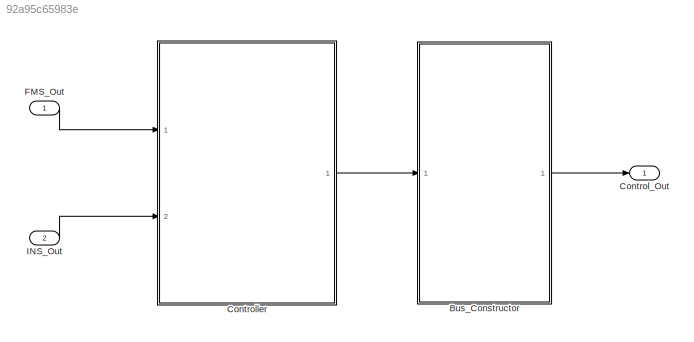
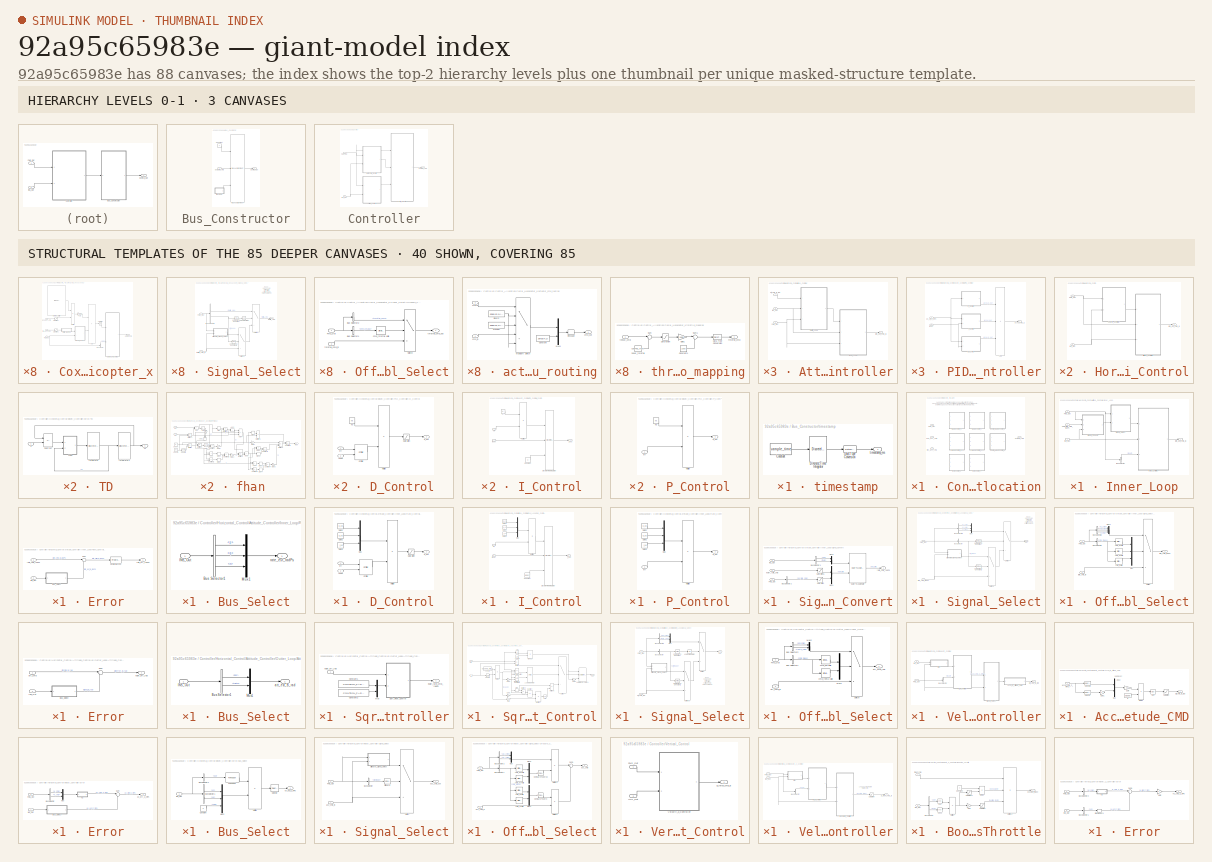
[diagram: thumbnail index - top-2 hierarchy levels (3 canvases) + 40 structural-template representatives of the remaining 85 canvases]
MODEL slx_92a95c65983e
KIND model
CONFIG AbsTol = auto
CONFIG EnableMultiTasking = off
CONFIG FixedStep = control_dt
CONFIG MaxStep = auto
CONFIG MinStep = auto
CONFIG RelTol = 1e-3
CONFIG SampleTimeConstraint = Unconstrained
CONFIG SolverName = FixedStepDiscrete
CONFIG StartTime = 0.0
CONFIG StopTime = 10.0
BLOCK [SubSystem] Bus_Constructor
  Ports = [1, 1]
  RequestExecContextInheritance = off
BLOCK [BusAssignment] Bus_Constructor/Bus Assignment
  AssignedSignals = actuator_cmd,timestamp
  Ports = [3, 1]
BLOCK [Constant] Bus_Constructor/Constant
  OutDataTypeStr = Bus: Control_Out_Bus
  Value = 0
BLOCK [Outport] Bus_Constructor/Control_Out
  VectorParamsAs1DForOutWhenUnconnected = off
BLOCK [Inport] Bus_Constructor/actuator_cmd
BLOCK [SubSystem] Bus_Constructor/timestamp
  Ports = [0, 1]
  RequestExecContextInheritance = off
BLOCK [Constant] Bus_Constructor/timestamp/Constant
  Value = sample_time
BLOCK [DataTypeConversion] Bus_Constructor/timestamp/Data Type Conversion
  OutDataTypeStr = uint32
  RndMeth = Floor
  SaturateOnIntegerOverflow = off
BLOCK [DiscreteIntegrator] Bus_Constructor/timestamp/Discrete-Time Integrator
  ICPrevOutput = DiscIntNeverNeededParam
  ICPrevScaledInput = DiscIntNeverNeededParam
  InitialConditionSetting = Auto
  IntegratorMethod = Accumulation: Forward Euler
  Ports = [1, 1]
  SampleTime = -1
BLOCK [Outport] Bus_Constructor/timestamp/timestamp_ms
  VectorParamsAs1DForOutWhenUnconnected = off
BLOCK [Outport] Control_Out
  OutDataTypeStr = Bus: Control_Out_Bus
  VectorParamsAs1DForOutWhenUnconnected = off
BLOCK [SubSystem] Controller
  Ports = [2, 1]
  RequestExecContextInheritance = off
BLOCK [SubSystem] Controller/Control_Allocation
  Ports = [3, 1]
  RequestExecContextInheritance = off
  Variant = on
  VariantActivationTime = code compile
BLOCK [SubSystem] Controller/Control_Allocation/Coxial_Hexacopter_x
  Ports = [3, 1]
  RequestExecContextInheritance = off
  TreatAsAtomicUnit = on
  VariantControl = AIRFRAME==6
BLOCK [Sum] Controller/Control_Allocation/Coxial_Hexacopter_x/Add
  IconShape = rectangular
  OutDataTypeStr = uint16
  Ports = [2, 1]
BLOCK [BusSelector] Controller/Control_Allocation/Coxial_Hexacopter_x/Bus Selector
  OutputSignals = status
  Ports = [1, 1]
BLOCK [Constant] Controller/Control_Allocation/Coxial_Hexacopter_x/Effective_Matrix
  OutDataTypeStr = single
  Value = [-1/2 0 -1/3;1/2 0 1/3;1/2 1/sqrt(3) -1/3;-1/2 -1/sqrt(3) 1/3;-1/2 1/sqrt(3) 1/3;1/2 -1/sqrt(3) -1/3;-1/2 0 1/3;1/2 0 -1/3;1/2 1/sqrt(3) 1/3;-1/2 -1/sqrt(3) -1/3;-1/2 1/sqrt(3) -1/3;1/2 -1/sqrt(3) 1/3]
BLOCK [Inport] Controller/Control_Allocation/Coxial_Hexacopter_x/FMS_Out
BLOCK [Gain] Controller/Control_Allocation/Coxial_Hexacopter_x/Gain
  Gain = 1000
  OutDataTypeStr = Inherit: Same as input
BLOCK [Product] Controller/Control_Allocation/Coxial_Hexacopter_x/Multiply
  Multiplication = Matrix(*)
  OutDataTypeStr = Inherit: Same as first input
  Ports = [2, 1]
BLOCK [Saturate] Controller/Control_Allocation/Coxial_Hexacopter_x/Saturation
  LowerLimit = 1100
  UpperLimit = 1900
BLOCK [Saturate] Controller/Control_Allocation/Coxial_Hexacopter_x/Saturation1
  LowerLimit = -1
  UpperLimit = 1
BLOCK [Saturate] Controller/Control_Allocation/Coxial_Hexacopter_x/Saturation2
  LowerLimit = -1
  UpperLimit = 1
BLOCK [SubSystem] Controller/Control_Allocation/Coxial_Hexacopter_x/Signal_Select
  Ports = [2, 1]
  RequestExecContextInheritance = off
BLOCK [BusSelector] Controller/Control_Allocation/Coxial_Hexacopter_x/Signal_Select/Bus Selector1
  OutputSignals = throttle_cmd,ctrl_mode
  Ports = [1, 2]
BLOCK [Reference] Controller/Control_Allocation/Coxial_Hexacopter_x/Signal_Select/Compare To Constant  REF=simulink/Logic and Bit
Operations/Compare
To Constant
  Ports = [1, 1]
  SourceBlock = simulink/Logic and Bit\nOperations/Compare\nTo Constant
  SourceProductBaseCode = SL
  SourceType = Compare To Constant
BLOCK [Reference] Controller/Control_Allocation/Coxial_Hexacopter_x/Signal_Select/Compare To Constant1  REF=simulink/Logic and Bit
Operations/Compare
To Constant
  Ports = [1, 1]
  SourceBlock = simulink/Logic and Bit\nOperations/Compare\nTo Constant
  SourceProductBaseCode = SL
  SourceType = Compare To Constant
BLOCK [Inport] Controller/Control_Allocation/Coxial_Hexacopter_x/Signal_Select/FMS_Out
  Port = 2
BLOCK [Logic] Controller/Control_Allocation/Coxial_Hexacopter_x/Signal_Select/Logical Operator
  AllPortsSameDT = off
  Inputs = 1
  Operator = OR
  OutDataTypeStr = boolean
  Ports = [1, 1]
BLOCK [SubSystem] Controller/Control_Allocation/Coxial_Hexacopter_x/Signal_Select/Offboard_Signal_Select
  Ports = [2, 1]
  RequestExecContextInheritance = off
BLOCK [BusSelector] Controller/Control_Allocation/Coxial_Hexacopter_x/Signal_Select/Offboard_Signal_Select/Bus Selector1
  OutputSignals = cmd_mask
  Ports = [1, 1]
BLOCK [BusSelector] Controller/Control_Allocation/Coxial_Hexacopter_x/Signal_Select/Offboard_Signal_Select/Bus Selector2
  OutputSignals = throttle_cmd
  Ports = [1, 1]
BLOCK [Inport] Controller/Control_Allocation/Coxial_Hexacopter_x/Signal_Select/Offboard_Signal_Select/FMS_Out
BLOCK [Switch] Controller/Control_Allocation/Coxial_Hexacopter_x/Signal_Select/Offboard_Signal_Select/Switch
  Criteria = u2 > Threshold
  InputSameDT = off
  SaturateOnIntegerOverflow = off
BLOCK [Reference] Controller/Control_Allocation/Coxial_Hexacopter_x/Signal_Select/Offboard_Signal_Select/cmd_throttle valid  REF=simulink/Logic and Bit
Operations/Bitwise
Operator
  Ports = [1, 1]
  SourceBlock = simulink/Logic and Bit\nOperations/Bitwise\nOperator
  SourceProductBaseCode = SL
  SourceType = Bitwise Operator
BLOCK [Inport] Controller/Control_Allocation/Coxial_Hexacopter_x/Signal_Select/Offboard_Signal_Select/throttle_cmd_in
  Port = 2
BLOCK [Outport] Controller/Control_Allocation/Coxial_Hexacopter_x/Signal_Select/Offboard_Signal_Select/throttle_cmd_out
  VectorParamsAs1DForOutWhenUnconnected = off
BLOCK [Switch] Controller/Control_Allocation/Coxial_Hexacopter_x/Signal_Select/Switch
  Criteria = u2 > Threshold
  InputSameDT = off
  SaturateOnIntegerOverflow = off
BLOCK [Switch] Controller/Control_Allocation/Coxial_Hexacopter_x/Signal_Select/Switch1
  Criteria = u2 > Threshold
  InputSameDT = off
  SaturateOnIntegerOverflow = off
BLOCK [Outport] Controller/Control_Allocation/Coxial_Hexacopter_x/Signal_Select/throttle_cmd
  VectorParamsAs1DForOutWhenUnconnected = off
BLOCK [Inport] Controller/Control_Allocation/Coxial_Hexacopter_x/Signal_Select/throttle_cmd_in
BLOCK [Outport] Controller/Control_Allocation/Coxial_Hexacopter_x/actuator_cmd
  VectorParamsAs1DForOutWhenUnconnected = off
BLOCK [SubSystem] Controller/Control_Allocation/Coxial_Hexacopter_x/actuator_cmd_routing
  Ports = [2, 1]
  RequestExecContextInheritance = off
BLOCK [Constant] Controller/Control_Allocation/Coxial_Hexacopter_x/actuator_cmd_routing/Constant
  OutDataTypeStr = uint16
  Value = zeros(4,1)
  VectorParams1D = off
BLOCK [Constant] Controller/Control_Allocation/Coxial_Hexacopter_x/actuator_cmd_routing/Disarm
  OutDataTypeStr = uint16
  Value = ones(12,1)*1000
  VectorParams1D = off
BLOCK [MultiPortSwitch] Controller/Control_Allocation/Coxial_Hexacopter_x/actuator_cmd_routing/Multiport Switch
  DataPortForDefault = Additional data port
  DiagnosticForDefault = None
  InputSameDT = off
  Ports = [5, 1]
  SaturateOnIntegerOverflow = off
BLOCK [Mux] Controller/Control_Allocation/Coxial_Hexacopter_x/actuator_cmd_routing/Mux1
  DisplayOption = bar
  Inputs = 2
  Ports = [2, 1]
BLOCK [Reshape] Controller/Control_Allocation/Coxial_Hexacopter_x/actuator_cmd_routing/Reshape
  OutputDimensionality = Customize
  OutputDimensions = [16,1]
  Ports = [1, 1]
BLOCK [Constant] Controller/Control_Allocation/Coxial_Hexacopter_x/actuator_cmd_routing/Standby
  OutDataTypeStr = uint16
  Value = ones(12,1)*1150
  VectorParams1D = off
BLOCK [Inport] Controller/Control_Allocation/Coxial_Hexacopter_x/actuator_cmd_routing/cmd_in
BLOCK [Outport] Controller/Control_Allocation/Coxial_Hexacopter_x/actuator_cmd_routing/cmd_out
  VectorParamsAs1DForOutWhenUnconnected = off
BLOCK [Inport] Controller/Control_Allocation/Coxial_Hexacopter_x/actuator_cmd_routing/status
  Port = 2
BLOCK [Inport] Controller/Control_Allocation/Coxial_Hexacopter_x/ang_acc_cmd
  Port = 2
BLOCK [Inport] Controller/Control_Allocation/Coxial_Hexacopter_x/line_acc_cmd
  Port = 3
BLOCK [SubSystem] Controller/Control_Allocation/Coxial_Hexacopter_x/throttle_mapping
  Ports = [1, 1]
  RequestExecContextInheritance = off
BLOCK [Constant] Controller/Control_Allocation/Coxial_Hexacopter_x/throttle_mapping/Constant1
  OutDataTypeStr = uint32
  Value = 1000
BLOCK [DataTypeConversion] Controller/Control_Allocation/Coxial_Hexacopter_x/throttle_mapping/Data Type Conversion
  OutDataTypeStr = uint16
  RndMeth = Floor
  SaturateOnIntegerOverflow = off
BLOCK [Gain] Controller/Control_Allocation/Coxial_Hexacopter_x/throttle_mapping/Gain1
  Gain = 1000
  OutDataTypeStr = uint32
BLOCK [Saturate] Controller/Control_Allocation/Coxial_Hexacopter_x/throttle_mapping/Saturation
  LowerLimit = 0
  UpperLimit = 1
BLOCK [Sum] Controller/Control_Allocation/Coxial_Hexacopter_x/throttle_mapping/Sum
  Inputs = |++
  Ports = [2, 1]
BLOCK [Sum] Controller/Control_Allocation/Coxial_Hexacopter_x/throttle_mapping/Sum1
  Inputs = |++
  Ports = [2, 1]
BLOCK [Constant] Controller/Control_Allocation/Coxial_Hexacopter_x/throttle_mapping/hover_throttle
  OutDataTypeStr = Inherit: Inherit via back propagation
  Value = CONTROL_PARAM.HOVER_THRO
BLOCK [Inport] Controller/Control_Allocation/Coxial_Hexacopter_x/throttle_mapping/theust_cmd
BLOCK [Outport] Controller/Control_Allocation/Coxial_Hexacopter_x/throttle_mapping/throttle_cmd
  VectorParamsAs1DForOutWhenUnconnected = off
BLOCK [SubSystem] Controller/Control_Allocation/Coxial_Quadcopter_x
  Ports = [3, 1]
  RequestExecContextInheritance = off
  TreatAsAtomicUnit = on
  VariantControl = AIRFRAME==3
BLOCK [Sum] Controller/Control_Allocation/Coxial_Quadcopter_x/Add
  IconShape = rectangular
  OutDataTypeStr = uint16
  Ports = [2, 1]
BLOCK [BusSelector] Controller/Control_Allocation/Coxial_Quadcopter_x/Bus Selector
  OutputSignals = status
  Ports = [1, 1]
BLOCK [Constant] Controller/Control_Allocation/Coxial_Quadcopter_x/Effective_Matrix
  OutDataTypeStr = single
  Value = [-sqrt(2)/2 sqrt(2)/2 1/2;sqrt(2)/2 sqrt(2)/2 -1/2;sqrt(2)/2 -sqrt(2)/2 1/2;-sqrt(2)/2 -sqrt(2)/2 -1/2;sqrt(2)/2 sqrt(2)/2 1/2;-sqrt(2)/2 sqrt(2)/2 -1/2;-sqrt(2)/2 -sqrt(2)/2 1/2;sqrt(2)/2 -sqrt(2)/2 -1/2]
BLOCK [Inport] Controller/Control_Allocation/Coxial_Quadcopter_x/FMS_Out
BLOCK [Gain] Controller/Control_Allocation/Coxial_Quadcopter_x/Gain
  Gain = 1000
  OutDataTypeStr = Inherit: Same as input
BLOCK [Product] Controller/Control_Allocation/Coxial_Quadcopter_x/Multiply
  Multiplication = Matrix(*)
  OutDataTypeStr = Inherit: Same as first input
  Ports = [2, 1]
BLOCK [Saturate] Controller/Control_Allocation/Coxial_Quadcopter_x/Saturation
  LowerLimit = 1100
  UpperLimit = 1900
BLOCK [Saturate] Controller/Control_Allocation/Coxial_Quadcopter_x/Saturation1
  LowerLimit = -1
  UpperLimit = 1
BLOCK [Saturate] Controller/Control_Allocation/Coxial_Quadcopter_x/Saturation2
  LowerLimit = -1
  UpperLimit = 1
BLOCK [SubSystem] Controller/Control_Allocation/Coxial_Quadcopter_x/Signal_Select
  Ports = [2, 1]
  RequestExecContextInheritance = off
BLOCK [BusSelector] Controller/Control_Allocation/Coxial_Quadcopter_x/Signal_Select/Bus Selector1
  OutputSignals = throttle_cmd,ctrl_mode
  Ports = [1, 2]
BLOCK [Reference] Controller/Control_Allocation/Coxial_Quadcopter_x/Signal_Select/Compare To Constant  REF=simulink/Logic and Bit
Operations/Compare
To Constant
  Ports = [1, 1]
  SourceBlock = simulink/Logic and Bit\nOperations/Compare\nTo Constant
  SourceProductBaseCode = SL
  SourceType = Compare To Constant
BLOCK [Reference] Controller/Control_Allocation/Coxial_Quadcopter_x/Signal_Select/Compare To Constant1  REF=simulink/Logic and Bit
Operations/Compare
To Constant
  Ports = [1, 1]
  SourceBlock = simulink/Logic and Bit\nOperations/Compare\nTo Constant
  SourceProductBaseCode = SL
  SourceType = Compare To Constant
BLOCK [Inport] Controller/Control_Allocation/Coxial_Quadcopter_x/Signal_Select/FMS_Out
  Port = 2
BLOCK [Logic] Controller/Control_Allocation/Coxial_Quadcopter_x/Signal_Select/Logical Operator
  AllPortsSameDT = off
  Inputs = 1
  Operator = OR
  OutDataTypeStr = boolean
  Ports = [1, 1]
BLOCK [SubSystem] Controller/Control_Allocation/Coxial_Quadcopter_x/Signal_Select/Offboard_Signal_Select
  Ports = [2, 1]
  RequestExecContextInheritance = off
BLOCK [BusSelector] Controller/Control_Allocation/Coxial_Quadcopter_x/Signal_Select/Offboard_Signal_Select/Bus Selector1
  OutputSignals = cmd_mask
  Ports = [1, 1]
BLOCK [BusSelector] Controller/Control_Allocation/Coxial_Quadcopter_x/Signal_Select/Offboard_Signal_Select/Bus Selector2
  OutputSignals = throttle_cmd
  Ports = [1, 1]
BLOCK [Inport] Controller/Control_Allocation/Coxial_Quadcopter_x/Signal_Select/Offboard_Signal_Select/FMS_Out
BLOCK [Switch] Controller/Control_Allocation/Coxial_Quadcopter_x/Signal_Select/Offboard_Signal_Select/Switch
  Criteria = u2 > Threshold
  InputSameDT = off
  SaturateOnIntegerOverflow = off
BLOCK [Reference] Controller/Control_Allocation/Coxial_Quadcopter_x/Signal_Select/Offboard_Signal_Select/cmd_throttle valid  REF=simulink/Logic and Bit
Operations/Bitwise
Operator
  Ports = [1, 1]
  SourceBlock = simulink/Logic and Bit\nOperations/Bitwise\nOperator
  SourceProductBaseCode = SL
  SourceType = Bitwise Operator
BLOCK [Inport] Controller/Control_Allocation/Coxial_Quadcopter_x/Signal_Select/Offboard_Signal_Select/throttle_cmd_in
  Port = 2
BLOCK [Outport] Controller/Control_Allocation/Coxial_Quadcopter_x/Signal_Select/Offboard_Signal_Select/throttle_cmd_out
  VectorParamsAs1DForOutWhenUnconnected = off
BLOCK [Switch] Controller/Control_Allocation/Coxial_Quadcopter_x/Signal_Select/Switch
  Criteria = u2 > Threshold
  InputSameDT = off
  SaturateOnIntegerOverflow = off
BLOCK [Switch] Controller/Control_Allocation/Coxial_Quadcopter_x/Signal_Select/Switch1
  Criteria = u2 > Threshold
  InputSameDT = off
  SaturateOnIntegerOverflow = off
BLOCK [Outport] Controller/Control_Allocation/Coxial_Quadcopter_x/Signal_Select/throttle_cmd
  VectorParamsAs1DForOutWhenUnconnected = off
BLOCK [Inport] Controller/Control_Allocation/Coxial_Quadcopter_x/Signal_Select/throttle_cmd_in
BLOCK [Outport] Controller/Control_Allocation/Coxial_Quadcopter_x/actuator_cmd
  VectorParamsAs1DForOutWhenUnconnected = off
BLOCK [SubSystem] Controller/Control_Allocation/Coxial_Quadcopter_x/actuator_cmd_routing
  Ports = [2, 1]
  RequestExecContextInheritance = off
BLOCK [Constant] Controller/Control_Allocation/Coxial_Quadcopter_x/actuator_cmd_routing/Constant
  OutDataTypeStr = uint16
  Value = zeros(8,1)
  VectorParams1D = off
BLOCK [Constant] Controller/Control_Allocation/Coxial_Quadcopter_x/actuator_cmd_routing/Disarm
  OutDataTypeStr = uint16
  Value = ones(8,1)*1000
  VectorParams1D = off
BLOCK [MultiPortSwitch] Controller/Control_Allocation/Coxial_Quadcopter_x/actuator_cmd_routing/Multiport Switch
  DataPortForDefault = Additional data port
  DiagnosticForDefault = None
  InputSameDT = off
  Ports = [5, 1]
  SaturateOnIntegerOverflow = off
BLOCK [Mux] Controller/Control_Allocation/Coxial_Quadcopter_x/actuator_cmd_routing/Mux1
  DisplayOption = bar
  Inputs = 2
  Ports = [2, 1]
BLOCK [Reshape] Controller/Control_Allocation/Coxial_Quadcopter_x/actuator_cmd_routing/Reshape
  OutputDimensionality = Customize
  OutputDimensions = [16,1]
  Ports = [1, 1]
BLOCK [Constant] Controller/Control_Allocation/Coxial_Quadcopter_x/actuator_cmd_routing/Standby
  OutDataTypeStr = uint16
  Value = ones(8,1)*1150
  VectorParams1D = off
BLOCK [Inport] Controller/Control_Allocation/Coxial_Quadcopter_x/actuator_cmd_routing/cmd_in
BLOCK [Outport] Controller/Control_Allocation/Coxial_Quadcopter_x/actuator_cmd_routing/cmd_out
  VectorParamsAs1DForOutWhenUnconnected = off
BLOCK [Inport] Controller/Control_Allocation/Coxial_Quadcopter_x/actuator_cmd_routing/status
  Port = 2
BLOCK [Inport] Controller/Control_Allocation/Coxial_Quadcopter_x/ang_acc_cmd
  Port = 2
BLOCK [Inport] Controller/Control_Allocation/Coxial_Quadcopter_x/line_acc_cmd
  Port = 3
BLOCK [SubSystem] Controller/Control_Allocation/Coxial_Quadcopter_x/throttle_mapping
  Ports = [1, 1]
  RequestExecContextInheritance = off
BLOCK [Constant] Controller/Control_Allocation/Coxial_Quadcopter_x/throttle_mapping/Constant1
  OutDataTypeStr = uint32
  Value = 1000
BLOCK [DataTypeConversion] Controller/Control_Allocation/Coxial_Quadcopter_x/throttle_mapping/Data Type Conversion
  OutDataTypeStr = uint16
  RndMeth = Floor
  SaturateOnIntegerOverflow = off
BLOCK [Gain] Controller/Control_Allocation/Coxial_Quadcopter_x/throttle_mapping/Gain1
  Gain = 1000
  OutDataTypeStr = uint32
BLOCK [Saturate] Controller/Control_Allocation/Coxial_Quadcopter_x/throttle_mapping/Saturation
  LowerLimit = 0
  UpperLimit = 1
BLOCK [Sum] Controller/Control_Allocation/Coxial_Quadcopter_x/throttle_mapping/Sum
  Inputs = |++
  Ports = [2, 1]
BLOCK [Sum] Controller/Control_Allocation/Coxial_Quadcopter_x/throttle_mapping/Sum1
  Inputs = |++
  Ports = [2, 1]
BLOCK [Constant] Controller/Control_Allocation/Coxial_Quadcopter_x/throttle_mapping/hover_throttle
  OutDataTypeStr = Inherit: Inherit via back propagation
  Value = CONTROL_PARAM.HOVER_THRO
BLOCK [Inport] Controller/Control_Allocation/Coxial_Quadcopter_x/throttle_mapping/theust_cmd
BLOCK [Outport] Controller/Control_Allocation/Coxial_Quadcopter_x/throttle_mapping/throttle_cmd
  VectorParamsAs1DForOutWhenUnconnected = off
BLOCK [Inport] Controller/Control_Allocation/FMS_Out
BLOCK [SubSystem] Controller/Control_Allocation/Hexacopter_+
  Ports = [3, 1]
  RequestExecContextInheritance = off
  TreatAsAtomicUnit = on
  VariantControl = AIRFRAME==5
BLOCK [Sum] Controller/Control_Allocation/Hexacopter_+/Add
  IconShape = rectangular
  OutDataTypeStr = uint16
  Ports = [2, 1]
BLOCK [BusSelector] Controller/Control_Allocation/Hexacopter_+/Bus Selector
  OutputSignals = status
  Ports = [1, 1]
BLOCK [Constant] Controller/Control_Allocation/Hexacopter_+/Effective_Matrix
  OutDataTypeStr = single
  Value = [0 1 -2/3;0 -1 2/3;2/sqrt(3) -1 -2/3;-2/sqrt(3) 1 2/3;2/sqrt(3) 1 2/3;-2/sqrt(3) -1 -2/3]
BLOCK [Inport] Controller/Control_Allocation/Hexacopter_+/FMS_Out
BLOCK [Gain] Controller/Control_Allocation/Hexacopter_+/Gain
  Gain = 1000
  OutDataTypeStr = Inherit: Same as input
BLOCK [Product] Controller/Control_Allocation/Hexacopter_+/Multiply
  Multiplication = Matrix(*)
  OutDataTypeStr = Inherit: Same as first input
  Ports = [2, 1]
BLOCK [Saturate] Controller/Control_Allocation/Hexacopter_+/Saturation
  LowerLimit = 1100
  UpperLimit = 1900
BLOCK [Saturate] Controller/Control_Allocation/Hexacopter_+/Saturation1
  LowerLimit = -1
  UpperLimit = 1
BLOCK [Saturate] Controller/Control_Allocation/Hexacopter_+/Saturation2
  LowerLimit = -1
  UpperLimit = 1
BLOCK [SubSystem] Controller/Control_Allocation/Hexacopter_+/Signal_Select
  Ports = [2, 1]
  RequestExecContextInheritance = off
BLOCK [BusSelector] Controller/Control_Allocation/Hexacopter_+/Signal_Select/Bus Selector1
  OutputSignals = throttle_cmd,ctrl_mode
  Ports = [1, 2]
BLOCK [Reference] Controller/Control_Allocation/Hexacopter_+/Signal_Select/Compare To Constant  REF=simulink/Logic and Bit
Operations/Compare
To Constant
  Ports = [1, 1]
  SourceBlock = simulink/Logic and Bit\nOperations/Compare\nTo Constant
  SourceProductBaseCode = SL
  SourceType = Compare To Constant
BLOCK [Reference] Controller/Control_Allocation/Hexacopter_+/Signal_Select/Compare To Constant1  REF=simulink/Logic and Bit
Operations/Compare
To Constant
  Ports = [1, 1]
  SourceBlock = simulink/Logic and Bit\nOperations/Compare\nTo Constant
  SourceProductBaseCode = SL
  SourceType = Compare To Constant
BLOCK [Inport] Controller/Control_Allocation/Hexacopter_+/Signal_Select/FMS_Out
  Port = 2
BLOCK [Logic] Controller/Control_Allocation/Hexacopter_+/Signal_Select/Logical Operator
  AllPortsSameDT = off
  Inputs = 1
  Operator = OR
  OutDataTypeStr = boolean
  Ports = [1, 1]
BLOCK [SubSystem] Controller/Control_Allocation/Hexacopter_+/Signal_Select/Offboard_Signal_Select
  Ports = [2, 1]
  RequestExecContextInheritance = off
BLOCK [BusSelector] Controller/Control_Allocation/Hexacopter_+/Signal_Select/Offboard_Signal_Select/Bus Selector1
  OutputSignals = cmd_mask
  Ports = [1, 1]
BLOCK [BusSelector] Controller/Control_Allocation/Hexacopter_+/Signal_Select/Offboard_Signal_Select/Bus Selector2
  OutputSignals = throttle_cmd
  Ports = [1, 1]
BLOCK [Inport] Controller/Control_Allocation/Hexacopter_+/Signal_Select/Offboard_Signal_Select/FMS_Out
BLOCK [Switch] Controller/Control_Allocation/Hexacopter_+/Signal_Select/Offboard_Signal_Select/Switch
  Criteria = u2 > Threshold
  InputSameDT = off
  SaturateOnIntegerOverflow = off
BLOCK [Reference] Controller/Control_Allocation/Hexacopter_+/Signal_Select/Offboard_Signal_Select/cmd_throttle valid  REF=simulink/Logic and Bit
Operations/Bitwise
Operator
  Ports = [1, 1]
  SourceBlock = simulink/Logic and Bit\nOperations/Bitwise\nOperator
  SourceProductBaseCode = SL
  SourceType = Bitwise Operator
BLOCK [Inport] Controller/Control_Allocation/Hexacopter_+/Signal_Select/Offboard_Signal_Select/throttle_cmd_in
  Port = 2
BLOCK [Outport] Controller/Control_Allocation/Hexacopter_+/Signal_Select/Offboard_Signal_Select/throttle_cmd_out
  VectorParamsAs1DForOutWhenUnconnected = off
BLOCK [Switch] Controller/Control_Allocation/Hexacopter_+/Signal_Select/Switch
  Criteria = u2 > Threshold
  InputSameDT = off
  SaturateOnIntegerOverflow = off
BLOCK [Switch] Controller/Control_Allocation/Hexacopter_+/Signal_Select/Switch1
  Criteria = u2 > Threshold
  InputSameDT = off
  SaturateOnIntegerOverflow = off
BLOCK [Outport] Controller/Control_Allocation/Hexacopter_+/Signal_Select/throttle_cmd
  VectorParamsAs1DForOutWhenUnconnected = off
BLOCK [Inport] Controller/Control_Allocation/Hexacopter_+/Signal_Select/throttle_cmd_in
BLOCK [Outport] Controller/Control_Allocation/Hexacopter_+/actuator_cmd
  VectorParamsAs1DForOutWhenUnconnected = off
BLOCK [SubSystem] Controller/Control_Allocation/Hexacopter_+/actuator_cmd_routing
  Ports = [2, 1]
  RequestExecContextInheritance = off
BLOCK [Constant] Controller/Control_Allocation/Hexacopter_+/actuator_cmd_routing/Constant
  OutDataTypeStr = uint16
  Value = zeros(10,1)
  VectorParams1D = off
BLOCK [Constant] Controller/Control_Allocation/Hexacopter_+/actuator_cmd_routing/Disarm
  OutDataTypeStr = uint16
  Value = ones(6,1)*1000
  VectorParams1D = off
BLOCK [MultiPortSwitch] Controller/Control_Allocation/Hexacopter_+/actuator_cmd_routing/Multiport Switch
  DataPortForDefault = Additional data port
  DiagnosticForDefault = None
  InputSameDT = off
  Ports = [5, 1]
  SaturateOnIntegerOverflow = off
BLOCK [Mux] Controller/Control_Allocation/Hexacopter_+/actuator_cmd_routing/Mux1
  DisplayOption = bar
  Inputs = 2
  Ports = [2, 1]
BLOCK [Reshape] Controller/Control_Allocation/Hexacopter_+/actuator_cmd_routing/Reshape
  OutputDimensionality = Customize
  OutputDimensions = [16,1]
  Ports = [1, 1]
BLOCK [Constant] Controller/Control_Allocation/Hexacopter_+/actuator_cmd_routing/Standby
  OutDataTypeStr = uint16
  Value = ones(6,1)*1150
  VectorParams1D = off
BLOCK [Inport] Controller/Control_Allocation/Hexacopter_+/actuator_cmd_routing/cmd_in
BLOCK [Outport] Controller/Control_Allocation/Hexacopter_+/actuator_cmd_routing/cmd_out
  VectorParamsAs1DForOutWhenUnconnected = off
BLOCK [Inport] Controller/Control_Allocation/Hexacopter_+/actuator_cmd_routing/status
  Port = 2
BLOCK [Inport] Controller/Control_Allocation/Hexacopter_+/ang_acc_cmd
  Port = 2
BLOCK [Inport] Controller/Control_Allocation/Hexacopter_+/line_acc_cmd
  Port = 3
BLOCK [SubSystem] Controller/Control_Allocation/Hexacopter_+/throttle_mapping
  Ports = [1, 1]
  RequestExecContextInheritance = off
BLOCK [Constant] Controller/Control_Allocation/Hexacopter_+/throttle_mapping/Constant1
  OutDataTypeStr = uint32
  Value = 1000
BLOCK [DataTypeConversion] Controller/Control_Allocation/Hexacopter_+/throttle_mapping/Data Type Conversion
  OutDataTypeStr = uint16
  RndMeth = Floor
  SaturateOnIntegerOverflow = off
BLOCK [Gain] Controller/Control_Allocation/Hexacopter_+/throttle_mapping/Gain1
  Gain = 1000
  OutDataTypeStr = uint32
BLOCK [Saturate] Controller/Control_Allocation/Hexacopter_+/throttle_mapping/Saturation
  LowerLimit = 0
  UpperLimit = 1
BLOCK [Sum] Controller/Control_Allocation/Hexacopter_+/throttle_mapping/Sum
  Inputs = |++
  Ports = [2, 1]
BLOCK [Sum] Controller/Control_Allocation/Hexacopter_+/throttle_mapping/Sum1
  Inputs = |++
  Ports = [2, 1]
BLOCK [Constant] Controller/Control_Allocation/Hexacopter_+/throttle_mapping/hover_throttle
  OutDataTypeStr = Inherit: Inherit via back propagation
  Value = CONTROL_PARAM.HOVER_THRO
BLOCK [Inport] Controller/Control_Allocation/Hexacopter_+/throttle_mapping/theust_cmd
BLOCK [Outport] Controller/Control_Allocation/Hexacopter_+/throttle_mapping/throttle_cmd
  VectorParamsAs1DForOutWhenUnconnected = off
BLOCK [SubSystem] Controller/Control_Allocation/Hexacopter_x
  Ports = [3, 1]
  RequestExecContextInheritance = off
  TreatAsAtomicUnit = on
  VariantControl = AIRFRAME==4
BLOCK [Sum] Controller/Control_Allocation/Hexacopter_x/Add
  IconShape = rectangular
  OutDataTypeStr = uint16
  Ports = [2, 1]
BLOCK [BusSelector] Controller/Control_Allocation/Hexacopter_x/Bus Selector
  OutputSignals = status
  Ports = [1, 1]
BLOCK [Constant] Controller/Control_Allocation/Hexacopter_x/Effective_Matrix
  OutDataTypeStr = single
  Value = [-1 0 -2/3;1 0 2/3;1 2/sqrt(3) -2/3;-1 -2/sqrt(3) 2/3;-1 2/sqrt(3) 2/3;1 -2/sqrt(3) -2/3]
BLOCK [Inport] Controller/Control_Allocation/Hexacopter_x/FMS_Out
BLOCK [Gain] Controller/Control_Allocation/Hexacopter_x/Gain
  Gain = 1000
  OutDataTypeStr = Inherit: Same as input
BLOCK [Product] Controller/Control_Allocation/Hexacopter_x/Multiply
  Multiplication = Matrix(*)
  OutDataTypeStr = Inherit: Same as first input
  Ports = [2, 1]
BLOCK [Saturate] Controller/Control_Allocation/Hexacopter_x/Saturation
  LowerLimit = 1100
  UpperLimit = 1900
BLOCK [Saturate] Controller/Control_Allocation/Hexacopter_x/Saturation1
  LowerLimit = -1
  UpperLimit = 1
BLOCK [Saturate] Controller/Control_Allocation/Hexacopter_x/Saturation2
  LowerLimit = -1
  UpperLimit = 1
BLOCK [SubSystem] Controller/Control_Allocation/Hexacopter_x/Signal_Select
  Ports = [2, 1]
  RequestExecContextInheritance = off
BLOCK [BusSelector] Controller/Control_Allocation/Hexacopter_x/Signal_Select/Bus Selector1
  OutputSignals = throttle_cmd,ctrl_mode
  Ports = [1, 2]
BLOCK [Reference] Controller/Control_Allocation/Hexacopter_x/Signal_Select/Compare To Constant  REF=simulink/Logic and Bit
Operations/Compare
To Constant
  Ports = [1, 1]
  SourceBlock = simulink/Logic and Bit\nOperations/Compare\nTo Constant
  SourceProductBaseCode = SL
  SourceType = Compare To Constant
BLOCK [Reference] Controller/Control_Allocation/Hexacopter_x/Signal_Select/Compare To Constant1  REF=simulink/Logic and Bit
Operations/Compare
To Constant
  Ports = [1, 1]
  SourceBlock = simulink/Logic and Bit\nOperations/Compare\nTo Constant
  SourceProductBaseCode = SL
  SourceType = Compare To Constant
BLOCK [Inport] Controller/Control_Allocation/Hexacopter_x/Signal_Select/FMS_Out
  Port = 2
BLOCK [Logic] Controller/Control_Allocation/Hexacopter_x/Signal_Select/Logical Operator
  AllPortsSameDT = off
  Inputs = 1
  Operator = OR
  OutDataTypeStr = boolean
  Ports = [1, 1]
BLOCK [SubSystem] Controller/Control_Allocation/Hexacopter_x/Signal_Select/Offboard_Signal_Select
  Ports = [2, 1]
  RequestExecContextInheritance = off
BLOCK [BusSelector] Controller/Control_Allocation/Hexacopter_x/Signal_Select/Offboard_Signal_Select/Bus Selector1
  OutputSignals = cmd_mask
  Ports = [1, 1]
BLOCK [BusSelector] Controller/Control_Allocation/Hexacopter_x/Signal_Select/Offboard_Signal_Select/Bus Selector2
  OutputSignals = throttle_cmd
  Ports = [1, 1]
BLOCK [Inport] Controller/Control_Allocation/Hexacopter_x/Signal_Select/Offboard_Signal_Select/FMS_Out
BLOCK [Switch] Controller/Control_Allocation/Hexacopter_x/Signal_Select/Offboard_Signal_Select/Switch
  Criteria = u2 > Threshold
  InputSameDT = off
  SaturateOnIntegerOverflow = off
BLOCK [Reference] Controller/Control_Allocation/Hexacopter_x/Signal_Select/Offboard_Signal_Select/cmd_throttle valid  REF=simulink/Logic and Bit
Operations/Bitwise
Operator
  Ports = [1, 1]
  SourceBlock = simulink/Logic and Bit\nOperations/Bitwise\nOperator
  SourceProductBaseCode = SL
  SourceType = Bitwise Operator
BLOCK [Inport] Controller/Control_Allocation/Hexacopter_x/Signal_Select/Offboard_Signal_Select/throttle_cmd_in
  Port = 2
BLOCK [Outport] Controller/Control_Allocation/Hexacopter_x/Signal_Select/Offboard_Signal_Select/throttle_cmd_out
  VectorParamsAs1DForOutWhenUnconnected = off
BLOCK [Switch] Controller/Control_Allocation/Hexacopter_x/Signal_Select/Switch
  Criteria = u2 > Threshold
  InputSameDT = off
  SaturateOnIntegerOverflow = off
BLOCK [Switch] Controller/Control_Allocation/Hexacopter_x/Signal_Select/Switch1
  Criteria = u2 > Threshold
  InputSameDT = off
  SaturateOnIntegerOverflow = off
BLOCK [Outport] Controller/Control_Allocation/Hexacopter_x/Signal_Select/throttle_cmd
  VectorParamsAs1DForOutWhenUnconnected = off
BLOCK [Inport] Controller/Control_Allocation/Hexacopter_x/Signal_Select/throttle_cmd_in
BLOCK [Outport] Controller/Control_Allocation/Hexacopter_x/actuator_cmd
  VectorParamsAs1DForOutWhenUnconnected = off
BLOCK [SubSystem] Controller/Control_Allocation/Hexacopter_x/actuator_cmd_routing
  Ports = [2, 1]
  RequestExecContextInheritance = off
BLOCK [Constant] Controller/Control_Allocation/Hexacopter_x/actuator_cmd_routing/Constant
  OutDataTypeStr = uint16
  Value = zeros(10,1)
  VectorParams1D = off
BLOCK [Constant] Controller/Control_Allocation/Hexacopter_x/actuator_cmd_routing/Disarm
  OutDataTypeStr = uint16
  Value = ones(6,1)*1000
  VectorParams1D = off
BLOCK [MultiPortSwitch] Controller/Control_Allocation/Hexacopter_x/actuator_cmd_routing/Multiport Switch
  DataPortForDefault = Additional data port
  DiagnosticForDefault = None
  InputSameDT = off
  Ports = [5, 1]
  SaturateOnIntegerOverflow = off
BLOCK [Mux] Controller/Control_Allocation/Hexacopter_x/actuator_cmd_routing/Mux1
  DisplayOption = bar
  Inputs = 2
  Ports = [2, 1]
BLOCK [Reshape] Controller/Control_Allocation/Hexacopter_x/actuator_cmd_routing/Reshape
  OutputDimensionality = Customize
  OutputDimensions = [16,1]
  Ports = [1, 1]
BLOCK [Constant] Controller/Control_Allocation/Hexacopter_x/actuator_cmd_routing/Standby
  OutDataTypeStr = uint16
  Value = ones(6,1)*1150
  VectorParams1D = off
BLOCK [Inport] Controller/Control_Allocation/Hexacopter_x/actuator_cmd_routing/cmd_in
BLOCK [Outport] Controller/Control_Allocation/Hexacopter_x/actuator_cmd_routing/cmd_out
  VectorParamsAs1DForOutWhenUnconnected = off
BLOCK [Inport] Controller/Control_Allocation/Hexacopter_x/actuator_cmd_routing/status
  Port = 2
BLOCK [Inport] Controller/Control_Allocation/Hexacopter_x/ang_acc_cmd
  Port = 2
BLOCK [Inport] Controller/Control_Allocation/Hexacopter_x/line_acc_cmd
  Port = 3
BLOCK [SubSystem] Controller/Control_Allocation/Hexacopter_x/throttle_mapping
  Ports = [1, 1]
  RequestExecContextInheritance = off
BLOCK [Constant] Controller/Control_Allocation/Hexacopter_x/throttle_mapping/Constant1
  OutDataTypeStr = uint32
  Value = 1000
BLOCK [DataTypeConversion] Controller/Control_Allocation/Hexacopter_x/throttle_mapping/Data Type Conversion
  OutDataTypeStr = uint16
  RndMeth = Floor
  SaturateOnIntegerOverflow = off
BLOCK [Gain] Controller/Control_Allocation/Hexacopter_x/throttle_mapping/Gain1
  Gain = 1000
  OutDataTypeStr = uint32
BLOCK [Saturate] Controller/Control_Allocation/Hexacopter_x/throttle_mapping/Saturation
  LowerLimit = 0
  UpperLimit = 1
BLOCK [Sum] Controller/Control_Allocation/Hexacopter_x/throttle_mapping/Sum
  Inputs = |++
  Ports = [2, 1]
BLOCK [Sum] Controller/Control_Allocation/Hexacopter_x/throttle_mapping/Sum1
  Inputs = |++
  Ports = [2, 1]
BLOCK [Constant] Controller/Control_Allocation/Hexacopter_x/throttle_mapping/hover_throttle
  OutDataTypeStr = Inherit: Inherit via back propagation
  Value = CONTROL_PARAM.HOVER_THRO
BLOCK [Inport] Controller/Control_Allocation/Hexacopter_x/throttle_mapping/theust_cmd
BLOCK [Outport] Controller/Control_Allocation/Hexacopter_x/throttle_mapping/throttle_cmd
  VectorParamsAs1DForOutWhenUnconnected = off
BLOCK [SubSystem] Controller/Control_Allocation/Octocopter_+
  Ports = [3, 1]
  RequestExecContextInheritance = off
  TreatAsAtomicUnit = on
  VariantControl = AIRFRAME==8
BLOCK [Sum] Controller/Control_Allocation/Octocopter_+/Add
  IconShape = rectangular
  OutDataTypeStr = uint16
  Ports = [2, 1]
BLOCK [BusSelector] Controller/Control_Allocation/Octocopter_+/Bus Selector
  OutputSignals = status
  Ports = [1, 1]
BLOCK [Constant] Controller/Control_Allocation/Octocopter_+/Effective_Matrix
  OutDataTypeStr = single
  Value = [0 1 -0.5;0 -1 -0.5;-1/sqrt(2) 1/sqrt(2) 0.5;-1/sqrt(2) -1/sqrt(2) 0.5;1/sqrt(2) 1/sqrt(2) 0.5;1/sqrt(2) -1/sqrt(2) 0.5;1 0 -0.5;-1 0 -0.5]
BLOCK [Inport] Controller/Control_Allocation/Octocopter_+/FMS_Out
BLOCK [Gain] Controller/Control_Allocation/Octocopter_+/Gain
  Gain = 1000
  OutDataTypeStr = Inherit: Same as input
BLOCK [Product] Controller/Control_Allocation/Octocopter_+/Multiply
  Multiplication = Matrix(*)
  OutDataTypeStr = Inherit: Same as first input
  Ports = [2, 1]
BLOCK [Saturate] Controller/Control_Allocation/Octocopter_+/Saturation
  LowerLimit = 1100
  UpperLimit = 1900
BLOCK [Saturate] Controller/Control_Allocation/Octocopter_+/Saturation1
  LowerLimit = -1
  UpperLimit = 1
BLOCK [Saturate] Controller/Control_Allocation/Octocopter_+/Saturation2
  LowerLimit = -1
  UpperLimit = 1
BLOCK [SubSystem] Controller/Control_Allocation/Octocopter_+/Signal_Select
  Ports = [2, 1]
  RequestExecContextInheritance = off
BLOCK [BusSelector] Controller/Control_Allocation/Octocopter_+/Signal_Select/Bus Selector1
  OutputSignals = throttle_cmd,ctrl_mode
  Ports = [1, 2]
BLOCK [Reference] Controller/Control_Allocation/Octocopter_+/Signal_Select/Compare To Constant  REF=simulink/Logic and Bit
Operations/Compare
To Constant
  Ports = [1, 1]
  SourceBlock = simulink/Logic and Bit\nOperations/Compare\nTo Constant
  SourceProductBaseCode = SL
  SourceType = Compare To Constant
BLOCK [Reference] Controller/Control_Allocation/Octocopter_+/Signal_Select/Compare To Constant1  REF=simulink/Logic and Bit
Operations/Compare
To Constant
  Ports = [1, 1]
  SourceBlock = simulink/Logic and Bit\nOperations/Compare\nTo Constant
  SourceProductBaseCode = SL
  SourceType = Compare To Constant
BLOCK [Inport] Controller/Control_Allocation/Octocopter_+/Signal_Select/FMS_Out
  Port = 2
BLOCK [Logic] Controller/Control_Allocation/Octocopter_+/Signal_Select/Logical Operator
  AllPortsSameDT = off
  Inputs = 1
  Operator = OR
  OutDataTypeStr = boolean
  Ports = [1, 1]
BLOCK [SubSystem] Controller/Control_Allocation/Octocopter_+/Signal_Select/Offboard_Signal_Select
  Ports = [2, 1]
  RequestExecContextInheritance = off
BLOCK [BusSelector] Controller/Control_Allocation/Octocopter_+/Signal_Select/Offboard_Signal_Select/Bus Selector1
  OutputSignals = cmd_mask
  Ports = [1, 1]
BLOCK [BusSelector] Controller/Control_Allocation/Octocopter_+/Signal_Select/Offboard_Signal_Select/Bus Selector2
  OutputSignals = throttle_cmd
  Ports = [1, 1]
BLOCK [Inport] Controller/Control_Allocation/Octocopter_+/Signal_Select/Offboard_Signal_Select/FMS_Out
BLOCK [Switch] Controller/Control_Allocation/Octocopter_+/Signal_Select/Offboard_Signal_Select/Switch
  Criteria = u2 > Threshold
  InputSameDT = off
  SaturateOnIntegerOverflow = off
BLOCK [Reference] Controller/Control_Allocation/Octocopter_+/Signal_Select/Offboard_Signal_Select/cmd_throttle valid  REF=simulink/Logic and Bit
Operations/Bitwise
Operator
  Ports = [1, 1]
  SourceBlock = simulink/Logic and Bit\nOperations/Bitwise\nOperator
  SourceProductBaseCode = SL
  SourceType = Bitwise Operator
BLOCK [Inport] Controller/Control_Allocation/Octocopter_+/Signal_Select/Offboard_Signal_Select/throttle_cmd_in
  Port = 2
BLOCK [Outport] Controller/Control_Allocation/Octocopter_+/Signal_Select/Offboard_Signal_Select/throttle_cmd_out
  VectorParamsAs1DForOutWhenUnconnected = off
BLOCK [Switch] Controller/Control_Allocation/Octocopter_+/Signal_Select/Switch
  Criteria = u2 > Threshold
  InputSameDT = off
  SaturateOnIntegerOverflow = off
BLOCK [Switch] Controller/Control_Allocation/Octocopter_+/Signal_Select/Switch1
  Criteria = u2 > Threshold
  InputSameDT = off
  SaturateOnIntegerOverflow = off
BLOCK [Outport] Controller/Control_Allocation/Octocopter_+/Signal_Select/throttle_cmd
  VectorParamsAs1DForOutWhenUnconnected = off
BLOCK [Inport] Controller/Control_Allocation/Octocopter_+/Signal_Select/throttle_cmd_in
BLOCK [Outport] Controller/Control_Allocation/Octocopter_+/actuator_cmd
  VectorParamsAs1DForOutWhenUnconnected = off
BLOCK [SubSystem] Controller/Control_Allocation/Octocopter_+/actuator_cmd_routing
  Ports = [2, 1]
  RequestExecContextInheritance = off
BLOCK [Constant] Controller/Control_Allocation/Octocopter_+/actuator_cmd_routing/Constant
  OutDataTypeStr = uint16
  Value = zeros(8,1)
  VectorParams1D = off
BLOCK [Constant] Controller/Control_Allocation/Octocopter_+/actuator_cmd_routing/Disarm
  OutDataTypeStr = uint16
  Value = ones(8,1)*1000
  VectorParams1D = off
BLOCK [MultiPortSwitch] Controller/Control_Allocation/Octocopter_+/actuator_cmd_routing/Multiport Switch
  DataPortForDefault = Additional data port
  DiagnosticForDefault = None
  InputSameDT = off
  Ports = [5, 1]
  SaturateOnIntegerOverflow = off
BLOCK [Mux] Controller/Control_Allocation/Octocopter_+/actuator_cmd_routing/Mux1
  DisplayOption = bar
  Inputs = 2
  Ports = [2, 1]
BLOCK [Reshape] Controller/Control_Allocation/Octocopter_+/actuator_cmd_routing/Reshape
  OutputDimensionality = Customize
  OutputDimensions = [16,1]
  Ports = [1, 1]
BLOCK [Constant] Controller/Control_Allocation/Octocopter_+/actuator_cmd_routing/Standby
  OutDataTypeStr = uint16
  Value = ones(8,1)*1150
  VectorParams1D = off
BLOCK [Inport] Controller/Control_Allocation/Octocopter_+/actuator_cmd_routing/cmd_in
BLOCK [Outport] Controller/Control_Allocation/Octocopter_+/actuator_cmd_routing/cmd_out
  VectorParamsAs1DForOutWhenUnconnected = off
BLOCK [Inport] Controller/Control_Allocation/Octocopter_+/actuator_cmd_routing/status
  Port = 2
BLOCK [Inport] Controller/Control_Allocation/Octocopter_+/ang_acc_cmd
  Port = 2
BLOCK [Inport] Controller/Control_Allocation/Octocopter_+/line_acc_cmd
  Port = 3
BLOCK [SubSystem] Controller/Control_Allocation/Octocopter_+/throttle_mapping
  Ports = [1, 1]
  RequestExecContextInheritance = off
BLOCK [Constant] Controller/Control_Allocation/Octocopter_+/throttle_mapping/Constant1
  OutDataTypeStr = uint32
  Value = 1000
BLOCK [DataTypeConversion] Controller/Control_Allocation/Octocopter_+/throttle_mapping/Data Type Conversion
  OutDataTypeStr = uint16
  RndMeth = Floor
  SaturateOnIntegerOverflow = off
BLOCK [Gain] Controller/Control_Allocation/Octocopter_+/throttle_mapping/Gain1
  Gain = 1000
  OutDataTypeStr = uint32
BLOCK [Saturate] Controller/Control_Allocation/Octocopter_+/throttle_mapping/Saturation
  LowerLimit = 0
  UpperLimit = 1
BLOCK [Sum] Controller/Control_Allocation/Octocopter_+/throttle_mapping/Sum
  Inputs = |++
  Ports = [2, 1]
BLOCK [Sum] Controller/Control_Allocation/Octocopter_+/throttle_mapping/Sum1
  Inputs = |++
  Ports = [2, 1]
BLOCK [Constant] Controller/Control_Allocation/Octocopter_+/throttle_mapping/hover_throttle
  OutDataTypeStr = Inherit: Inherit via back propagation
  Value = CONTROL_PARAM.HOVER_THRO
BLOCK [Inport] Controller/Control_Allocation/Octocopter_+/throttle_mapping/theust_cmd
BLOCK [Outport] Controller/Control_Allocation/Octocopter_+/throttle_mapping/throttle_cmd
  VectorParamsAs1DForOutWhenUnconnected = off
BLOCK [SubSystem] Controller/Control_Allocation/Octocopter_x
  Ports = [3, 1]
  RequestExecContextInheritance = off
  TreatAsAtomicUnit = on
  VariantControl = AIRFRAME==7
BLOCK [Sum] Controller/Control_Allocation/Octocopter_x/Add
  IconShape = rectangular
  OutDataTypeStr = uint16
  Ports = [2, 1]
BLOCK [BusSelector] Controller/Control_Allocation/Octocopter_x/Bus Selector
  OutputSignals = status
  Ports = [1, 1]
BLOCK [Constant] Controller/Control_Allocation/Octocopter_x/Effective_Matrix
  OutDataTypeStr = single
  Value = [-0.765 0.765 -0.5;0.765 -0.765 -0.5;-0.765 0.765 0.5;-0.765 -0.765 0.5;0.765 0.765 0.5;0.765 -0.765 0.5;0.765 0.765 -0.5;-0.765 -0.765 -0.5]
BLOCK [Inport] Controller/Control_Allocation/Octocopter_x/FMS_Out
BLOCK [Gain] Controller/Control_Allocation/Octocopter_x/Gain
  Gain = 1000
  OutDataTypeStr = Inherit: Same as input
BLOCK [Product] Controller/Control_Allocation/Octocopter_x/Multiply
  Multiplication = Matrix(*)
  OutDataTypeStr = Inherit: Same as first input
  Ports = [2, 1]
BLOCK [Saturate] Controller/Control_Allocation/Octocopter_x/Saturation
  LowerLimit = 1100
  UpperLimit = 1900
BLOCK [Saturate] Controller/Control_Allocation/Octocopter_x/Saturation1
  LowerLimit = -1
  UpperLimit = 1
BLOCK [Saturate] Controller/Control_Allocation/Octocopter_x/Saturation2
  LowerLimit = -1
  UpperLimit = 1
BLOCK [SubSystem] Controller/Control_Allocation/Octocopter_x/Signal_Select
  Ports = [2, 1]
  RequestExecContextInheritance = off
BLOCK [BusSelector] Controller/Control_Allocation/Octocopter_x/Signal_Select/Bus Selector1
  OutputSignals = throttle_cmd,ctrl_mode
  Ports = [1, 2]
BLOCK [Reference] Controller/Control_Allocation/Octocopter_x/Signal_Select/Compare To Constant  REF=simulink/Logic and Bit
Operations/Compare
To Constant
  Ports = [1, 1]
  SourceBlock = simulink/Logic and Bit\nOperations/Compare\nTo Constant
  SourceProductBaseCode = SL
  SourceType = Compare To Constant
BLOCK [Reference] Controller/Control_Allocation/Octocopter_x/Signal_Select/Compare To Constant1  REF=simulink/Logic and Bit
Operations/Compare
To Constant
  Ports = [1, 1]
  SourceBlock = simulink/Logic and Bit\nOperations/Compare\nTo Constant
  SourceProductBaseCode = SL
  SourceType = Compare To Constant
BLOCK [Inport] Controller/Control_Allocation/Octocopter_x/Signal_Select/FMS_Out
  Port = 2
BLOCK [Logic] Controller/Control_Allocation/Octocopter_x/Signal_Select/Logical Operator
  AllPortsSameDT = off
  Inputs = 1
  Operator = OR
  OutDataTypeStr = boolean
  Ports = [1, 1]
BLOCK [SubSystem] Controller/Control_Allocation/Octocopter_x/Signal_Select/Offboard_Signal_Select
  Ports = [2, 1]
  RequestExecContextInheritance = off
BLOCK [BusSelector] Controller/Control_Allocation/Octocopter_x/Signal_Select/Offboard_Signal_Select/Bus Selector1
  OutputSignals = cmd_mask
  Ports = [1, 1]
BLOCK [BusSelector] Controller/Control_Allocation/Octocopter_x/Signal_Select/Offboard_Signal_Select/Bus Selector2
  OutputSignals = throttle_cmd
  Ports = [1, 1]
BLOCK [Inport] Controller/Control_Allocation/Octocopter_x/Signal_Select/Offboard_Signal_Select/FMS_Out
BLOCK [Switch] Controller/Control_Allocation/Octocopter_x/Signal_Select/Offboard_Signal_Select/Switch
  Criteria = u2 > Threshold
  InputSameDT = off
  SaturateOnIntegerOverflow = off
BLOCK [Reference] Controller/Control_Allocation/Octocopter_x/Signal_Select/Offboard_Signal_Select/cmd_throttle valid  REF=simulink/Logic and Bit
Operations/Bitwise
Operator
  Ports = [1, 1]
  SourceBlock = simulink/Logic and Bit\nOperations/Bitwise\nOperator
  SourceProductBaseCode = SL
  SourceType = Bitwise Operator
BLOCK [Inport] Controller/Control_Allocation/Octocopter_x/Signal_Select/Offboard_Signal_Select/throttle_cmd_in
  Port = 2
BLOCK [Outport] Controller/Control_Allocation/Octocopter_x/Signal_Select/Offboard_Signal_Select/throttle_cmd_out
  VectorParamsAs1DForOutWhenUnconnected = off
BLOCK [Switch] Controller/Control_Allocation/Octocopter_x/Signal_Select/Switch
  Criteria = u2 > Threshold
  InputSameDT = off
  SaturateOnIntegerOverflow = off
BLOCK [Switch] Controller/Control_Allocation/Octocopter_x/Signal_Select/Switch1
  Criteria = u2 > Threshold
  InputSameDT = off
  SaturateOnIntegerOverflow = off
BLOCK [Outport] Controller/Control_Allocation/Octocopter_x/Signal_Select/throttle_cmd
  VectorParamsAs1DForOutWhenUnconnected = off
BLOCK [Inport] Controller/Control_Allocation/Octocopter_x/Signal_Select/throttle_cmd_in
BLOCK [Outport] Controller/Control_Allocation/Octocopter_x/actuator_cmd
  VectorParamsAs1DForOutWhenUnconnected = off
BLOCK [SubSystem] Controller/Control_Allocation/Octocopter_x/actuator_cmd_routing
  Ports = [2, 1]
  RequestExecContextInheritance = off
BLOCK [Constant] Controller/Control_Allocation/Octocopter_x/actuator_cmd_routing/Constant
  OutDataTypeStr = uint16
  Value = zeros(8,1)
  VectorParams1D = off
BLOCK [Constant] Controller/Control_Allocation/Octocopter_x/actuator_cmd_routing/Disarm
  OutDataTypeStr = uint16
  Value = ones(8,1)*1000
  VectorParams1D = off
BLOCK [MultiPortSwitch] Controller/Control_Allocation/Octocopter_x/actuator_cmd_routing/Multiport Switch
  DataPortForDefault = Additional data port
  DiagnosticForDefault = None
  InputSameDT = off
  Ports = [5, 1]
  SaturateOnIntegerOverflow = off
BLOCK [Mux] Controller/Control_Allocation/Octocopter_x/actuator_cmd_routing/Mux1
  DisplayOption = bar
  Inputs = 2
  Ports = [2, 1]
BLOCK [Reshape] Controller/Control_Allocation/Octocopter_x/actuator_cmd_routing/Reshape
  OutputDimensionality = Customize
  OutputDimensions = [16,1]
  Ports = [1, 1]
BLOCK [Constant] Controller/Control_Allocation/Octocopter_x/actuator_cmd_routing/Standby
  OutDataTypeStr = uint16
  Value = ones(8,1)*1150
  VectorParams1D = off
BLOCK [Inport] Controller/Control_Allocation/Octocopter_x/actuator_cmd_routing/cmd_in
BLOCK [Outport] Controller/Control_Allocation/Octocopter_x/actuator_cmd_routing/cmd_out
  VectorParamsAs1DForOutWhenUnconnected = off
BLOCK [Inport] Controller/Control_Allocation/Octocopter_x/actuator_cmd_routing/status
  Port = 2
BLOCK [Inport] Controller/Control_Allocation/Octocopter_x/ang_acc_cmd
  Port = 2
BLOCK [Inport] Controller/Control_Allocation/Octocopter_x/line_acc_cmd
  Port = 3
BLOCK [SubSystem] Controller/Control_Allocation/Octocopter_x/throttle_mapping
  Ports = [1, 1]
  RequestExecContextInheritance = off
BLOCK [Constant] Controller/Control_Allocation/Octocopter_x/throttle_mapping/Constant1
  OutDataTypeStr = uint32
  Value = 1000
BLOCK [DataTypeConversion] Controller/Control_Allocation/Octocopter_x/throttle_mapping/Data Type Conversion
  OutDataTypeStr = uint16
  RndMeth = Floor
  SaturateOnIntegerOverflow = off
BLOCK [Gain] Controller/Control_Allocation/Octocopter_x/throttle_mapping/Gain1
  Gain = 1000
  OutDataTypeStr = uint32
BLOCK [Saturate] Controller/Control_Allocation/Octocopter_x/throttle_mapping/Saturation
  LowerLimit = 0
  UpperLimit = 1
BLOCK [Sum] Controller/Control_Allocation/Octocopter_x/throttle_mapping/Sum
  Inputs = |++
  Ports = [2, 1]
BLOCK [Sum] Controller/Control_Allocation/Octocopter_x/throttle_mapping/Sum1
  Inputs = |++
  Ports = [2, 1]
BLOCK [Constant] Controller/Control_Allocation/Octocopter_x/throttle_mapping/hover_throttle
  OutDataTypeStr = Inherit: Inherit via back propagation
  Value = CONTROL_PARAM.HOVER_THRO
BLOCK [Inport] Controller/Control_Allocation/Octocopter_x/throttle_mapping/theust_cmd
BLOCK [Outport] Controller/Control_Allocation/Octocopter_x/throttle_mapping/throttle_cmd
  VectorParamsAs1DForOutWhenUnconnected = off
BLOCK [SubSystem] Controller/Control_Allocation/Quadcopter_+
  Ports = [3, 1]
  RequestExecContextInheritance = off
  TreatAsAtomicUnit = on
  VariantControl = AIRFRAME==2
BLOCK [Sum] Controller/Control_Allocation/Quadcopter_+/Add
  IconShape = rectangular
  OutDataTypeStr = uint16
  Ports = [2, 1]
BLOCK [BusSelector] Controller/Control_Allocation/Quadcopter_+/Bus Selector
  OutputSignals = status
  Ports = [1, 1]
BLOCK [Constant] Controller/Control_Allocation/Quadcopter_+/Effective_Matrix
  OutDataTypeStr = single
  Value = [-2 0 1;2 0 1;0 2 -1;0 -2 -1]
BLOCK [Inport] Controller/Control_Allocation/Quadcopter_+/FMS_Out
BLOCK [Gain] Controller/Control_Allocation/Quadcopter_+/Gain
  Gain = 1000
  OutDataTypeStr = Inherit: Same as input
BLOCK [Product] Controller/Control_Allocation/Quadcopter_+/Multiply
  Multiplication = Matrix(*)
  OutDataTypeStr = Inherit: Same as first input
  Ports = [2, 1]
BLOCK [Saturate] Controller/Control_Allocation/Quadcopter_+/Saturation
  LowerLimit = 1100
  UpperLimit = 1900
BLOCK [Saturate] Controller/Control_Allocation/Quadcopter_+/Saturation1
  LowerLimit = -1
  UpperLimit = 1
BLOCK [Saturate] Controller/Control_Allocation/Quadcopter_+/Saturation2
  LowerLimit = -1
  UpperLimit = 1
BLOCK [SubSystem] Controller/Control_Allocation/Quadcopter_+/Signal_Select
  Ports = [2, 1]
  RequestExecContextInheritance = off
BLOCK [BusSelector] Controller/Control_Allocation/Quadcopter_+/Signal_Select/Bus Selector1
  OutputSignals = throttle_cmd,ctrl_mode
  Ports = [1, 2]
BLOCK [Reference] Controller/Control_Allocation/Quadcopter_+/Signal_Select/Compare To Constant  REF=simulink/Logic and Bit
Operations/Compare
To Constant
  Ports = [1, 1]
  SourceBlock = simulink/Logic and Bit\nOperations/Compare\nTo Constant
  SourceProductBaseCode = SL
  SourceType = Compare To Constant
BLOCK [Reference] Controller/Control_Allocation/Quadcopter_+/Signal_Select/Compare To Constant1  REF=simulink/Logic and Bit
Operations/Compare
To Constant
  Ports = [1, 1]
  SourceBlock = simulink/Logic and Bit\nOperations/Compare\nTo Constant
  SourceProductBaseCode = SL
  SourceType = Compare To Constant
BLOCK [Inport] Controller/Control_Allocation/Quadcopter_+/Signal_Select/FMS_Out
  Port = 2
BLOCK [Logic] Controller/Control_Allocation/Quadcopter_+/Signal_Select/Logical Operator
  AllPortsSameDT = off
  Inputs = 1
  Operator = OR
  OutDataTypeStr = boolean
  Ports = [1, 1]
BLOCK [SubSystem] Controller/Control_Allocation/Quadcopter_+/Signal_Select/Offboard_Signal_Select
  Ports = [2, 1]
  RequestExecContextInheritance = off
BLOCK [BusSelector] Controller/Control_Allocation/Quadcopter_+/Signal_Select/Offboard_Signal_Select/Bus Selector1
  OutputSignals = cmd_mask
  Ports = [1, 1]
BLOCK [BusSelector] Controller/Control_Allocation/Quadcopter_+/Signal_Select/Offboard_Signal_Select/Bus Selector2
  OutputSignals = throttle_cmd
  Ports = [1, 1]
BLOCK [Inport] Controller/Control_Allocation/Quadcopter_+/Signal_Select/Offboard_Signal_Select/FMS_Out
BLOCK [Switch] Controller/Control_Allocation/Quadcopter_+/Signal_Select/Offboard_Signal_Select/Switch
  Criteria = u2 > Threshold
  InputSameDT = off
  SaturateOnIntegerOverflow = off
BLOCK [Reference] Controller/Control_Allocation/Quadcopter_+/Signal_Select/Offboard_Signal_Select/cmd_throttle valid  REF=simulink/Logic and Bit
Operations/Bitwise
Operator
  Ports = [1, 1]
  SourceBlock = simulink/Logic and Bit\nOperations/Bitwise\nOperator
  SourceProductBaseCode = SL
  SourceType = Bitwise Operator
BLOCK [Inport] Controller/Control_Allocation/Quadcopter_+/Signal_Select/Offboard_Signal_Select/throttle_cmd_in
  Port = 2
BLOCK [Outport] Controller/Control_Allocation/Quadcopter_+/Signal_Select/Offboard_Signal_Select/throttle_cmd_out
  VectorParamsAs1DForOutWhenUnconnected = off
BLOCK [Switch] Controller/Control_Allocation/Quadcopter_+/Signal_Select/Switch
  Criteria = u2 > Threshold
  InputSameDT = off
  SaturateOnIntegerOverflow = off
BLOCK [Switch] Controller/Control_Allocation/Quadcopter_+/Signal_Select/Switch1
  Criteria = u2 > Threshold
  InputSameDT = off
  SaturateOnIntegerOverflow = off
BLOCK [Outport] Controller/Control_Allocation/Quadcopter_+/Signal_Select/throttle_cmd
  VectorParamsAs1DForOutWhenUnconnected = off
BLOCK [Inport] Controller/Control_Allocation/Quadcopter_+/Signal_Select/throttle_cmd_in
BLOCK [Outport] Controller/Control_Allocation/Quadcopter_+/actuator_cmd
  VectorParamsAs1DForOutWhenUnconnected = off
BLOCK [SubSystem] Controller/Control_Allocation/Quadcopter_+/actuator_cmd_routing
  Ports = [2, 1]
  RequestExecContextInheritance = off
BLOCK [Constant] Controller/Control_Allocation/Quadcopter_+/actuator_cmd_routing/Constant
  OutDataTypeStr = uint16
  Value = zeros(12,1)
  VectorParams1D = off
BLOCK [Constant] Controller/Control_Allocation/Quadcopter_+/actuator_cmd_routing/Disarm
  OutDataTypeStr = uint16
  Value = ones(4,1)*1000
  VectorParams1D = off
BLOCK [MultiPortSwitch] Controller/Control_Allocation/Quadcopter_+/actuator_cmd_routing/Multiport Switch
  DataPortForDefault = Additional data port
  DiagnosticForDefault = None
  InputSameDT = off
  Ports = [5, 1]
  SaturateOnIntegerOverflow = off
BLOCK [Mux] Controller/Control_Allocation/Quadcopter_+/actuator_cmd_routing/Mux1
  DisplayOption = bar
  Inputs = 2
  Ports = [2, 1]
BLOCK [Reshape] Controller/Control_Allocation/Quadcopter_+/actuator_cmd_routing/Reshape
  OutputDimensionality = Customize
  OutputDimensions = [16,1]
  Ports = [1, 1]
BLOCK [Constant] Controller/Control_Allocation/Quadcopter_+/actuator_cmd_routing/Standby
  OutDataTypeStr = uint16
  Value = ones(4,1)*1150
  VectorParams1D = off
BLOCK [Inport] Controller/Control_Allocation/Quadcopter_+/actuator_cmd_routing/cmd_in
BLOCK [Outport] Controller/Control_Allocation/Quadcopter_+/actuator_cmd_routing/cmd_out
  VectorParamsAs1DForOutWhenUnconnected = off
BLOCK [Inport] Controller/Control_Allocation/Quadcopter_+/actuator_cmd_routing/status
  Port = 2
BLOCK [Inport] Controller/Control_Allocation/Quadcopter_+/ang_acc_cmd
  Port = 2
BLOCK [Inport] Controller/Control_Allocation/Quadcopter_+/line_acc_cmd
  Port = 3
BLOCK [SubSystem] Controller/Control_Allocation/Quadcopter_+/throttle_mapping
  Ports = [1, 1]
  RequestExecContextInheritance = off
BLOCK [Constant] Controller/Control_Allocation/Quadcopter_+/throttle_mapping/Constant1
  OutDataTypeStr = uint32
  Value = 1000
BLOCK [DataTypeConversion] Controller/Control_Allocation/Quadcopter_+/throttle_mapping/Data Type Conversion
  OutDataTypeStr = uint16
  RndMeth = Floor
  SaturateOnIntegerOverflow = off
BLOCK [Gain] Controller/Control_Allocation/Quadcopter_+/throttle_mapping/Gain1
  Gain = 1000
  OutDataTypeStr = uint32
BLOCK [Saturate] Controller/Control_Allocation/Quadcopter_+/throttle_mapping/Saturation
  LowerLimit = 0
  UpperLimit = 1
BLOCK [Sum] Controller/Control_Allocation/Quadcopter_+/throttle_mapping/Sum
  Inputs = |++
  Ports = [2, 1]
BLOCK [Sum] Controller/Control_Allocation/Quadcopter_+/throttle_mapping/Sum1
  Inputs = |++
  Ports = [2, 1]
BLOCK [Constant] Controller/Control_Allocation/Quadcopter_+/throttle_mapping/hover_throttle
  OutDataTypeStr = Inherit: Inherit via back propagation
  Value = CONTROL_PARAM.HOVER_THRO
BLOCK [Inport] Controller/Control_Allocation/Quadcopter_+/throttle_mapping/theust_cmd
BLOCK [Outport] Controller/Control_Allocation/Quadcopter_+/throttle_mapping/throttle_cmd
  VectorParamsAs1DForOutWhenUnconnected = off
BLOCK [SubSystem] Controller/Control_Allocation/Quadcopter_x
  Ports = [3, 1]
  RequestExecContextInheritance = off
  TreatAsAtomicUnit = on
  VariantControl = AIRFRAME==1
BLOCK [Sum] Controller/Control_Allocation/Quadcopter_x/Add
  IconShape = rectangular
  OutDataTypeStr = uint16
  Ports = [2, 1]
BLOCK [BusSelector] Controller/Control_Allocation/Quadcopter_x/Bus Selector
  OutputSignals = status
  Ports = [1, 1]
BLOCK [Constant] Controller/Control_Allocation/Quadcopter_x/Effective_Matrix
  OutDataTypeStr = single
  Value = [-sqrt(2) sqrt(2) 1;sqrt(2) -sqrt(2) 1;sqrt(2) sqrt(2) -1;-sqrt(2) -sqrt(2) -1]
BLOCK [Inport] Controller/Control_Allocation/Quadcopter_x/FMS_Out
BLOCK [Gain] Controller/Control_Allocation/Quadcopter_x/Gain
  Gain = 1000
  OutDataTypeStr = Inherit: Same as input
BLOCK [Product] Controller/Control_Allocation/Quadcopter_x/Multiply
  Multiplication = Matrix(*)
  OutDataTypeStr = Inherit: Same as first input
  Ports = [2, 1]
BLOCK [Saturate] Controller/Control_Allocation/Quadcopter_x/Saturation
  LowerLimit = 1100
  UpperLimit = 1900
BLOCK [Saturate] Controller/Control_Allocation/Quadcopter_x/Saturation1
  LowerLimit = -1
  UpperLimit = 1
BLOCK [Saturate] Controller/Control_Allocation/Quadcopter_x/Saturation2
  LowerLimit = -1
  UpperLimit = 1
BLOCK [SubSystem] Controller/Control_Allocation/Quadcopter_x/Signal_Select
  Ports = [2, 1]
  RequestExecContextInheritance = off
BLOCK [BusSelector] Controller/Control_Allocation/Quadcopter_x/Signal_Select/Bus Selector1
  OutputSignals = throttle_cmd,ctrl_mode
  Ports = [1, 2]
BLOCK [Reference] Controller/Control_Allocation/Quadcopter_x/Signal_Select/Compare To Constant  REF=simulink/Logic and Bit
Operations/Compare
To Constant
  Ports = [1, 1]
  SourceBlock = simulink/Logic and Bit\nOperations/Compare\nTo Constant
  SourceProductBaseCode = SL
  SourceType = Compare To Constant
BLOCK [Reference] Controller/Control_Allocation/Quadcopter_x/Signal_Select/Compare To Constant1  REF=simulink/Logic and Bit
Operations/Compare
To Constant
  Ports = [1, 1]
  SourceBlock = simulink/Logic and Bit\nOperations/Compare\nTo Constant
  SourceProductBaseCode = SL
  SourceType = Compare To Constant
BLOCK [Inport] Controller/Control_Allocation/Quadcopter_x/Signal_Select/FMS_Out
  Port = 2
BLOCK [Logic] Controller/Control_Allocation/Quadcopter_x/Signal_Select/Logical Operator
  AllPortsSameDT = off
  Inputs = 1
  Operator = OR
  OutDataTypeStr = boolean
  Ports = [1, 1]
BLOCK [SubSystem] Controller/Control_Allocation/Quadcopter_x/Signal_Select/Offboard_Signal_Select
  Ports = [2, 1]
  RequestExecContextInheritance = off
BLOCK [BusSelector] Controller/Control_Allocation/Quadcopter_x/Signal_Select/Offboard_Signal_Select/Bus Selector1
  OutputSignals = cmd_mask
  Ports = [1, 1]
BLOCK [BusSelector] Controller/Control_Allocation/Quadcopter_x/Signal_Select/Offboard_Signal_Select/Bus Selector2
  OutputSignals = throttle_cmd
  Ports = [1, 1]
BLOCK [Inport] Controller/Control_Allocation/Quadcopter_x/Signal_Select/Offboard_Signal_Select/FMS_Out
BLOCK [Switch] Controller/Control_Allocation/Quadcopter_x/Signal_Select/Offboard_Signal_Select/Switch
  Criteria = u2 > Threshold
  InputSameDT = off
  SaturateOnIntegerOverflow = off
BLOCK [Reference] Controller/Control_Allocation/Quadcopter_x/Signal_Select/Offboard_Signal_Select/cmd_throttle valid  REF=simulink/Logic and Bit
Operations/Bitwise
Operator
  Ports = [1, 1]
  SourceBlock = simulink/Logic and Bit\nOperations/Bitwise\nOperator
  SourceProductBaseCode = SL
  SourceType = Bitwise Operator
BLOCK [Inport] Controller/Control_Allocation/Quadcopter_x/Signal_Select/Offboard_Signal_Select/throttle_cmd_in
  Port = 2
BLOCK [Outport] Controller/Control_Allocation/Quadcopter_x/Signal_Select/Offboard_Signal_Select/throttle_cmd_out
  VectorParamsAs1DForOutWhenUnconnected = off
BLOCK [Switch] Controller/Control_Allocation/Quadcopter_x/Signal_Select/Switch
  Criteria = u2 > Threshold
  InputSameDT = off
  SaturateOnIntegerOverflow = off
BLOCK [Switch] Controller/Control_Allocation/Quadcopter_x/Signal_Select/Switch1
  Criteria = u2 > Threshold
  InputSameDT = off
  SaturateOnIntegerOverflow = off
BLOCK [Outport] Controller/Control_Allocation/Quadcopter_x/Signal_Select/throttle_cmd
  VectorParamsAs1DForOutWhenUnconnected = off
BLOCK [Inport] Controller/Control_Allocation/Quadcopter_x/Signal_Select/throttle_cmd_in
BLOCK [Outport] Controller/Control_Allocation/Quadcopter_x/actuator_cmd
  VectorParamsAs1DForOutWhenUnconnected = off
BLOCK [SubSystem] Controller/Control_Allocation/Quadcopter_x/actuator_cmd_routing
  Ports = [2, 1]
  RequestExecContextInheritance = off
BLOCK [Constant] Controller/Control_Allocation/Quadcopter_x/actuator_cmd_routing/Constant
  OutDataTypeStr = uint16
  Value = zeros(12,1)
  VectorParams1D = off
BLOCK [Constant] Controller/Control_Allocation/Quadcopter_x/actuator_cmd_routing/Disarm
  OutDataTypeStr = uint16
  Value = ones(4,1)*1000
  VectorParams1D = off
BLOCK [MultiPortSwitch] Controller/Control_Allocation/Quadcopter_x/actuator_cmd_routing/Multiport Switch
  DataPortForDefault = Additional data port
  DiagnosticForDefault = None
  InputSameDT = off
  Ports = [5, 1]
  SaturateOnIntegerOverflow = off
BLOCK [Mux] Controller/Control_Allocation/Quadcopter_x/actuator_cmd_routing/Mux1
  DisplayOption = bar
  Inputs = 2
  Ports = [2, 1]
BLOCK [Reshape] Controller/Control_Allocation/Quadcopter_x/actuator_cmd_routing/Reshape
  OutputDimensionality = Customize
  OutputDimensions = [16,1]
  Ports = [1, 1]
BLOCK [Constant] Controller/Control_Allocation/Quadcopter_x/actuator_cmd_routing/Standby
  OutDataTypeStr = uint16
  Value = ones(4,1)*1150
  VectorParams1D = off
BLOCK [Inport] Controller/Control_Allocation/Quadcopter_x/actuator_cmd_routing/cmd_in
BLOCK [Outport] Controller/Control_Allocation/Quadcopter_x/actuator_cmd_routing/cmd_out
  VectorParamsAs1DForOutWhenUnconnected = off
BLOCK [Inport] Controller/Control_Allocation/Quadcopter_x/actuator_cmd_routing/status
  Port = 2
BLOCK [Inport] Controller/Control_Allocation/Quadcopter_x/ang_acc_cmd
  Port = 2
BLOCK [Inport] Controller/Control_Allocation/Quadcopter_x/line_acc_cmd
  Port = 3
BLOCK [SubSystem] Controller/Control_Allocation/Quadcopter_x/throttle_mapping
  Ports = [1, 1]
  RequestExecContextInheritance = off
BLOCK [Constant] Controller/Control_Allocation/Quadcopter_x/throttle_mapping/Constant1
  OutDataTypeStr = uint32
  Value = 1000
BLOCK [DataTypeConversion] Controller/Control_Allocation/Quadcopter_x/throttle_mapping/Data Type Conversion
  OutDataTypeStr = uint16
  RndMeth = Floor
  SaturateOnIntegerOverflow = off
BLOCK [Gain] Controller/Control_Allocation/Quadcopter_x/throttle_mapping/Gain1
  Gain = 1000
  OutDataTypeStr = uint32
BLOCK [Saturate] Controller/Control_Allocation/Quadcopter_x/throttle_mapping/Saturation
  LowerLimit = 0
  UpperLimit = 1
BLOCK [Sum] Controller/Control_Allocation/Quadcopter_x/throttle_mapping/Sum
  Inputs = |++
  Ports = [2, 1]
BLOCK [Sum] Controller/Control_Allocation/Quadcopter_x/throttle_mapping/Sum1
  Inputs = |++
  Ports = [2, 1]
BLOCK [Constant] Controller/Control_Allocation/Quadcopter_x/throttle_mapping/hover_throttle
  OutDataTypeStr = Inherit: Inherit via back propagation
  Value = CONTROL_PARAM.HOVER_THRO
BLOCK [Inport] Controller/Control_Allocation/Quadcopter_x/throttle_mapping/theust_cmd
BLOCK [Outport] Controller/Control_Allocation/Quadcopter_x/throttle_mapping/throttle_cmd
  VectorParamsAs1DForOutWhenUnconnected = off
BLOCK [Outport] Controller/Control_Allocation/actuator_cmd
  VectorParamsAs1DForOutWhenUnconnected = off
BLOCK [Inport] Controller/Control_Allocation/ang_acc_cmd
  Port = 2
BLOCK [Inport] Controller/Control_Allocation/line_acc_cmd
  Port = 3
BLOCK [Inport] Controller/FMS_Out
BLOCK [SubSystem] Controller/Horizontal_Control
  Ports = [2, 1]
  RequestExecContextInheritance = off
BLOCK [SubSystem] Controller/Horizontal_Control/Attitude_Controller
  Ports = [3, 1]
  RequestExecContextInheritance = off
BLOCK [Inport] Controller/Horizontal_Control/Attitude_Controller/FMS_Out
  Port = 2
BLOCK [Inport] Controller/Horizontal_Control/Attitude_Controller/INS_Out
  Port = 3
BLOCK [SubSystem] Controller/Horizontal_Control/Attitude_Controller/Inner_Loop
  Ports = [3, 1]
  RequestExecContextInheritance = off
BLOCK [BusSelector] Controller/Horizontal_Control/Attitude_Controller/Inner_Loop/Bus Selector
  OutputSignals = reset
  Ports = [1, 1]
BLOCK [Inport] Controller/Horizontal_Control/Attitude_Controller/Inner_Loop/FMS_Out
  Port = 3
BLOCK [Inport] Controller/Horizontal_Control/Attitude_Controller/Inner_Loop/INS_Out
  Port = 2
BLOCK [SubSystem] Controller/Horizontal_Control/Attitude_Controller/Inner_Loop/Rate_Controller
  Ports = [3, 1]
  RequestExecContextInheritance = off
BLOCK [SubSystem] Controller/Horizontal_Control/Attitude_Controller/Inner_Loop/Rate_Controller/Error
  Ports = [2, 1]
  RequestExecContextInheritance = off
BLOCK [SubSystem] Controller/Horizontal_Control/Attitude_Controller/Inner_Loop/Rate_Controller/Error/Bus_Select
  Ports = [1, 1]
  RequestExecContextInheritance = off
BLOCK [BusSelector] Controller/Horizontal_Control/Attitude_Controller/Inner_Loop/Rate_Controller/Error/Bus_Select/Bus Selector1
  OutputSignals = p,q,r
  Ports = [1, 3]
BLOCK [Inport] Controller/Horizontal_Control/Attitude_Controller/Inner_Loop/Rate_Controller/Error/Bus_Select/INS_Out
BLOCK [Mux] Controller/Horizontal_Control/Attitude_Controller/Inner_Loop/Rate_Controller/Error/Bus_Select/Mux1
  DisplayOption = bar
  Inputs = 3
  Ports = [3, 1]
BLOCK [Outport] Controller/Horizontal_Control/Attitude_Controller/Inner_Loop/Rate_Controller/Error/Bus_Select/rate_est_radPs
  VectorParamsAs1DForOutWhenUnconnected = off
BLOCK [Reference] Controller/Horizontal_Control/Attitude_Controller/Inner_Loop/Rate_Controller/Error/First Order LPF  REF=FMT_Model_Lib/Filter/First Order LPF
  Ports = [1, 1]
  SourceBlock = FMT_Model_Lib/Filter/First Order LPF
  SourceProductName = FMT Toolbox
  SourceType = First-order Low-pass filter
BLOCK [Inport] Controller/Horizontal_Control/Attitude_Controller/Inner_Loop/Rate_Controller/Error/INS_Out
  Port = 2
BLOCK [Sum] Controller/Horizontal_Control/Attitude_Controller/Inner_Loop/Rate_Controller/Error/Sum
  Inputs = |+-
  Ports = [2, 1]
BLOCK [Inport] Controller/Horizontal_Control/Attitude_Controller/Inner_Loop/Rate_Controller/Error/rate_cmd_radPs
BLOCK [Outport] Controller/Horizontal_Control/Attitude_Controller/Inner_Loop/Rate_Controller/Error/rate_err_radPs
  VectorParamsAs1DForOutWhenUnconnected = off
BLOCK [Inport] Controller/Horizontal_Control/Attitude_Controller/Inner_Loop/Rate_Controller/INS_Out
  Port = 2
BLOCK [SubSystem] Controller/Horizontal_Control/Attitude_Controller/Inner_Loop/Rate_Controller/PID_Controller
  Ports = [2, 1]
  RequestExecContextInheritance = off
BLOCK [Sum] Controller/Horizontal_Control/Attitude_Controller/Inner_Loop/Rate_Controller/PID_Controller/Add
  AccumDataTypeStr = Inherit: Same as first input
  IconShape = rectangular
  Inputs = +++
  Ports = [3, 1]
BLOCK [SubSystem] Controller/Horizontal_Control/Attitude_Controller/Inner_Loop/Rate_Controller/PID_Controller/D_Control
  Ports = [2, 1]
  RequestExecContextInheritance = off
BLOCK [Reference] Controller/Horizontal_Control/Attitude_Controller/Inner_Loop/Rate_Controller/PID_Controller/D_Control/DT Filter  REF=FMT_Model_Lib/Filter/DT Filter
  Ports = [2, 1]
  SourceBlock = FMT_Model_Lib/Filter/DT Filter
  SourceProductName = FMT Toolbox
  SourceType = Derivative Tracking Filter
BLOCK [Product] Controller/Horizontal_Control/Attitude_Controller/Inner_Loop/Rate_Controller/PID_Controller/D_Control/Multiply
  OutDataTypeStr = Inherit: Same as first input
  Ports = [2, 1]
BLOCK [Mux] Controller/Horizontal_Control/Attitude_Controller/Inner_Loop/Rate_Controller/PID_Controller/D_Control/Mux
  DisplayOption = bar
  Inputs = 3
  Ports = [3, 1]
BLOCK [Saturate] Controller/Horizontal_Control/Attitude_Controller/Inner_Loop/Rate_Controller/PID_Controller/D_Control/Saturation
  LowerLimit = min_d
  UpperLimit = max_d
BLOCK [Outport] Controller/Horizontal_Control/Attitude_Controller/Inner_Loop/Rate_Controller/PID_Controller/D_Control/d_out
  VectorParamsAs1DForOutWhenUnconnected = off
BLOCK [Inport] Controller/Horizontal_Control/Attitude_Controller/Inner_Loop/Rate_Controller/PID_Controller/D_Control/err
BLOCK [Constant] Controller/Horizontal_Control/Attitude_Controller/Inner_Loop/Rate_Controller/PID_Controller/D_Control/gain1
  OutDataTypeStr = single
  Value = p_kd
BLOCK [Constant] Controller/Horizontal_Control/Attitude_Controller/Inner_Loop/Rate_Controller/PID_Controller/D_Control/gain2
  OutDataTypeStr = single
  Value = q_kd
BLOCK [Constant] Controller/Horizontal_Control/Attitude_Controller/Inner_Loop/Rate_Controller/PID_Controller/D_Control/gain3
  OutDataTypeStr = single
  Value = r_kd
BLOCK [Inport] Controller/Horizontal_Control/Attitude_Controller/Inner_Loop/Rate_Controller/PID_Controller/D_Control/reset
  Port = 2
BLOCK [SubSystem] Controller/Horizontal_Control/Attitude_Controller/Inner_Loop/Rate_Controller/PID_Controller/I_Control
  Ports = [2, 1]
  RequestExecContextInheritance = off
BLOCK [Constant] Controller/Horizontal_Control/Attitude_Controller/Inner_Loop/Rate_Controller/PID_Controller/I_Control/Constant
  OutDataTypeStr = single
  Value = [0;0;0]
BLOCK [DiscreteIntegrator] Controller/Horizontal_Control/Attitude_Controller/Inner_Loop/Rate_Controller/PID_Controller/I_Control/Discrete-Time Integrator
  ExternalReset = level
  ICPrevOutput = DiscIntNeverNeededParam
  ICPrevScaledInput = DiscIntNeverNeededParam
  InitialConditionSetting = Auto
  InitialConditionSource = external
  LimitOutput = on
  LowerSaturationLimit = min_i
  Ports = [3, 1]
  SampleTime = -1
  UpperSaturationLimit = max_i
BLOCK [Product] Controller/Horizontal_Control/Attitude_Controller/Inner_Loop/Rate_Controller/PID_Controller/I_Control/Multiply
  OutDataTypeStr = Inherit: Same as first input
  Ports = [2, 1]
BLOCK [Mux] Controller/Horizontal_Control/Attitude_Controller/Inner_Loop/Rate_Controller/PID_Controller/I_Control/Mux
  DisplayOption = bar
  Inputs = 3
  Ports = [3, 1]
BLOCK [Inport] Controller/Horizontal_Control/Attitude_Controller/Inner_Loop/Rate_Controller/PID_Controller/I_Control/err
BLOCK [Constant] Controller/Horizontal_Control/Attitude_Controller/Inner_Loop/Rate_Controller/PID_Controller/I_Control/gain1
  OutDataTypeStr = single
  Value = p_ki
BLOCK [Constant] Controller/Horizontal_Control/Attitude_Controller/Inner_Loop/Rate_Controller/PID_Controller/I_Control/gain2
  OutDataTypeStr = single
  Value = q_ki
BLOCK [Constant] Controller/Horizontal_Control/Attitude_Controller/Inner_Loop/Rate_Controller/PID_Controller/I_Control/gain3
  OutDataTypeStr = single
  Value = r_ki
BLOCK [Outport] Controller/Horizontal_Control/Attitude_Controller/Inner_Loop/Rate_Controller/PID_Controller/I_Control/i_out
  VectorParamsAs1DForOutWhenUnconnected = off
BLOCK [Inport] Controller/Horizontal_Control/Attitude_Controller/Inner_Loop/Rate_Controller/PID_Controller/I_Control/reset
  Port = 2
BLOCK [SubSystem] Controller/Horizontal_Control/Attitude_Controller/Inner_Loop/Rate_Controller/PID_Controller/P_Control
  Ports = [1, 1]
  RequestExecContextInheritance = off
BLOCK [Product] Controller/Horizontal_Control/Attitude_Controller/Inner_Loop/Rate_Controller/PID_Controller/P_Control/Multiply
  OutDataTypeStr = Inherit: Same as first input
  Ports = [2, 1]
BLOCK [Mux] Controller/Horizontal_Control/Attitude_Controller/Inner_Loop/Rate_Controller/PID_Controller/P_Control/Mux
  DisplayOption = bar
  Inputs = 3
  Ports = [3, 1]
BLOCK [Inport] Controller/Horizontal_Control/Attitude_Controller/Inner_Loop/Rate_Controller/PID_Controller/P_Control/err
BLOCK [Constant] Controller/Horizontal_Control/Attitude_Controller/Inner_Loop/Rate_Controller/PID_Controller/P_Control/gain1
  OutDataTypeStr = single
  Value = p_kp
BLOCK [Constant] Controller/Horizontal_Control/Attitude_Controller/Inner_Loop/Rate_Controller/PID_Controller/P_Control/gain2
  OutDataTypeStr = single
  Value = q_kp
BLOCK [Constant] Controller/Horizontal_Control/Attitude_Controller/Inner_Loop/Rate_Controller/PID_Controller/P_Control/gain3
  OutDataTypeStr = single
  Value = r_kp
BLOCK [Outport] Controller/Horizontal_Control/Attitude_Controller/Inner_Loop/Rate_Controller/PID_Controller/P_Control/p_out
  VectorParamsAs1DForOutWhenUnconnected = off
BLOCK [Outport] Controller/Horizontal_Control/Attitude_Controller/Inner_Loop/Rate_Controller/PID_Controller/rate_dot_cmd_B
  VectorParamsAs1DForOutWhenUnconnected = off
BLOCK [Inport] Controller/Horizontal_Control/Attitude_Controller/Inner_Loop/Rate_Controller/PID_Controller/rate_err_radPs
BLOCK [Inport] Controller/Horizontal_Control/Attitude_Controller/Inner_Loop/Rate_Controller/PID_Controller/reset
  Port = 2
BLOCK [Inport] Controller/Horizontal_Control/Attitude_Controller/Inner_Loop/Rate_Controller/rate_cmd_radPs
BLOCK [Outport] Controller/Horizontal_Control/Attitude_Controller/Inner_Loop/Rate_Controller/rate_dot_cmd_B
  VectorParamsAs1DForOutWhenUnconnected = off
BLOCK [Inport] Controller/Horizontal_Control/Attitude_Controller/Inner_Loop/Rate_Controller/reset
  Port = 3
BLOCK [SubSystem] Controller/Horizontal_Control/Attitude_Controller/Inner_Loop/Signal_Convert
  Ports = [3, 1]
  RequestExecContextInheritance = off
BLOCK [BusSelector] Controller/Horizontal_Control/Attitude_Controller/Inner_Loop/Signal_Convert/Bus Selector2
  OutputSignals = psi_rate_cmd
  Ports = [1, 1]
BLOCK [BusSelector] Controller/Horizontal_Control/Attitude_Controller/Inner_Loop/Signal_Convert/Bus Selector3
  OutputSignals = phi,theta
  Ports = [1, 2]
BLOCK [Reference] Controller/Horizontal_Control/Attitude_Controller/Inner_Loop/Signal_Convert/Euler To Angle Rate  REF=FMT_Model_Lib/Math/Euler To Angle Rate
  Ports = [2, 1]
  SourceBlock = FMT_Model_Lib/Math/Euler To Angle Rate
  SourceProductName = FMT Toolbox
  SourceType = Euler Rate to Angle Rate
BLOCK [Inport] Controller/Horizontal_Control/Attitude_Controller/Inner_Loop/Signal_Convert/FMS_Out
BLOCK [Inport] Controller/Horizontal_Control/Attitude_Controller/Inner_Loop/Signal_Convert/INS_Out
  Port = 3
BLOCK [Mux] Controller/Horizontal_Control/Attitude_Controller/Inner_Loop/Signal_Convert/Mux1
  DisplayOption = bar
  Inputs = 2
  Ports = [2, 1]
BLOCK [Mux] Controller/Horizontal_Control/Attitude_Controller/Inner_Loop/Signal_Convert/Mux2
  DisplayOption = bar
  Inputs = 2
  Ports = [2, 1]
BLOCK [Saturate] Controller/Horizontal_Control/Attitude_Controller/Inner_Loop/Signal_Convert/Saturation
  LowerLimit = -CONTROL_PARAM.R_CMD_LIM
  UpperLimit = CONTROL_PARAM.R_CMD_LIM
BLOCK [Saturate] Controller/Horizontal_Control/Attitude_Controller/Inner_Loop/Signal_Convert/Saturation1
  LowerLimit = -CONTROL_PARAM.P_Q_CMD_LIM
  UpperLimit = CONTROL_PARAM.P_Q_CMD_LIM
BLOCK [Inport] Controller/Horizontal_Control/Attitude_Controller/Inner_Loop/Signal_Convert/euler_rate_cmd
  Port = 2
BLOCK [Outport] Controller/Horizontal_Control/Attitude_Controller/Inner_Loop/Signal_Convert/rate_cmd_radPs
  VectorParamsAs1DForOutWhenUnconnected = off
BLOCK [SubSystem] Controller/Horizontal_Control/Attitude_Controller/Inner_Loop/Signal_Select
  Ports = [2, 1]
  RequestExecContextInheritance = off
BLOCK [BusSelector] Controller/Horizontal_Control/Attitude_Controller/Inner_Loop/Signal_Select/Bus Selector
  OutputSignals = ctrl_mode
  Ports = [1, 1]
BLOCK [BusSelector] Controller/Horizontal_Control/Attitude_Controller/Inner_Loop/Signal_Select/Bus Selector1
  OutputSignals = p_cmd,q_cmd,r_cmd
  Ports = [1, 3]
BLOCK [Reference] Controller/Horizontal_Control/Attitude_Controller/Inner_Loop/Signal_Select/Compare To Constant  REF=simulink/Logic and Bit
Operations/Compare
To Constant
  Ports = [1, 1]
  SourceBlock = simulink/Logic and Bit\nOperations/Compare\nTo Constant
  SourceProductBaseCode = SL
  SourceType = Compare To Constant
BLOCK [Reference] Controller/Horizontal_Control/Attitude_Controller/Inner_Loop/Signal_Select/Compare To Constant1  REF=simulink/Logic and Bit
Operations/Compare
To Constant
  Ports = [1, 1]
  SourceBlock = simulink/Logic and Bit\nOperations/Compare\nTo Constant
  SourceProductBaseCode = SL
  SourceType = Compare To Constant
BLOCK [Inport] Controller/Horizontal_Control/Attitude_Controller/Inner_Loop/Signal_Select/FMS_Out
BLOCK [Mux] Controller/Horizontal_Control/Attitude_Controller/Inner_Loop/Signal_Select/Mux
  DisplayOption = bar
  Inputs = 3
  Ports = [3, 1]
BLOCK [SubSystem] Controller/Horizontal_Control/Attitude_Controller/Inner_Loop/Signal_Select/Offboard_Signal_Select
  Ports = [2, 1]
  RequestExecContextInheritance = off
BLOCK [BusSelector] Controller/Horizontal_Control/Attitude_Controller/Inner_Loop/Signal_Select/Offboard_Signal_Select/Bus Selector1
  OutputSignals = cmd_mask
  Ports = [1, 1]
BLOCK [BusSelector] Controller/Horizontal_Control/Attitude_Controller/Inner_Loop/Signal_Select/Offboard_Signal_Select/Bus Selector2
  OutputSignals = p_cmd,q_cmd,r_cmd
  Ports = [1, 3]
BLOCK [Inport] Controller/Horizontal_Control/Attitude_Controller/Inner_Loop/Signal_Select/Offboard_Signal_Select/FMS_Out
BLOCK [Mux] Controller/Horizontal_Control/Attitude_Controller/Inner_Loop/Signal_Select/Offboard_Signal_Select/Mux
  DisplayOption = bar
  Inputs = 3
  Ports = [3, 1]
BLOCK [Mux] Controller/Horizontal_Control/Attitude_Controller/Inner_Loop/Signal_Select/Offboard_Signal_Select/Mux1
  DisplayOption = bar
  Inputs = 3
  Ports = [3, 1]
BLOCK [Switch] Controller/Horizontal_Control/Attitude_Controller/Inner_Loop/Signal_Select/Offboard_Signal_Select/Switch
  Criteria = u2 > Threshold
  InputSameDT = off
  SaturateOnIntegerOverflow = off
BLOCK [Reference] Controller/Horizontal_Control/Attitude_Controller/Inner_Loop/Signal_Select/Offboard_Signal_Select/cmd_p valid  REF=simulink/Logic and Bit
Operations/Bitwise
Operator
  Ports = [1, 1]
  SourceBlock = simulink/Logic and Bit\nOperations/Bitwise\nOperator
  SourceProductBaseCode = SL
  SourceType = Bitwise Operator
BLOCK [Reference] Controller/Horizontal_Control/Attitude_Controller/Inner_Loop/Signal_Select/Offboard_Signal_Select/cmd_q valid  REF=simulink/Logic and Bit
Operations/Bitwise
Operator
  Ports = [1, 1]
  SourceBlock = simulink/Logic and Bit\nOperations/Bitwise\nOperator
  SourceProductBaseCode = SL
  SourceType = Bitwise Operator
BLOCK [Reference] Controller/Horizontal_Control/Attitude_Controller/Inner_Loop/Signal_Select/Offboard_Signal_Select/cmd_r valid  REF=simulink/Logic and Bit
Operations/Bitwise
Operator
  Ports = [1, 1]
  SourceBlock = simulink/Logic and Bit\nOperations/Bitwise\nOperator
  SourceProductBaseCode = SL
  SourceType = Bitwise Operator
BLOCK [Inport] Controller/Horizontal_Control/Attitude_Controller/Inner_Loop/Signal_Select/Offboard_Signal_Select/rate_cmd_in
  Port = 2
BLOCK [Outport] Controller/Horizontal_Control/Attitude_Controller/Inner_Loop/Signal_Select/Offboard_Signal_Select/rate_cmd_radPs
  VectorParamsAs1DForOutWhenUnconnected = off
BLOCK [Switch] Controller/Horizontal_Control/Attitude_Controller/Inner_Loop/Signal_Select/Switch
  Criteria = u2 > Threshold
  InputSameDT = off
  SaturateOnIntegerOverflow = off
BLOCK [Switch] Controller/Horizontal_Control/Attitude_Controller/Inner_Loop/Signal_Select/Switch1
  Criteria = u2 > Threshold
  InputSameDT = off
  SaturateOnIntegerOverflow = off
BLOCK [Outport] Controller/Horizontal_Control/Attitude_Controller/Inner_Loop/Signal_Select/out
  VectorParamsAs1DForOutWhenUnconnected = off
BLOCK [Inport] Controller/Horizontal_Control/Attitude_Controller/Inner_Loop/Signal_Select/rate_cmd_radPs
  Port = 2
BLOCK [Inport] Controller/Horizontal_Control/Attitude_Controller/Inner_Loop/euler_rate_cmd_radPs
BLOCK [Outport] Controller/Horizontal_Control/Attitude_Controller/Inner_Loop/rate_dot_cmd_B
  VectorParamsAs1DForOutWhenUnconnected = off
BLOCK [SubSystem] Controller/Horizontal_Control/Attitude_Controller/Outter_Loop
  Ports = [3, 1]
  RequestExecContextInheritance = off
BLOCK [SubSystem] Controller/Horizontal_Control/Attitude_Controller/Outter_Loop/Attitude_Controller
  Ports = [2, 1]
  RequestExecContextInheritance = off
BLOCK [SubSystem] Controller/Horizontal_Control/Attitude_Controller/Outter_Loop/Attitude_Controller/Error
  Ports = [2, 1]
  RequestExecContextInheritance = off
BLOCK [SubSystem] Controller/Horizontal_Control/Attitude_Controller/Outter_Loop/Attitude_Controller/Error/Bus_Select
  Ports = [1, 1]
  RequestExecContextInheritance = off
BLOCK [BusSelector] Controller/Horizontal_Control/Attitude_Controller/Outter_Loop/Attitude_Controller/Error/Bus_Select/Bus Selector1
  OutputSignals = phi,theta
  Ports = [1, 2]
BLOCK [Inport] Controller/Horizontal_Control/Attitude_Controller/Outter_Loop/Attitude_Controller/Error/Bus_Select/INS_Out
BLOCK [Mux] Controller/Horizontal_Control/Attitude_Controller/Outter_Loop/Attitude_Controller/Error/Bus_Select/Mux1
  DisplayOption = bar
  Inputs = 2
  Ports = [2, 1]
BLOCK [Outport] Controller/Horizontal_Control/Attitude_Controller/Outter_Loop/Attitude_Controller/Error/Bus_Select/att_est_B_rad
  VectorParamsAs1DForOutWhenUnconnected = off
BLOCK [Inport] Controller/Horizontal_Control/Attitude_Controller/Outter_Loop/Attitude_Controller/Error/INS_Out
  Port = 2
BLOCK [Sum] Controller/Horizontal_Control/Attitude_Controller/Outter_Loop/Attitude_Controller/Error/Sum
  Inputs = |+-
  Ports = [2, 1]
BLOCK [Inport] Controller/Horizontal_Control/Attitude_Controller/Outter_Loop/Attitude_Controller/Error/att_cmd
BLOCK [Outport] Controller/Horizontal_Control/Attitude_Controller/Outter_Loop/Attitude_Controller/Error/euler_err_rad
  VectorParamsAs1DForOutWhenUnconnected = off
BLOCK [Inport] Controller/Horizontal_Control/Attitude_Controller/Outter_Loop/Attitude_Controller/INS_Out
  Port = 2
BLOCK [SubSystem] Controller/Horizontal_Control/Attitude_Controller/Outter_Loop/Attitude_Controller/Sqrt_Root_Controller
  Ports = [1, 1]
  RequestExecContextInheritance = off
BLOCK [Constant] Controller/Horizontal_Control/Attitude_Controller/Outter_Loop/Attitude_Controller/Sqrt_Root_Controller/Constant1
  Value = CONTROL_PARAM.ROLL_P
BLOCK [Constant] Controller/Horizontal_Control/Attitude_Controller/Outter_Loop/Attitude_Controller/Sqrt_Root_Controller/Constant2
  Value = CONTROL_PARAM.PITCH_P
BLOCK [Mux] Controller/Horizontal_Control/Attitude_Controller/Outter_Loop/Attitude_Controller/Sqrt_Root_Controller/Mux
  DisplayOption = bar
  Inputs = 2
  Ports = [2, 1]
BLOCK [SubSystem] Controller/Horizontal_Control/Attitude_Controller/Outter_Loop/Attitude_Controller/Sqrt_Root_Controller/Sqrt_Root_Control
  Ports = [2, 1]
  RequestExecContextInheritance = off
BLOCK [Abs] Controller/Horizontal_Control/Attitude_Controller/Outter_Loop/Attitude_Controller/Sqrt_Root_Controller/Sqrt_Root_Control/Abs
  SaturateOnIntegerOverflow = off
BLOCK [Product] Controller/Horizontal_Control/Attitude_Controller/Outter_Loop/Attitude_Controller/Sqrt_Root_Controller/Sqrt_Root_Control/Divide
  Inputs = */
  Ports = [2, 1]
BLOCK [Product] Controller/Horizontal_Control/Attitude_Controller/Outter_Loop/Attitude_Controller/Sqrt_Root_Controller/Sqrt_Root_Control/Divide1
  Inputs = */
  Ports = [2, 1]
BLOCK [Gain] Controller/Horizontal_Control/Attitude_Controller/Outter_Loop/Attitude_Controller/Sqrt_Root_Controller/Sqrt_Root_Control/Gain
  Gain = 2
  OutDataTypeStr = Inherit: Same as input
BLOCK [Gain] Controller/Horizontal_Control/Attitude_Controller/Outter_Loop/Attitude_Controller/Sqrt_Root_Controller/Sqrt_Root_Control/Gain1
  Gain = -1
  OutDataTypeStr = Inherit: Same as input
BLOCK [Gain] Controller/Horizontal_Control/Attitude_Controller/Outter_Loop/Attitude_Controller/Sqrt_Root_Controller/Sqrt_Root_Control/Gain2
  Gain = 0.5
  OutDataTypeStr = Inherit: Same as input
BLOCK [Gain] Controller/Horizontal_Control/Attitude_Controller/Outter_Loop/Attitude_Controller/Sqrt_Root_Controller/Sqrt_Root_Control/Gain3
  Gain = -1
  OutDataTypeStr = Inherit: Same as input
BLOCK [Logic] Controller/Horizontal_Control/Attitude_Controller/Outter_Loop/Attitude_Controller/Sqrt_Root_Controller/Sqrt_Root_Control/Logical Operator
  AllPortsSameDT = off
  OutDataTypeStr = boolean
  Ports = [2, 1]
BLOCK [Product] Controller/Horizontal_Control/Attitude_Controller/Outter_Loop/Attitude_Controller/Sqrt_Root_Controller/Sqrt_Root_Control/Multiply
  Ports = [2, 1]
BLOCK [Product] Controller/Horizontal_Control/Attitude_Controller/Outter_Loop/Attitude_Controller/Sqrt_Root_Controller/Sqrt_Root_Control/Multiply1
  Ports = [2, 1]
BLOCK [Product] Controller/Horizontal_Control/Attitude_Controller/Outter_Loop/Attitude_Controller/Sqrt_Root_Controller/Sqrt_Root_Control/Multiply2
  Ports = [2, 1]
BLOCK [Product] Controller/Horizontal_Control/Attitude_Controller/Outter_Loop/Attitude_Controller/Sqrt_Root_Controller/Sqrt_Root_Control/Multiply3
  Ports = [2, 1]
BLOCK [RelationalOperator] Controller/Horizontal_Control/Attitude_Controller/Outter_Loop/Attitude_Controller/Sqrt_Root_Controller/Sqrt_Root_Control/Relational Operator
  InputSameDT = off
  Operator = <=
  OutDataTypeStr = boolean
  Ports = [2, 1]
  RndMeth = Simplest
BLOCK [RelationalOperator] Controller/Horizontal_Control/Attitude_Controller/Outter_Loop/Attitude_Controller/Sqrt_Root_Controller/Sqrt_Root_Control/Relational Operator2
  InputSameDT = off
  OutDataTypeStr = boolean
  Ports = [2, 1]
  RndMeth = Simplest
BLOCK [Reference] Controller/Horizontal_Control/Attitude_Controller/Outter_Loop/Attitude_Controller/Sqrt_Root_Controller/Sqrt_Root_Control/Saturation Dynamic1  REF=simulink/Discontinuities/Saturation
Dynamic
  Ports = [3, 1]
  SourceBlock = simulink/Discontinuities/Saturation\nDynamic
  SourceProductBaseCode = SL
  SourceType = Saturation Dynamic
BLOCK [Signum] Controller/Horizontal_Control/Attitude_Controller/Outter_Loop/Attitude_Controller/Sqrt_Root_Controller/Sqrt_Root_Control/Sign
BLOCK [Sqrt] Controller/Horizontal_Control/Attitude_Controller/Outter_Loop/Attitude_Controller/Sqrt_Root_Controller/Sqrt_Root_Control/Sqrt
BLOCK [Math] Controller/Horizontal_Control/Attitude_Controller/Outter_Loop/Attitude_Controller/Sqrt_Root_Controller/Sqrt_Root_Control/Square
  Operator = square
  Ports = [1, 1]
  SignedPower = on
BLOCK [Sum] Controller/Horizontal_Control/Attitude_Controller/Outter_Loop/Attitude_Controller/Sqrt_Root_Controller/Sqrt_Root_Control/Subtract
  IconShape = rectangular
  Inputs = +-
  Ports = [2, 1]
BLOCK [Switch] Controller/Horizontal_Control/Attitude_Controller/Outter_Loop/Attitude_Controller/Sqrt_Root_Controller/Sqrt_Root_Control/Switch
  Criteria = u2 > Threshold
  InputSameDT = off
  SaturateOnIntegerOverflow = off
BLOCK [Constant] Controller/Horizontal_Control/Attitude_Controller/Outter_Loop/Attitude_Controller/Sqrt_Root_Controller/Sqrt_Root_Control/const1
  OutDataTypeStr = single
  Value = second_ord_lim
BLOCK [Constant] Controller/Horizontal_Control/Attitude_Controller/Outter_Loop/Attitude_Controller/Sqrt_Root_Controller/Sqrt_Root_Control/const2
  OutDataTypeStr = single
  Value = dt
BLOCK [Inport] Controller/Horizontal_Control/Attitude_Controller/Outter_Loop/Attitude_Controller/Sqrt_Root_Controller/Sqrt_Root_Control/error
BLOCK [Outport] Controller/Horizontal_Control/Attitude_Controller/Outter_Loop/Attitude_Controller/Sqrt_Root_Controller/Sqrt_Root_Control/out
  VectorParamsAs1DForOutWhenUnconnected = off
BLOCK [Inport] Controller/Horizontal_Control/Attitude_Controller/Outter_Loop/Attitude_Controller/Sqrt_Root_Controller/Sqrt_Root_Control/p
  Port = 2
BLOCK [Inport] Controller/Horizontal_Control/Attitude_Controller/Outter_Loop/Attitude_Controller/Sqrt_Root_Controller/euler_err_rad
BLOCK [Outport] Controller/Horizontal_Control/Attitude_Controller/Outter_Loop/Attitude_Controller/Sqrt_Root_Controller/euler_rate_cmd_radPs
  VectorParamsAs1DForOutWhenUnconnected = off
BLOCK [Inport] Controller/Horizontal_Control/Attitude_Controller/Outter_Loop/Attitude_Controller/att_cmd_rad
BLOCK [Outport] Controller/Horizontal_Control/Attitude_Controller/Outter_Loop/Attitude_Controller/euler_rate_cmd_radPs
  VectorParamsAs1DForOutWhenUnconnected = off
BLOCK [Inport] Controller/Horizontal_Control/Attitude_Controller/Outter_Loop/FMS_Out
  Port = 3
BLOCK [Inport] Controller/Horizontal_Control/Attitude_Controller/Outter_Loop/INS_Out
  Port = 2
BLOCK [SubSystem] Controller/Horizontal_Control/Attitude_Controller/Outter_Loop/Signal_Select
  Ports = [2, 1]
  RequestExecContextInheritance = off
BLOCK [BusSelector] Controller/Horizontal_Control/Attitude_Controller/Outter_Loop/Signal_Select/Bus Selector
  OutputSignals = ctrl_mode
  Ports = [1, 1]
BLOCK [BusSelector] Controller/Horizontal_Control/Attitude_Controller/Outter_Loop/Signal_Select/Bus Selector1
  OutputSignals = phi_cmd,theta_cmd
  Ports = [1, 2]
BLOCK [Reference] Controller/Horizontal_Control/Attitude_Controller/Outter_Loop/Signal_Select/Compare To Constant  REF=simulink/Logic and Bit
Operations/Compare
To Constant
  Ports = [1, 1]
  SourceBlock = simulink/Logic and Bit\nOperations/Compare\nTo Constant
  SourceProductBaseCode = SL
  SourceType = Compare To Constant
BLOCK [Reference] Controller/Horizontal_Control/Attitude_Controller/Outter_Loop/Signal_Select/Compare To Constant1  REF=simulink/Logic and Bit
Operations/Compare
To Constant
  Ports = [1, 1]
  SourceBlock = simulink/Logic and Bit\nOperations/Compare\nTo Constant
  SourceProductBaseCode = SL
  SourceType = Compare To Constant
BLOCK [Inport] Controller/Horizontal_Control/Attitude_Controller/Outter_Loop/Signal_Select/FMS_Out
  Port = 2
BLOCK [Logic] Controller/Horizontal_Control/Attitude_Controller/Outter_Loop/Signal_Select/Logical Operator
  AllPortsSameDT = off
  Inputs = 1
  Operator = OR
  OutDataTypeStr = boolean
  Ports = [1, 1]
BLOCK [Mux] Controller/Horizontal_Control/Attitude_Controller/Outter_Loop/Signal_Select/Mux
  DisplayOption = bar
  Inputs = 2
  Ports = [2, 1]
BLOCK [SubSystem] Controller/Horizontal_Control/Attitude_Controller/Outter_Loop/Signal_Select/Offboard_Signal_Select
  Ports = [2, 1]
  RequestExecContextInheritance = off
BLOCK [BusSelector] Controller/Horizontal_Control/Attitude_Controller/Outter_Loop/Signal_Select/Offboard_Signal_Select/Bus Selector1
  OutputSignals = cmd_mask
  Ports = [1, 1]
BLOCK [BusSelector] Controller/Horizontal_Control/Attitude_Controller/Outter_Loop/Signal_Select/Offboard_Signal_Select/Bus Selector2
  OutputSignals = phi_cmd,theta_cmd
  Ports = [1, 2]
BLOCK [Inport] Controller/Horizontal_Control/Attitude_Controller/Outter_Loop/Signal_Select/Offboard_Signal_Select/FMS_Out
BLOCK [Mux] Controller/Horizontal_Control/Attitude_Controller/Outter_Loop/Signal_Select/Offboard_Signal_Select/Mux1
  DisplayOption = bar
  Inputs = 2
  Ports = [2, 1]
BLOCK [Mux] Controller/Horizontal_Control/Attitude_Controller/Outter_Loop/Signal_Select/Offboard_Signal_Select/Mux2
  DisplayOption = bar
  Inputs = 2
  Ports = [2, 1]
BLOCK [Switch] Controller/Horizontal_Control/Attitude_Controller/Outter_Loop/Signal_Select/Offboard_Signal_Select/Switch
  Criteria = u2 > Threshold
  InputSameDT = off
  SaturateOnIntegerOverflow = off
BLOCK [Inport] Controller/Horizontal_Control/Attitude_Controller/Outter_Loop/Signal_Select/Offboard_Signal_Select/att_cmd_in
  Port = 2
BLOCK [Outport] Controller/Horizontal_Control/Attitude_Controller/Outter_Loop/Signal_Select/Offboard_Signal_Select/att_cmd_rad
  VectorParamsAs1DForOutWhenUnconnected = off
BLOCK [Reference] Controller/Horizontal_Control/Attitude_Controller/Outter_Loop/Signal_Select/Offboard_Signal_Select/cmd_phi valid  REF=simulink/Logic and Bit
Operations/Bitwise
Operator
  Ports = [1, 1]
  SourceBlock = simulink/Logic and Bit\nOperations/Bitwise\nOperator
  SourceProductBaseCode = SL
  SourceType = Bitwise Operator
BLOCK [Reference] Controller/Horizontal_Control/Attitude_Controller/Outter_Loop/Signal_Select/Offboard_Signal_Select/cmd_theta valid  REF=simulink/Logic and Bit
Operations/Bitwise
Operator
  Ports = [1, 1]
  SourceBlock = simulink/Logic and Bit\nOperations/Bitwise\nOperator
  SourceProductBaseCode = SL
  SourceType = Bitwise Operator
BLOCK [Switch] Controller/Horizontal_Control/Attitude_Controller/Outter_Loop/Signal_Select/Switch
  Criteria = u2 > Threshold
  InputSameDT = off
  SaturateOnIntegerOverflow = off
BLOCK [Switch] Controller/Horizontal_Control/Attitude_Controller/Outter_Loop/Signal_Select/Switch1
  Criteria = u2 > Threshold
  InputSameDT = off
  SaturateOnIntegerOverflow = off
BLOCK [Inport] Controller/Horizontal_Control/Attitude_Controller/Outter_Loop/Signal_Select/att_cmd_rad
BLOCK [Outport] Controller/Horizontal_Control/Attitude_Controller/Outter_Loop/Signal_Select/out
  VectorParamsAs1DForOutWhenUnconnected = off
BLOCK [Inport] Controller/Horizontal_Control/Attitude_Controller/Outter_Loop/att_cmd_rad
BLOCK [Outport] Controller/Horizontal_Control/Attitude_Controller/Outter_Loop/euler_rate_cmd_radPs
  VectorParamsAs1DForOutWhenUnconnected = off
BLOCK [Inport] Controller/Horizontal_Control/Attitude_Controller/att_cmd_B_rad
BLOCK [Outport] Controller/Horizontal_Control/Attitude_Controller/rate_dot_cmd_B
  VectorParamsAs1DForOutWhenUnconnected = off
BLOCK [Inport] Controller/Horizontal_Control/FMS_Out
BLOCK [Inport] Controller/Horizontal_Control/INS_Out
  Port = 2
BLOCK [SubSystem] Controller/Horizontal_Control/Velocity_Controller
  Ports = [2, 1]
  RequestExecContextInheritance = off
BLOCK [SubSystem] Controller/Horizontal_Control/Velocity_Controller/Accel_to_Attitude_CMD
  Ports = [1, 1]
  RequestExecContextInheritance = off
BLOCK [Trigonometry] Controller/Horizontal_Control/Velocity_Controller/Accel_to_Attitude_CMD/Atan
  Operator = atan
  Ports = [1, 1]
BLOCK [Product] Controller/Horizontal_Control/Velocity_Controller/Accel_to_Attitude_CMD/Divide
  Inputs = */
  Ports = [2, 1]
BLOCK [Gain] Controller/Horizontal_Control/Velocity_Controller/Accel_to_Attitude_CMD/Gain1
  Gain = -1
BLOCK [Mux] Controller/Horizontal_Control/Velocity_Controller/Accel_to_Attitude_CMD/Mux
  DisplayOption = bar
  Inputs = 2
  Ports = [2, 1]
BLOCK [Saturate] Controller/Horizontal_Control/Velocity_Controller/Accel_to_Attitude_CMD/Saturation
  LowerLimit = -CONTROL_PARAM.ROLL_PITCH_CMD_LIM
  UpperLimit = CONTROL_PARAM.ROLL_PITCH_CMD_LIM
BLOCK [Selector] Controller/Horizontal_Control/Velocity_Controller/Accel_to_Attitude_CMD/Selector
  IndexOptions = Index vector (dialog)
  Indices = 1
  InputPortWidth = 2
  OutputSizes = 1
  Ports = [1, 1]
BLOCK [Selector] Controller/Horizontal_Control/Velocity_Controller/Accel_to_Attitude_CMD/Selector1
  IndexOptions = Index vector (dialog)
  Indices = 2
  InputPortWidth = 2
  OutputSizes = 1
  Ports = [1, 1]
BLOCK [Inport] Controller/Horizontal_Control/Velocity_Controller/Accel_to_Attitude_CMD/accel_cmd_C_mPs2
BLOCK [Outport] Controller/Horizontal_Control/Velocity_Controller/Accel_to_Attitude_CMD/att_cmd_B_rad
  VectorParamsAs1DForOutWhenUnconnected = off
BLOCK [Constant] Controller/Horizontal_Control/Velocity_Controller/Accel_to_Attitude_CMD/g
  OutDataTypeStr = single
  Value = 9.8055
BLOCK [Gain] Controller/Horizontal_Control/Velocity_Controller/Accel_to_Attitude_CMD/gain
  Gain = 1.1
BLOCK [BusSelector] Controller/Horizontal_Control/Velocity_Controller/Bus Selector
  OutputSignals = reset
  Ports = [1, 1]
BLOCK [SubSystem] Controller/Horizontal_Control/Velocity_Controller/Error
  Ports = [2, 1]
  RequestExecContextInheritance = off
BLOCK [BusSelector] Controller/Horizontal_Control/Velocity_Controller/Error/Bus Selector
  OutputSignals = u_cmd,v_cmd
  Ports = [1, 2]
BLOCK [SubSystem] Controller/Horizontal_Control/Velocity_Controller/Error/Bus_Select
  Ports = [1, 1]
  RequestExecContextInheritance = off
BLOCK [BusSelector] Controller/Horizontal_Control/Velocity_Controller/Error/Bus_Select/Bus Selector1
  OutputSignals = vn,ve
  Ports = [1, 2]
BLOCK [BusSelector] Controller/Horizontal_Control/Velocity_Controller/Error/Bus_Select/Bus Selector2
  OutputSignals = psi
  Ports = [1, 1]
BLOCK [Constant] Controller/Horizontal_Control/Velocity_Controller/Error/Bus_Select/Constant
  OutDataTypeStr = single
  Value = 0
BLOCK [Inport] Controller/Horizontal_Control/Velocity_Controller/Error/Bus_Select/INS_Out
BLOCK [Product] Controller/Horizontal_Control/Velocity_Controller/Error/Bus_Select/Multiply
  Multiplication = Matrix(*)
  Ports = [2, 1]
BLOCK [Mux] Controller/Horizontal_Control/Velocity_Controller/Error/Bus_Select/Mux2
  DisplayOption = bar
  Inputs = 3
  Ports = [3, 1]
BLOCK [Reference] Controller/Horizontal_Control/Velocity_Controller/Error/Bus_Select/Psi To DCM  REF=FMT_Model_Lib/Transformation/Psi To DCM
  Ports = [1, 1]
  SourceBlock = FMT_Model_Lib/Transformation/Psi To DCM
  SourceProductName = FMT Toolbox
  SourceType = Rotation Matrix X-Axis
BLOCK [Selector] Controller/Horizontal_Control/Velocity_Controller/Error/Bus_Select/Selector
  IndexOptions = Index vector (dialog)
  Indices = [1 2]
  InputPortWidth = 3
  OutputSizes = 1
  Ports = [1, 1]
BLOCK [Outport] Controller/Horizontal_Control/Velocity_Controller/Error/Bus_Select/uv_est_C_mPs
  VectorParamsAs1DForOutWhenUnconnected = off
BLOCK [Inport] Controller/Horizontal_Control/Velocity_Controller/Error/FMS_Out
  Port = 2
BLOCK [Inport] Controller/Horizontal_Control/Velocity_Controller/Error/INS_Out
BLOCK [Mux] Controller/Horizontal_Control/Velocity_Controller/Error/Mux
  DisplayOption = bar
  Inputs = 2
  Ports = [2, 1]
BLOCK [Sum] Controller/Horizontal_Control/Velocity_Controller/Error/Sum
  Inputs = |+-
  Ports = [2, 1]
BLOCK [SubSystem] Controller/Horizontal_Control/Velocity_Controller/Error/TD
  Ports = [1, 1]
  RequestExecContextInheritance = off
BLOCK [DiscreteIntegrator] Controller/Horizontal_Control/Velocity_Controller/Error/TD/Integrator
  ICPrevOutput = DiscIntNeverNeededParam
  ICPrevScaledInput = DiscIntNeverNeededParam
  InitialConditionSetting = Auto
  Ports = [1, 1]
  SampleTime = -1
BLOCK [DiscreteIntegrator] Controller/Horizontal_Control/Velocity_Controller/Error/TD/Integrator1
  ICPrevOutput = DiscIntNeverNeededParam
  ICPrevScaledInput = DiscIntNeverNeededParam
  InitialConditionSetting = Auto
  Ports = [1, 1]
  SampleTime = -1
BLOCK [Sum] Controller/Horizontal_Control/Velocity_Controller/Error/TD/Subtract
  IconShape = rectangular
  Inputs = +-
  Ports = [2, 1]
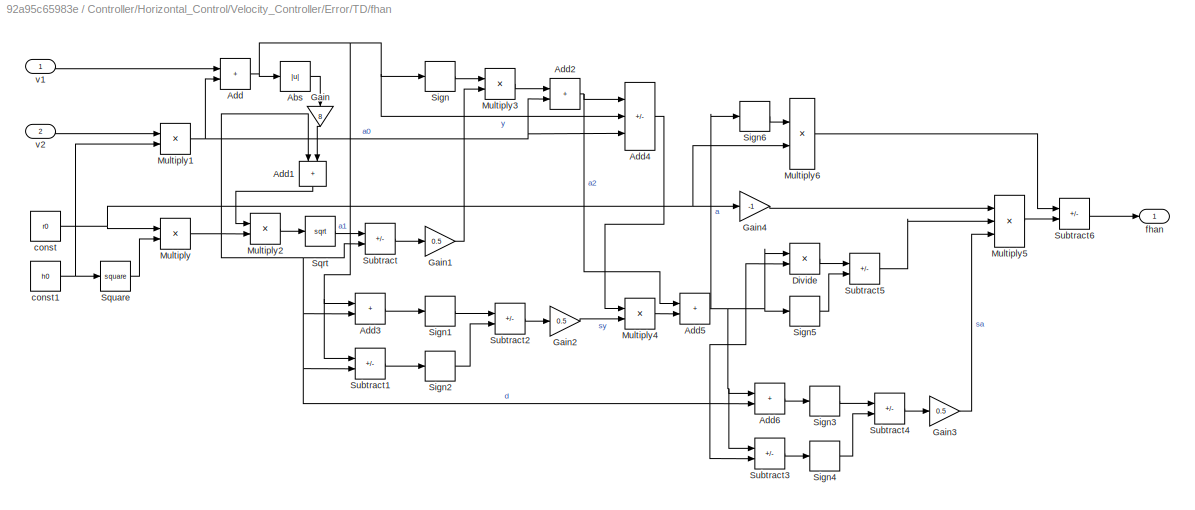
BLOCK [SubSystem] Controller/Horizontal_Control/Velocity_Controller/Error/TD/fhan 
  Ports = [2, 1]
  RequestExecContextInheritance = off
BLOCK [Abs] Controller/Horizontal_Control/Velocity_Controller/Error/TD/fhan /Abs
  SaturateOnIntegerOverflow = off
BLOCK [Sum] Controller/Horizontal_Control/Velocity_Controller/Error/TD/fhan /Add
  IconShape = rectangular
  OutDataTypeStr = Inherit: Same as first input
  Ports = [2, 1]
BLOCK [Sum] Controller/Horizontal_Control/Velocity_Controller/Error/TD/fhan /Add1
  IconShape = rectangular
  NameLocation = left
  OutDataTypeStr = Inherit: Same as first input
  Ports = [2, 1]
BLOCK [Sum] Controller/Horizontal_Control/Velocity_Controller/Error/TD/fhan /Add2
  IconShape = rectangular
  OutDataTypeStr = Inherit: Same as first input
  Ports = [2, 1]
BLOCK [Sum] Controller/Horizontal_Control/Velocity_Controller/Error/TD/fhan /Add3
  IconShape = rectangular
  OutDataTypeStr = Inherit: Same as first input
  Ports = [2, 1]
BLOCK [Sum] Controller/Horizontal_Control/Velocity_Controller/Error/TD/fhan /Add4
  IconShape = rectangular
  Inputs = -++
  Ports = [3, 1]
BLOCK [Sum] Controller/Horizontal_Control/Velocity_Controller/Error/TD/fhan /Add5
  IconShape = rectangular
  OutDataTypeStr = Inherit: Same as first input
  Ports = [2, 1]
BLOCK [Sum] Controller/Horizontal_Control/Velocity_Controller/Error/TD/fhan /Add6
  IconShape = rectangular
  OutDataTypeStr = Inherit: Same as first input
  Ports = [2, 1]
BLOCK [Product] Controller/Horizontal_Control/Velocity_Controller/Error/TD/fhan /Divide
  Inputs = */
  Ports = [2, 1]
BLOCK [Gain] Controller/Horizontal_Control/Velocity_Controller/Error/TD/fhan /Gain
  Gain = 8
  NameLocation = left
BLOCK [Gain] Controller/Horizontal_Control/Velocity_Controller/Error/TD/fhan /Gain1
  Gain = 0.5
  OutDataTypeStr = Inherit: Same as input
BLOCK [Gain] Controller/Horizontal_Control/Velocity_Controller/Error/TD/fhan /Gain2
  Gain = 0.5
  OutDataTypeStr = Inherit: Same as input
BLOCK [Gain] Controller/Horizontal_Control/Velocity_Controller/Error/TD/fhan /Gain3
  Gain = 0.5
  OutDataTypeStr = Inherit: Same as input
BLOCK [Gain] Controller/Horizontal_Control/Velocity_Controller/Error/TD/fhan /Gain4
  Gain = -1
  OutDataTypeStr = Inherit: Same as input
BLOCK [Product] Controller/Horizontal_Control/Velocity_Controller/Error/TD/fhan /Multiply
  OutDataTypeStr = Inherit: Same as first input
  Ports = [2, 1]
BLOCK [Product] Controller/Horizontal_Control/Velocity_Controller/Error/TD/fhan /Multiply1
  OutDataTypeStr = Inherit: Same as first input
  Ports = [2, 1]
BLOCK [Product] Controller/Horizontal_Control/Velocity_Controller/Error/TD/fhan /Multiply2
  OutDataTypeStr = Inherit: Same as first input
  Ports = [2, 1]
BLOCK [Product] Controller/Horizontal_Control/Velocity_Controller/Error/TD/fhan /Multiply3
  OutDataTypeStr = Inherit: Same as first input
  Ports = [2, 1]
BLOCK [Product] Controller/Horizontal_Control/Velocity_Controller/Error/TD/fhan /Multiply4
  OutDataTypeStr = single
  Ports = [2, 1]
BLOCK [Product] Controller/Horizontal_Control/Velocity_Controller/Error/TD/fhan /Multiply5
  Inputs = 3
  Ports = [3, 1]
BLOCK [Product] Controller/Horizontal_Control/Velocity_Controller/Error/TD/fhan /Multiply6
  OutDataTypeStr = single
  Ports = [2, 1]
BLOCK [Signum] Controller/Horizontal_Control/Velocity_Controller/Error/TD/fhan /Sign
BLOCK [Signum] Controller/Horizontal_Control/Velocity_Controller/Error/TD/fhan /Sign1
BLOCK [Signum] Controller/Horizontal_Control/Velocity_Controller/Error/TD/fhan /Sign2
BLOCK [Signum] Controller/Horizontal_Control/Velocity_Controller/Error/TD/fhan /Sign3
BLOCK [Signum] Controller/Horizontal_Control/Velocity_Controller/Error/TD/fhan /Sign4
BLOCK [Signum] Controller/Horizontal_Control/Velocity_Controller/Error/TD/fhan /Sign5
BLOCK [Signum] Controller/Horizontal_Control/Velocity_Controller/Error/TD/fhan /Sign6
BLOCK [Sqrt] Controller/Horizontal_Control/Velocity_Controller/Error/TD/fhan /Sqrt
BLOCK [Math] Controller/Horizontal_Control/Velocity_Controller/Error/TD/fhan /Square
  Operator = square
  Ports = [1, 1]
  SignedPower = on
BLOCK [Sum] Controller/Horizontal_Control/Velocity_Controller/Error/TD/fhan /Subtract
  IconShape = rectangular
  Inputs = +-
  OutDataTypeStr = Inherit: Same as first input
  Ports = [2, 1]
BLOCK [Sum] Controller/Horizontal_Control/Velocity_Controller/Error/TD/fhan /Subtract1
  IconShape = rectangular
  Inputs = +-
  OutDataTypeStr = Inherit: Same as first input
  Ports = [2, 1]
BLOCK [Sum] Controller/Horizontal_Control/Velocity_Controller/Error/TD/fhan /Subtract2
  IconShape = rectangular
  Inputs = +-
  OutDataTypeStr = Inherit: Same as first input
  Ports = [2, 1]
BLOCK [Sum] Controller/Horizontal_Control/Velocity_Controller/Error/TD/fhan /Subtract3
  IconShape = rectangular
  Inputs = +-
  OutDataTypeStr = Inherit: Same as first input
  Ports = [2, 1]
BLOCK [Sum] Controller/Horizontal_Control/Velocity_Controller/Error/TD/fhan /Subtract4
  IconShape = rectangular
  Inputs = +-
  OutDataTypeStr = Inherit: Same as first input
  Ports = [2, 1]
BLOCK [Sum] Controller/Horizontal_Control/Velocity_Controller/Error/TD/fhan /Subtract5
  IconShape = rectangular
  Inputs = +-
  OutDataTypeStr = Inherit: Same as first input
  Ports = [2, 1]
BLOCK [Sum] Controller/Horizontal_Control/Velocity_Controller/Error/TD/fhan /Subtract6
  IconShape = rectangular
  Inputs = -+
  OutDataTypeStr = Inherit: Same as first input
  Ports = [2, 1]
BLOCK [Constant] Controller/Horizontal_Control/Velocity_Controller/Error/TD/fhan /const
  OutDataTypeStr = single
  Value = r0
BLOCK [Constant] Controller/Horizontal_Control/Velocity_Controller/Error/TD/fhan /const1
  OutDataTypeStr = single
  Value = h0
BLOCK [Outport] Controller/Horizontal_Control/Velocity_Controller/Error/TD/fhan /fhan
  VectorParamsAs1DForOutWhenUnconnected = off
BLOCK [Inport] Controller/Horizontal_Control/Velocity_Controller/Error/TD/fhan /v1
BLOCK [Inport] Controller/Horizontal_Control/Velocity_Controller/Error/TD/fhan /v2
  Port = 2
BLOCK [Inport] Controller/Horizontal_Control/Velocity_Controller/Error/TD/v
BLOCK [Outport] Controller/Horizontal_Control/Velocity_Controller/Error/TD/v1
  VectorParamsAs1DForOutWhenUnconnected = off
BLOCK [Outport] Controller/Horizontal_Control/Velocity_Controller/Error/uv_err_C_mPs
  VectorParamsAs1DForOutWhenUnconnected = off
BLOCK [Inport] Controller/Horizontal_Control/Velocity_Controller/FMS_Out
BLOCK [Inport] Controller/Horizontal_Control/Velocity_Controller/INS_Out
  Port = 2
BLOCK [SubSystem] Controller/Horizontal_Control/Velocity_Controller/PID_Controller
  Ports = [2, 1]
  RequestExecContextInheritance = off
BLOCK [Sum] Controller/Horizontal_Control/Velocity_Controller/PID_Controller/Add
  AccumDataTypeStr = Inherit: Same as first input
  IconShape = rectangular
  Inputs = +++
  Ports = [3, 1]
BLOCK [SubSystem] Controller/Horizontal_Control/Velocity_Controller/PID_Controller/D_Control
  Ports = [2, 1]
  RequestExecContextInheritance = off
BLOCK [Reference] Controller/Horizontal_Control/Velocity_Controller/PID_Controller/D_Control/DT Filter  REF=FMT_Model_Lib/Filter/DT Filter
  Ports = [2, 1]
  SourceBlock = FMT_Model_Lib/Filter/DT Filter
  SourceProductName = FMT Toolbox
  SourceType = Derivative Tracking Filter
BLOCK [Product] Controller/Horizontal_Control/Velocity_Controller/PID_Controller/D_Control/Multiply
  OutDataTypeStr = Inherit: Same as first input
  Ports = [2, 1]
BLOCK [Saturate] Controller/Horizontal_Control/Velocity_Controller/PID_Controller/D_Control/Saturation
  LowerLimit = min_d
  UpperLimit = max_d
BLOCK [Outport] Controller/Horizontal_Control/Velocity_Controller/PID_Controller/D_Control/d_out
  VectorParamsAs1DForOutWhenUnconnected = off
BLOCK [Inport] Controller/Horizontal_Control/Velocity_Controller/PID_Controller/D_Control/err
BLOCK [Constant] Controller/Horizontal_Control/Velocity_Controller/PID_Controller/D_Control/kd
  OutDataTypeStr = single
  Value = kd
BLOCK [Inport] Controller/Horizontal_Control/Velocity_Controller/PID_Controller/D_Control/reset
  Port = 2
BLOCK [SubSystem] Controller/Horizontal_Control/Velocity_Controller/PID_Controller/I_Control
  Ports = [2, 1]
  RequestExecContextInheritance = off
BLOCK [Constant] Controller/Horizontal_Control/Velocity_Controller/PID_Controller/I_Control/Constant
  OutDataTypeStr = single
  Value = 0
BLOCK [DiscreteIntegrator] Controller/Horizontal_Control/Velocity_Controller/PID_Controller/I_Control/Discrete-Time Integrator
  ExternalReset = level
  ICPrevOutput = DiscIntNeverNeededParam
  ICPrevScaledInput = DiscIntNeverNeededParam
  InitialConditionSetting = Auto
  InitialConditionSource = external
  LimitOutput = on
  LowerSaturationLimit = min_i
  Ports = [3, 1]
  SampleTime = -1
  UpperSaturationLimit = max_i
BLOCK [Product] Controller/Horizontal_Control/Velocity_Controller/PID_Controller/I_Control/Multiply
  OutDataTypeStr = Inherit: Same as first input
  Ports = [2, 1]
BLOCK [Inport] Controller/Horizontal_Control/Velocity_Controller/PID_Controller/I_Control/err
BLOCK [Outport] Controller/Horizontal_Control/Velocity_Controller/PID_Controller/I_Control/i_out
  VectorParamsAs1DForOutWhenUnconnected = off
BLOCK [Constant] Controller/Horizontal_Control/Velocity_Controller/PID_Controller/I_Control/ki
  OutDataTypeStr = single
  Value = ki
BLOCK [Inport] Controller/Horizontal_Control/Velocity_Controller/PID_Controller/I_Control/reset
  Port = 2
BLOCK [SubSystem] Controller/Horizontal_Control/Velocity_Controller/PID_Controller/P_Control
  Ports = [1, 1]
  RequestExecContextInheritance = off
BLOCK [Product] Controller/Horizontal_Control/Velocity_Controller/PID_Controller/P_Control/Multiply
  OutDataTypeStr = Inherit: Same as first input
  Ports = [2, 1]
BLOCK [Inport] Controller/Horizontal_Control/Velocity_Controller/PID_Controller/P_Control/err
BLOCK [Constant] Controller/Horizontal_Control/Velocity_Controller/PID_Controller/P_Control/kp
  OutDataTypeStr = single
  Value = kp
BLOCK [Outport] Controller/Horizontal_Control/Velocity_Controller/PID_Controller/P_Control/p_out
  VectorParamsAs1DForOutWhenUnconnected = off
BLOCK [Outport] Controller/Horizontal_Control/Velocity_Controller/PID_Controller/accel_cmd_C
  VectorParamsAs1DForOutWhenUnconnected = off
BLOCK [Inport] Controller/Horizontal_Control/Velocity_Controller/PID_Controller/reset
  Port = 2
BLOCK [Inport] Controller/Horizontal_Control/Velocity_Controller/PID_Controller/uv_err_C_mPs
BLOCK [SubSystem] Controller/Horizontal_Control/Velocity_Controller/Signal_Select
  Ports = [2, 1]
  RequestExecContextInheritance = off
BLOCK [BusSelector] Controller/Horizontal_Control/Velocity_Controller/Signal_Select/Bus Selector
  OutputSignals = ctrl_mode
  Ports = [1, 1]
BLOCK [Inport] Controller/Horizontal_Control/Velocity_Controller/Signal_Select/FMS_Out
  Port = 2
BLOCK [Reference] Controller/Horizontal_Control/Velocity_Controller/Signal_Select/Offboard  REF=simulink/Logic and Bit
Operations/Compare
To Constant
  Ports = [1, 1]
  SourceBlock = simulink/Logic and Bit\nOperations/Compare\nTo Constant
  SourceProductBaseCode = SL
  SourceType = Compare To Constant
BLOCK [SubSystem] Controller/Horizontal_Control/Velocity_Controller/Signal_Select/Offboard_Signal_Select
  Ports = [2, 1]
  RequestExecContextInheritance = off
BLOCK [BusSelector] Controller/Horizontal_Control/Velocity_Controller/Signal_Select/Offboard_Signal_Select/Bus Selector1
  OutputSignals = cmd_mask
  Ports = [1, 1]
BLOCK [BusSelector] Controller/Horizontal_Control/Velocity_Controller/Signal_Select/Offboard_Signal_Select/Bus Selector2
  OutputSignals = ax_cmd,ay_cmd
  Ports = [1, 2]
BLOCK [Reference] Controller/Horizontal_Control/Velocity_Controller/Signal_Select/Offboard_Signal_Select/Compare To Zero  REF=simulink/Logic and Bit
Operations/Compare
To Zero
  Ports = [1, 1]
  SourceBlock = simulink/Logic and Bit\nOperations/Compare\nTo Zero
  SourceProductBaseCode = SL
  SourceType = Compare To Zero
BLOCK [Reference] Controller/Horizontal_Control/Velocity_Controller/Signal_Select/Offboard_Signal_Select/Compare To Zero2  REF=simulink/Logic and Bit
Operations/Compare
To Zero
  Ports = [1, 1]
  SourceBlock = simulink/Logic and Bit\nOperations/Compare\nTo Zero
  SourceProductBaseCode = SL
  SourceType = Compare To Zero
BLOCK [Inport] Controller/Horizontal_Control/Velocity_Controller/Signal_Select/Offboard_Signal_Select/FMS_Out
BLOCK [Product] Controller/Horizontal_Control/Velocity_Controller/Signal_Select/Offboard_Signal_Select/Multiply2
  Ports = [2, 1]
BLOCK [Product] Controller/Horizontal_Control/Velocity_Controller/Signal_Select/Offboard_Signal_Select/Multiply3
  Ports = [2, 1]
BLOCK [Mux] Controller/Horizontal_Control/Velocity_Controller/Signal_Select/Offboard_Signal_Select/Mux
  DisplayOption = bar
  Inputs = 2
  Ports = [2, 1]
BLOCK [Mux] Controller/Horizontal_Control/Velocity_Controller/Signal_Select/Offboard_Signal_Select/Mux1
  DisplayOption = bar
  Inputs = 2
  Ports = [2, 1]
BLOCK [Mux] Controller/Horizontal_Control/Velocity_Controller/Signal_Select/Offboard_Signal_Select/Mux2
  DisplayOption = bar
  Inputs = 2
  Ports = [2, 1]
BLOCK [Sum] Controller/Horizontal_Control/Velocity_Controller/Signal_Select/Offboard_Signal_Select/Sum1
  Inputs = |++
  Ports = [2, 1]
BLOCK [Outport] Controller/Horizontal_Control/Velocity_Controller/Signal_Select/Offboard_Signal_Select/acc_cmd
  VectorParamsAs1DForOutWhenUnconnected = off
BLOCK [Inport] Controller/Horizontal_Control/Velocity_Controller/Signal_Select/Offboard_Signal_Select/acc_cmd_in
  Port = 2
BLOCK [Reference] Controller/Horizontal_Control/Velocity_Controller/Signal_Select/Offboard_Signal_Select/cmd_ax valid  REF=simulink/Logic and Bit
Operations/Bitwise
Operator
  Ports = [1, 1]
  SourceBlock = simulink/Logic and Bit\nOperations/Bitwise\nOperator
  SourceProductBaseCode = SL
  SourceType = Bitwise Operator
BLOCK [Reference] Controller/Horizontal_Control/Velocity_Controller/Signal_Select/Offboard_Signal_Select/cmd_ay valid  REF=simulink/Logic and Bit
Operations/Bitwise
Operator
  Ports = [1, 1]
  SourceBlock = simulink/Logic and Bit\nOperations/Bitwise\nOperator
  SourceProductBaseCode = SL
  SourceType = Bitwise Operator
BLOCK [Reference] Controller/Horizontal_Control/Velocity_Controller/Signal_Select/Offboard_Signal_Select/cmd_u valid  REF=simulink/Logic and Bit
Operations/Bitwise
Operator
  Ports = [1, 1]
  SourceBlock = simulink/Logic and Bit\nOperations/Bitwise\nOperator
  SourceProductBaseCode = SL
  SourceType = Bitwise Operator
BLOCK [Reference] Controller/Horizontal_Control/Velocity_Controller/Signal_Select/Offboard_Signal_Select/cmd_v valid  REF=simulink/Logic and Bit
Operations/Bitwise
Operator
  Ports = [1, 1]
  SourceBlock = simulink/Logic and Bit\nOperations/Bitwise\nOperator
  SourceProductBaseCode = SL
  SourceType = Bitwise Operator
BLOCK [Switch] Controller/Horizontal_Control/Velocity_Controller/Signal_Select/Switch
  Criteria = u2 > Threshold
  InputSameDT = off
  SaturateOnIntegerOverflow = off
BLOCK [Inport] Controller/Horizontal_Control/Velocity_Controller/Signal_Select/acc_cmd_in
BLOCK [Outport] Controller/Horizontal_Control/Velocity_Controller/Signal_Select/acc_cmd_out
  VectorParamsAs1DForOutWhenUnconnected = off
BLOCK [Outport] Controller/Horizontal_Control/Velocity_Controller/att_cmd_B_rad
  VectorParamsAs1DForOutWhenUnconnected = off
BLOCK [Outport] Controller/Horizontal_Control/rate_dot_cmd_B
  VectorParamsAs1DForOutWhenUnconnected = off
BLOCK [Inport] Controller/INS_Out
  Port = 2
BLOCK [SubSystem] Controller/Vertical_Control
  Ports = [2, 1]
  RequestExecContextInheritance = off
BLOCK [Inport] Controller/Vertical_Control/FMS_Out
BLOCK [Inport] Controller/Vertical_Control/INS_Out
  Port = 2
BLOCK [SubSystem] Controller/Vertical_Control/Veloxity_Z_Controller
  Ports = [2, 1]
  RequestExecContextInheritance = off
BLOCK [SubSystem] Controller/Vertical_Control/Veloxity_Z_Controller/Boosted_Throttle
  Ports = [2, 1]
  RequestExecContextInheritance = off
BLOCK [BusSelector] Controller/Vertical_Control/Veloxity_Z_Controller/Boosted_Throttle/Bus Selector
  OutputSignals = phi,theta
  Ports = [1, 2]
BLOCK [Constant] Controller/Vertical_Control/Veloxity_Z_Controller/Boosted_Throttle/Constant
  OutDataTypeStr = single
BLOCK [Trigonometry] Controller/Vertical_Control/Veloxity_Z_Controller/Boosted_Throttle/Cos
  Operator = cos
  Ports = [1, 1]
BLOCK [Trigonometry] Controller/Vertical_Control/Veloxity_Z_Controller/Boosted_Throttle/Cos1
  Operator = cos
  Ports = [1, 1]
BLOCK [Product] Controller/Vertical_Control/Veloxity_Z_Controller/Boosted_Throttle/Divide
  Inputs = */
  Ports = [2, 1]
BLOCK [Gain] Controller/Vertical_Control/Veloxity_Z_Controller/Boosted_Throttle/Gain
  Gain = 2
BLOCK [Inport] Controller/Vertical_Control/Veloxity_Z_Controller/Boosted_Throttle/INS_Out
  Port = 2
BLOCK [Product] Controller/Vertical_Control/Veloxity_Z_Controller/Boosted_Throttle/Multiply
  Ports = [2, 1]
BLOCK [Product] Controller/Vertical_Control/Veloxity_Z_Controller/Boosted_Throttle/Multiply1
  Inputs = 3
  Ports = [3, 1]
BLOCK [Saturate] Controller/Vertical_Control/Veloxity_Z_Controller/Boosted_Throttle/Saturation
  LowerLimit = 0
  UpperLimit = 1
BLOCK [Saturate] Controller/Vertical_Control/Veloxity_Z_Controller/Boosted_Throttle/Saturation1
  LowerLimit = 0.5
  UpperLimit = 1
BLOCK [Outport] Controller/Vertical_Control/Veloxity_Z_Controller/Boosted_Throttle/boosted_thrust
  VectorParamsAs1DForOutWhenUnconnected = off
BLOCK [Inport] Controller/Vertical_Control/Veloxity_Z_Controller/Boosted_Throttle/thrust_cmd
BLOCK [BusSelector] Controller/Vertical_Control/Veloxity_Z_Controller/Bus Selector
  OutputSignals = reset
  Ports = [1, 1]
BLOCK [SubSystem] Controller/Vertical_Control/Veloxity_Z_Controller/Error
  Ports = [2, 1]
  RequestExecContextInheritance = off
BLOCK [BusSelector] Controller/Vertical_Control/Veloxity_Z_Controller/Error/Bus Selector1
  OutputSignals = vd
  Ports = [1, 1]
BLOCK [BusSelector] Controller/Vertical_Control/Veloxity_Z_Controller/Error/Bus Selector2
  OutputSignals = w_cmd
  Ports = [1, 1]
BLOCK [Inport] Controller/Vertical_Control/Veloxity_Z_Controller/Error/FMS_Out
BLOCK [Gain] Controller/Vertical_Control/Veloxity_Z_Controller/Error/Gain
  Gain = -1
  OutDataTypeStr = Inherit: Same as input
BLOCK [Inport] Controller/Vertical_Control/Veloxity_Z_Controller/Error/INS_Out
  Port = 2
BLOCK [SignalConversion] Controller/Vertical_Control/Veloxity_Z_Controller/Error/Signal Copy1
  OverrideOpt = off
BLOCK [Sum] Controller/Vertical_Control/Veloxity_Z_Controller/Error/Sum1
  Inputs = |+-
  Ports = [2, 1]
BLOCK [SubSystem] Controller/Vertical_Control/Veloxity_Z_Controller/Error/TD
  Ports = [1, 1]
  RequestExecContextInheritance = off
BLOCK [DiscreteIntegrator] Controller/Vertical_Control/Veloxity_Z_Controller/Error/TD/Integrator
  ICPrevOutput = DiscIntNeverNeededParam
  ICPrevScaledInput = DiscIntNeverNeededParam
  InitialConditionSetting = Auto
  Ports = [1, 1]
  SampleTime = -1
BLOCK [DiscreteIntegrator] Controller/Vertical_Control/Veloxity_Z_Controller/Error/TD/Integrator1
  ICPrevOutput = DiscIntNeverNeededParam
  ICPrevScaledInput = DiscIntNeverNeededParam
  InitialConditionSetting = Auto
  Ports = [1, 1]
  SampleTime = -1
BLOCK [Sum] Controller/Vertical_Control/Veloxity_Z_Controller/Error/TD/Subtract
  IconShape = rectangular
  Inputs = +-
  Ports = [2, 1]
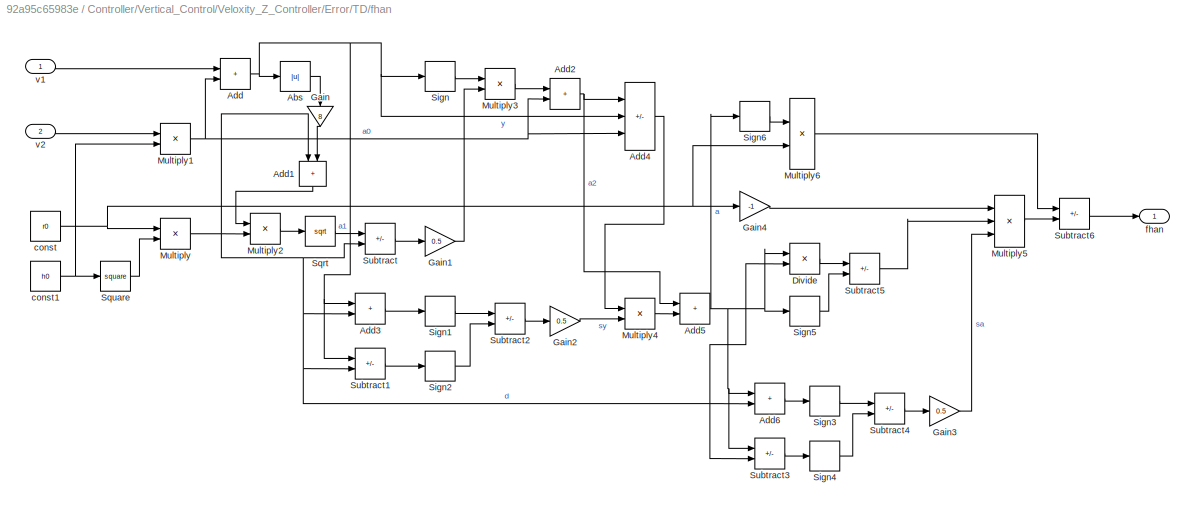
BLOCK [SubSystem] Controller/Vertical_Control/Veloxity_Z_Controller/Error/TD/fhan 
  Ports = [2, 1]
  RequestExecContextInheritance = off
BLOCK [Abs] Controller/Vertical_Control/Veloxity_Z_Controller/Error/TD/fhan /Abs
  SaturateOnIntegerOverflow = off
BLOCK [Sum] Controller/Vertical_Control/Veloxity_Z_Controller/Error/TD/fhan /Add
  IconShape = rectangular
  OutDataTypeStr = Inherit: Same as first input
  Ports = [2, 1]
BLOCK [Sum] Controller/Vertical_Control/Veloxity_Z_Controller/Error/TD/fhan /Add1
  IconShape = rectangular
  NameLocation = left
  OutDataTypeStr = Inherit: Same as first input
  Ports = [2, 1]
BLOCK [Sum] Controller/Vertical_Control/Veloxity_Z_Controller/Error/TD/fhan /Add2
  IconShape = rectangular
  OutDataTypeStr = Inherit: Same as first input
  Ports = [2, 1]
BLOCK [Sum] Controller/Vertical_Control/Veloxity_Z_Controller/Error/TD/fhan /Add3
  IconShape = rectangular
  OutDataTypeStr = Inherit: Same as first input
  Ports = [2, 1]
BLOCK [Sum] Controller/Vertical_Control/Veloxity_Z_Controller/Error/TD/fhan /Add4
  IconShape = rectangular
  Inputs = -++
  Ports = [3, 1]
BLOCK [Sum] Controller/Vertical_Control/Veloxity_Z_Controller/Error/TD/fhan /Add5
  IconShape = rectangular
  OutDataTypeStr = Inherit: Same as first input
  Ports = [2, 1]
BLOCK [Sum] Controller/Vertical_Control/Veloxity_Z_Controller/Error/TD/fhan /Add6
  IconShape = rectangular
  OutDataTypeStr = Inherit: Same as first input
  Ports = [2, 1]
BLOCK [Product] Controller/Vertical_Control/Veloxity_Z_Controller/Error/TD/fhan /Divide
  Inputs = */
  Ports = [2, 1]
BLOCK [Gain] Controller/Vertical_Control/Veloxity_Z_Controller/Error/TD/fhan /Gain
  Gain = 8
  NameLocation = left
BLOCK [Gain] Controller/Vertical_Control/Veloxity_Z_Controller/Error/TD/fhan /Gain1
  Gain = 0.5
  OutDataTypeStr = Inherit: Same as input
BLOCK [Gain] Controller/Vertical_Control/Veloxity_Z_Controller/Error/TD/fhan /Gain2
  Gain = 0.5
  OutDataTypeStr = Inherit: Same as input
BLOCK [Gain] Controller/Vertical_Control/Veloxity_Z_Controller/Error/TD/fhan /Gain3
  Gain = 0.5
  OutDataTypeStr = Inherit: Same as input
BLOCK [Gain] Controller/Vertical_Control/Veloxity_Z_Controller/Error/TD/fhan /Gain4
  Gain = -1
  OutDataTypeStr = Inherit: Same as input
BLOCK [Product] Controller/Vertical_Control/Veloxity_Z_Controller/Error/TD/fhan /Multiply
  OutDataTypeStr = Inherit: Same as first input
  Ports = [2, 1]
BLOCK [Product] Controller/Vertical_Control/Veloxity_Z_Controller/Error/TD/fhan /Multiply1
  OutDataTypeStr = Inherit: Same as first input
  Ports = [2, 1]
BLOCK [Product] Controller/Vertical_Control/Veloxity_Z_Controller/Error/TD/fhan /Multiply2
  OutDataTypeStr = Inherit: Same as first input
  Ports = [2, 1]
BLOCK [Product] Controller/Vertical_Control/Veloxity_Z_Controller/Error/TD/fhan /Multiply3
  OutDataTypeStr = Inherit: Same as first input
  Ports = [2, 1]
BLOCK [Product] Controller/Vertical_Control/Veloxity_Z_Controller/Error/TD/fhan /Multiply4
  OutDataTypeStr = single
  Ports = [2, 1]
BLOCK [Product] Controller/Vertical_Control/Veloxity_Z_Controller/Error/TD/fhan /Multiply5
  Inputs = 3
  Ports = [3, 1]
BLOCK [Product] Controller/Vertical_Control/Veloxity_Z_Controller/Error/TD/fhan /Multiply6
  OutDataTypeStr = single
  Ports = [2, 1]
BLOCK [Signum] Controller/Vertical_Control/Veloxity_Z_Controller/Error/TD/fhan /Sign
BLOCK [Signum] Controller/Vertical_Control/Veloxity_Z_Controller/Error/TD/fhan /Sign1
BLOCK [Signum] Controller/Vertical_Control/Veloxity_Z_Controller/Error/TD/fhan /Sign2
BLOCK [Signum] Controller/Vertical_Control/Veloxity_Z_Controller/Error/TD/fhan /Sign3
BLOCK [Signum] Controller/Vertical_Control/Veloxity_Z_Controller/Error/TD/fhan /Sign4
BLOCK [Signum] Controller/Vertical_Control/Veloxity_Z_Controller/Error/TD/fhan /Sign5
BLOCK [Signum] Controller/Vertical_Control/Veloxity_Z_Controller/Error/TD/fhan /Sign6
BLOCK [Sqrt] Controller/Vertical_Control/Veloxity_Z_Controller/Error/TD/fhan /Sqrt
BLOCK [Math] Controller/Vertical_Control/Veloxity_Z_Controller/Error/TD/fhan /Square
  Operator = square
  Ports = [1, 1]
  SignedPower = on
BLOCK [Sum] Controller/Vertical_Control/Veloxity_Z_Controller/Error/TD/fhan /Subtract
  IconShape = rectangular
  Inputs = +-
  OutDataTypeStr = Inherit: Same as first input
  Ports = [2, 1]
BLOCK [Sum] Controller/Vertical_Control/Veloxity_Z_Controller/Error/TD/fhan /Subtract1
  IconShape = rectangular
  Inputs = +-
  OutDataTypeStr = Inherit: Same as first input
  Ports = [2, 1]
BLOCK [Sum] Controller/Vertical_Control/Veloxity_Z_Controller/Error/TD/fhan /Subtract2
  IconShape = rectangular
  Inputs = +-
  OutDataTypeStr = Inherit: Same as first input
  Ports = [2, 1]
BLOCK [Sum] Controller/Vertical_Control/Veloxity_Z_Controller/Error/TD/fhan /Subtract3
  IconShape = rectangular
  Inputs = +-
  OutDataTypeStr = Inherit: Same as first input
  Ports = [2, 1]
BLOCK [Sum] Controller/Vertical_Control/Veloxity_Z_Controller/Error/TD/fhan /Subtract4
  IconShape = rectangular
  Inputs = +-
  OutDataTypeStr = Inherit: Same as first input
  Ports = [2, 1]
BLOCK [Sum] Controller/Vertical_Control/Veloxity_Z_Controller/Error/TD/fhan /Subtract5
  IconShape = rectangular
  Inputs = +-
  OutDataTypeStr = Inherit: Same as first input
  Ports = [2, 1]
BLOCK [Sum] Controller/Vertical_Control/Veloxity_Z_Controller/Error/TD/fhan /Subtract6
  IconShape = rectangular
  Inputs = -+
  OutDataTypeStr = Inherit: Same as first input
  Ports = [2, 1]
BLOCK [Constant] Controller/Vertical_Control/Veloxity_Z_Controller/Error/TD/fhan /const
  OutDataTypeStr = single
  Value = r0
BLOCK [Constant] Controller/Vertical_Control/Veloxity_Z_Controller/Error/TD/fhan /const1
  OutDataTypeStr = single
  Value = h0
BLOCK [Outport] Controller/Vertical_Control/Veloxity_Z_Controller/Error/TD/fhan /fhan
  VectorParamsAs1DForOutWhenUnconnected = off
BLOCK [Inport] Controller/Vertical_Control/Veloxity_Z_Controller/Error/TD/fhan /v1
BLOCK [Inport] Controller/Vertical_Control/Veloxity_Z_Controller/Error/TD/fhan /v2
  Port = 2
BLOCK [Inport] Controller/Vertical_Control/Veloxity_Z_Controller/Error/TD/v
BLOCK [Outport] Controller/Vertical_Control/Veloxity_Z_Controller/Error/TD/v1
  VectorParamsAs1DForOutWhenUnconnected = off
BLOCK [Outport] Controller/Vertical_Control/Veloxity_Z_Controller/Error/vu_cmd_C_mPs
  VectorParamsAs1DForOutWhenUnconnected = off
BLOCK [Inport] Controller/Vertical_Control/Veloxity_Z_Controller/FMS_Out
BLOCK [Inport] Controller/Vertical_Control/Veloxity_Z_Controller/INS_Out
  Port = 2
BLOCK [SubSystem] Controller/Vertical_Control/Veloxity_Z_Controller/PID_Controller
  Ports = [2, 1]
  RequestExecContextInheritance = off
BLOCK [Sum] Controller/Vertical_Control/Veloxity_Z_Controller/PID_Controller/Add
  AccumDataTypeStr = Inherit: Same as first input
  IconShape = rectangular
  Inputs = +++
  Ports = [3, 1]
BLOCK [SubSystem] Controller/Vertical_Control/Veloxity_Z_Controller/PID_Controller/D_Control
  Ports = [2, 1]
  RequestExecContextInheritance = off
BLOCK [Reference] Controller/Vertical_Control/Veloxity_Z_Controller/PID_Controller/D_Control/DT Filter  REF=FMT_Model_Lib/Filter/DT Filter
  Ports = [2, 1]
  SourceBlock = FMT_Model_Lib/Filter/DT Filter
  SourceProductName = FMT Toolbox
  SourceType = Derivative Tracking Filter
BLOCK [Product] Controller/Vertical_Control/Veloxity_Z_Controller/PID_Controller/D_Control/Multiply
  OutDataTypeStr = Inherit: Same as first input
  Ports = [2, 1]
BLOCK [Saturate] Controller/Vertical_Control/Veloxity_Z_Controller/PID_Controller/D_Control/Saturation
  LowerLimit = min_d
  UpperLimit = max_d
BLOCK [Outport] Controller/Vertical_Control/Veloxity_Z_Controller/PID_Controller/D_Control/d_out
  VectorParamsAs1DForOutWhenUnconnected = off
BLOCK [Inport] Controller/Vertical_Control/Veloxity_Z_Controller/PID_Controller/D_Control/err
BLOCK [Constant] Controller/Vertical_Control/Veloxity_Z_Controller/PID_Controller/D_Control/kd
  OutDataTypeStr = single
  Value = kd
BLOCK [Inport] Controller/Vertical_Control/Veloxity_Z_Controller/PID_Controller/D_Control/reset
  Port = 2
BLOCK [SubSystem] Controller/Vertical_Control/Veloxity_Z_Controller/PID_Controller/I_Control
  Ports = [2, 1]
  RequestExecContextInheritance = off
BLOCK [Constant] Controller/Vertical_Control/Veloxity_Z_Controller/PID_Controller/I_Control/Constant
  OutDataTypeStr = single
  Value = min_i
BLOCK [DiscreteIntegrator] Controller/Vertical_Control/Veloxity_Z_Controller/PID_Controller/I_Control/Discrete-Time Integrator
  ExternalReset = level
  ICPrevOutput = DiscIntNeverNeededParam
  ICPrevScaledInput = DiscIntNeverNeededParam
  InitialConditionSetting = Auto
  InitialConditionSource = external
  LimitOutput = on
  LowerSaturationLimit = min_i
  Ports = [3, 1]
  SampleTime = -1
  UpperSaturationLimit = max_i
BLOCK [Product] Controller/Vertical_Control/Veloxity_Z_Controller/PID_Controller/I_Control/Multiply
  OutDataTypeStr = Inherit: Same as first input
  Ports = [2, 1]
BLOCK [Inport] Controller/Vertical_Control/Veloxity_Z_Controller/PID_Controller/I_Control/err
BLOCK [Outport] Controller/Vertical_Control/Veloxity_Z_Controller/PID_Controller/I_Control/i_out
  VectorParamsAs1DForOutWhenUnconnected = off
BLOCK [Constant] Controller/Vertical_Control/Veloxity_Z_Controller/PID_Controller/I_Control/ki
  OutDataTypeStr = single
  Value = ki
BLOCK [Inport] Controller/Vertical_Control/Veloxity_Z_Controller/PID_Controller/I_Control/reset
  Port = 2
BLOCK [SubSystem] Controller/Vertical_Control/Veloxity_Z_Controller/PID_Controller/P_Control
  Ports = [1, 1]
  RequestExecContextInheritance = off
BLOCK [Product] Controller/Vertical_Control/Veloxity_Z_Controller/PID_Controller/P_Control/Multiply
  OutDataTypeStr = Inherit: Same as first input
  Ports = [2, 1]
BLOCK [Inport] Controller/Vertical_Control/Veloxity_Z_Controller/PID_Controller/P_Control/err
BLOCK [Constant] Controller/Vertical_Control/Veloxity_Z_Controller/PID_Controller/P_Control/kp
  OutDataTypeStr = single
  Value = kp
BLOCK [Outport] Controller/Vertical_Control/Veloxity_Z_Controller/PID_Controller/P_Control/p_out
  VectorParamsAs1DForOutWhenUnconnected = off
BLOCK [Inport] Controller/Vertical_Control/Veloxity_Z_Controller/PID_Controller/reset
  Port = 2
BLOCK [Outport] Controller/Vertical_Control/Veloxity_Z_Controller/PID_Controller/thrust_cmd
  VectorParamsAs1DForOutWhenUnconnected = off
BLOCK [Inport] Controller/Vertical_Control/Veloxity_Z_Controller/PID_Controller/vu_cmd_C_mPs
BLOCK [Saturate] Controller/Vertical_Control/Veloxity_Z_Controller/Saturation
  LowerLimit = -0.35
  UpperLimit = 0.35
BLOCK [Outport] Controller/Vertical_Control/Veloxity_Z_Controller/g_force_cmd_B
  VectorParamsAs1DForOutWhenUnconnected = off
BLOCK [Outport] Controller/Vertical_Control/g_force_cmd_B
  VectorParamsAs1DForOutWhenUnconnected = off
BLOCK [Outport] Controller/actuator_cmd
  VectorParamsAs1DForOutWhenUnconnected = off
BLOCK [Inport] FMS_Out
  OutDataTypeStr = Bus: FMS_Out_Bus
BLOCK [Inport] INS_Out
  OutDataTypeStr = Bus: INS_Out_Bus
  Port = 2
ANNOTATION Controller/Control_Allocation: 1) Add Subsystem or Model blocks as valid variant choices. 2) You cannot connect blocks at this level. At simulation, connectivity is automatically determined, based on the active variant and port name matching.
ANNOTATION Controller/Control_Allocation/Coxial_Hexacopter_x/Signal_Select: mode: 0: Unknown 1: Mission 2: Position 3: Altitude Hold 4: Manual Mode 5: Acro Mode
ANNOTATION Controller/Control_Allocation/Coxial_Quadcopter_x/Signal_Select: mode: 0: Unknown 1: Mission 2: Position 3: Altitude Hold 4: Manual Mode 5: Acro Mode
ANNOTATION Controller/Control_Allocation/Hexacopter_+/Signal_Select: mode: 0: Unknown 1: Mission 2: Position 3: Altitude Hold 4: Manual Mode 5: Acro Mode
ANNOTATION Controller/Control_Allocation/Hexacopter_x/Signal_Select: mode: 0: Unknown 1: Mission 2: Position 3: Altitude Hold 4: Manual Mode 5: Acro Mode
ANNOTATION Controller/Control_Allocation/Octocopter_+/Signal_Select: mode: 0: Unknown 1: Mission 2: Position 3: Altitude Hold 4: Manual Mode 5: Acro Mode
ANNOTATION Controller/Control_Allocation/Octocopter_x/Signal_Select: mode: 0: Unknown 1: Mission 2: Position 3: Altitude Hold 4: Manual Mode 5: Acro Mode
ANNOTATION Controller/Control_Allocation/Quadcopter_+/Signal_Select: mode: 0: Unknown 1: Mission 2: Position 3: Altitude Hold 4: Manual Mode 5: Acro Mode
ANNOTATION Controller/Control_Allocation/Quadcopter_x/Signal_Select: mode: 0: Unknown 1: Mission 2: Position 3: Altitude Hold 4: Manual Mode 5: Acro Mode
ANNOTATION Controller/Horizontal_Control/Attitude_Controller/Inner_Loop/Signal_Select: mode: 0: Unknown 1: Mission 2: Stablize 3: Altitude Hold 4: Attitude Mode 5: Acro Mode
ANNOTATION Controller/Horizontal_Control/Attitude_Controller/Outter_Loop/Signal_Select: mode: 0: Unknown 1: Mission 2: Position 3: Altitude Hold 4: Manual Mode 5: Acro Mode 6: Offboard
ANNOTATION Controller/Horizontal_Control/Velocity_Controller/Accel_to_Attitude_CMD: Gain to resist air drag
ANNOTATION Controller/Vertical_Control/Veloxity_Z_Controller: Leave some margin for att control
LINE Bus_Constructor/Bus Assignment:1 -> Bus_Constructor/Control_Out:1
LINE Bus_Constructor/Constant:1 -> Bus_Constructor/Bus Assignment:1
LINE Bus_Constructor/actuator_cmd:1 -> Bus_Constructor/Bus Assignment:2
LINE Bus_Constructor/timestamp/Constant:1 -> Bus_Constructor/timestamp/Discrete-Time Integrator:1
LINE Bus_Constructor/timestamp/Data Type Conversion:1 -> Bus_Constructor/timestamp/timestamp_ms:1
LINE Bus_Constructor/timestamp/Discrete-Time Integrator:1 -> Bus_Constructor/timestamp/Data Type Conversion:1
LINE Bus_Constructor/timestamp:1 -> Bus_Constructor/Bus Assignment:3
LINE Bus_Constructor:1 -> Control_Out:1
LINE Controller/Control_Allocation/Coxial_Hexacopter_x/Add:1 -> Controller/Control_Allocation/Coxial_Hexacopter_x/Saturation:1
LINE Controller/Control_Allocation/Coxial_Hexacopter_x/Bus Selector:1 -> Controller/Control_Allocation/Coxial_Hexacopter_x/actuator_cmd_routing:2
LINE Controller/Control_Allocation/Coxial_Hexacopter_x/Effective_Matrix:1 -> Controller/Control_Allocation/Coxial_Hexacopter_x/Multiply:1
NET Controller/Control_Allocation/Coxial_Hexacopter_x/FMS_Out:1 -> Controller/Control_Allocation/Coxial_Hexacopter_x/Bus Selector:1, Controller/Control_Allocation/Coxial_Hexacopter_x/Signal_Select:2
LINE Controller/Control_Allocation/Coxial_Hexacopter_x/Gain:1 -> Controller/Control_Allocation/Coxial_Hexacopter_x/Add:1
LINE Controller/Control_Allocation/Coxial_Hexacopter_x/Multiply:1 -> Controller/Control_Allocation/Coxial_Hexacopter_x/Gain:1
LINE Controller/Control_Allocation/Coxial_Hexacopter_x/Saturation1:1 -> Controller/Control_Allocation/Coxial_Hexacopter_x/Multiply:2
LINE Controller/Control_Allocation/Coxial_Hexacopter_x/Saturation2:1 -> Controller/Control_Allocation/Coxial_Hexacopter_x/throttle_mapping:1
LINE Controller/Control_Allocation/Coxial_Hexacopter_x/Saturation:1 -> Controller/Control_Allocation/Coxial_Hexacopter_x/actuator_cmd_routing:1
LINE Controller/Control_Allocation/Coxial_Hexacopter_x/Signal_Select/Bus Selector1:1 -> Controller/Control_Allocation/Coxial_Hexacopter_x/Signal_Select/Switch:1
NET Controller/Control_Allocation/Coxial_Hexacopter_x/Signal_Select/Bus Selector1:2 -> Controller/Control_Allocation/Coxial_Hexacopter_x/Signal_Select/Compare To Constant1:1, Controller/Control_Allocation/Coxial_Hexacopter_x/Signal_Select/Compare To Constant:1
LINE Controller/Control_Allocation/Coxial_Hexacopter_x/Signal_Select/Compare To Constant1:1 -> Controller/Control_Allocation/Coxial_Hexacopter_x/Signal_Select/Switch1:2
LINE Controller/Control_Allocation/Coxial_Hexacopter_x/Signal_Select/Compare To Constant:1 -> Controller/Control_Allocation/Coxial_Hexacopter_x/Signal_Select/Logical Operator:1
NET Controller/Control_Allocation/Coxial_Hexacopter_x/Signal_Select/FMS_Out:1 -> Controller/Control_Allocation/Coxial_Hexacopter_x/Signal_Select/Bus Selector1:1, Controller/Control_Allocation/Coxial_Hexacopter_x/Signal_Select/Offboard_Signal_Select:1
LINE Controller/Control_Allocation/Coxial_Hexacopter_x/Signal_Select/Logical Operator:1 -> Controller/Control_Allocation/Coxial_Hexacopter_x/Signal_Select/Switch:2
LINE Controller/Control_Allocation/Coxial_Hexacopter_x/Signal_Select/Offboard_Signal_Select/Bus Selector1:1 -> Controller/Control_Allocation/Coxial_Hexacopter_x/Signal_Select/Offboard_Signal_Select/cmd_throttle valid:1
LINE Controller/Control_Allocation/Coxial_Hexacopter_x/Signal_Select/Offboard_Signal_Select/Bus Selector2:1 -> Controller/Control_Allocation/Coxial_Hexacopter_x/Signal_Select/Offboard_Signal_Select/Switch:1
NET Controller/Control_Allocation/Coxial_Hexacopter_x/Signal_Select/Offboard_Signal_Select/FMS_Out:1 -> Controller/Control_Allocation/Coxial_Hexacopter_x/Signal_Select/Offboard_Signal_Select/Bus Selector1:1, Controller/Control_Allocation/Coxial_Hexacopter_x/Signal_Select/Offboard_Signal_Select/Bus Selector2:1
LINE Controller/Control_Allocation/Coxial_Hexacopter_x/Signal_Select/Offboard_Signal_Select/Switch:1 -> Controller/Control_Allocation/Coxial_Hexacopter_x/Signal_Select/Offboard_Signal_Select/throttle_cmd_out:1
LINE Controller/Control_Allocation/Coxial_Hexacopter_x/Signal_Select/Offboard_Signal_Select/cmd_throttle valid:1 -> Controller/Control_Allocation/Coxial_Hexacopter_x/Signal_Select/Offboard_Signal_Select/Switch:2
LINE Controller/Control_Allocation/Coxial_Hexacopter_x/Signal_Select/Offboard_Signal_Select/throttle_cmd_in:1 -> Controller/Control_Allocation/Coxial_Hexacopter_x/Signal_Select/Offboard_Signal_Select/Switch:3
LINE Controller/Control_Allocation/Coxial_Hexacopter_x/Signal_Select/Offboard_Signal_Select:1 -> Controller/Control_Allocation/Coxial_Hexacopter_x/Signal_Select/Switch1:1
LINE Controller/Control_Allocation/Coxial_Hexacopter_x/Signal_Select/Switch1:1 -> Controller/Control_Allocation/Coxial_Hexacopter_x/Signal_Select/Switch:3
LINE Controller/Control_Allocation/Coxial_Hexacopter_x/Signal_Select/Switch:1 -> Controller/Control_Allocation/Coxial_Hexacopter_x/Signal_Select/throttle_cmd:1
NET Controller/Control_Allocation/Coxial_Hexacopter_x/Signal_Select/throttle_cmd_in:1 -> Controller/Control_Allocation/Coxial_Hexacopter_x/Signal_Select/Offboard_Signal_Select:2, Controller/Control_Allocation/Coxial_Hexacopter_x/Signal_Select/Switch1:3
LINE Controller/Control_Allocation/Coxial_Hexacopter_x/Signal_Select:1 -> Controller/Control_Allocation/Coxial_Hexacopter_x/Add:2
LINE Controller/Control_Allocation/Coxial_Hexacopter_x/actuator_cmd_routing/Constant:1 -> Controller/Control_Allocation/Coxial_Hexacopter_x/actuator_cmd_routing/Mux1:2
NET Controller/Control_Allocation/Coxial_Hexacopter_x/actuator_cmd_routing/Disarm:1 -> Controller/Control_Allocation/Coxial_Hexacopter_x/actuator_cmd_routing/Multiport Switch:2, Controller/Control_Allocation/Coxial_Hexacopter_x/actuator_cmd_routing/Multiport Switch:5
LINE Controller/Control_Allocation/Coxial_Hexacopter_x/actuator_cmd_routing/Multiport Switch:1 -> Controller/Control_Allocation/Coxial_Hexacopter_x/actuator_cmd_routing/Mux1:1
LINE Controller/Control_Allocation/Coxial_Hexacopter_x/actuator_cmd_routing/Mux1:1 -> Controller/Control_Allocation/Coxial_Hexacopter_x/actuator_cmd_routing/Reshape:1
LINE Controller/Control_Allocation/Coxial_Hexacopter_x/actuator_cmd_routing/Reshape:1 -> Controller/Control_Allocation/Coxial_Hexacopter_x/actuator_cmd_routing/cmd_out:1
LINE Controller/Control_Allocation/Coxial_Hexacopter_x/actuator_cmd_routing/Standby:1 -> Controller/Control_Allocation/Coxial_Hexacopter_x/actuator_cmd_routing/Multiport Switch:3
LINE Controller/Control_Allocation/Coxial_Hexacopter_x/actuator_cmd_routing/cmd_in:1 -> Controller/Control_Allocation/Coxial_Hexacopter_x/actuator_cmd_routing/Multiport Switch:4
LINE Controller/Control_Allocation/Coxial_Hexacopter_x/actuator_cmd_routing/status:1 -> Controller/Control_Allocation/Coxial_Hexacopter_x/actuator_cmd_routing/Multiport Switch:1
LINE Controller/Control_Allocation/Coxial_Hexacopter_x/actuator_cmd_routing:1 -> Controller/Control_Allocation/Coxial_Hexacopter_x/actuator_cmd:1
LINE Controller/Control_Allocation/Coxial_Hexacopter_x/ang_acc_cmd:1 -> Controller/Control_Allocation/Coxial_Hexacopter_x/Saturation1:1
LINE Controller/Control_Allocation/Coxial_Hexacopter_x/line_acc_cmd:1 -> Controller/Control_Allocation/Coxial_Hexacopter_x/Saturation2:1
LINE Controller/Control_Allocation/Coxial_Hexacopter_x/throttle_mapping/Constant1:1 -> Controller/Control_Allocation/Coxial_Hexacopter_x/throttle_mapping/Sum1:2
LINE Controller/Control_Allocation/Coxial_Hexacopter_x/throttle_mapping/Data Type Conversion:1 -> Controller/Control_Allocation/Coxial_Hexacopter_x/throttle_mapping/throttle_cmd:1
LINE Controller/Control_Allocation/Coxial_Hexacopter_x/throttle_mapping/Gain1:1 -> Controller/Control_Allocation/Coxial_Hexacopter_x/throttle_mapping/Sum1:1
LINE Controller/Control_Allocation/Coxial_Hexacopter_x/throttle_mapping/Saturation:1 -> Controller/Control_Allocation/Coxial_Hexacopter_x/throttle_mapping/Gain1:1
LINE Controller/Control_Allocation/Coxial_Hexacopter_x/throttle_mapping/Sum1:1 -> Controller/Control_Allocation/Coxial_Hexacopter_x/throttle_mapping/Data Type Conversion:1
LINE Controller/Control_Allocation/Coxial_Hexacopter_x/throttle_mapping/Sum:1 -> Controller/Control_Allocation/Coxial_Hexacopter_x/throttle_mapping/Saturation:1
LINE Controller/Control_Allocation/Coxial_Hexacopter_x/throttle_mapping/hover_throttle:1 -> Controller/Control_Allocation/Coxial_Hexacopter_x/throttle_mapping/Sum:2
LINE Controller/Control_Allocation/Coxial_Hexacopter_x/throttle_mapping/theust_cmd:1 -> Controller/Control_Allocation/Coxial_Hexacopter_x/throttle_mapping/Sum:1
LINE Controller/Control_Allocation/Coxial_Hexacopter_x/throttle_mapping:1 -> Controller/Control_Allocation/Coxial_Hexacopter_x/Signal_Select:1
LINE Controller/Control_Allocation/Coxial_Quadcopter_x/Add:1 -> Controller/Control_Allocation/Coxial_Quadcopter_x/Saturation:1
LINE Controller/Control_Allocation/Coxial_Quadcopter_x/Bus Selector:1 -> Controller/Control_Allocation/Coxial_Quadcopter_x/actuator_cmd_routing:2
LINE Controller/Control_Allocation/Coxial_Quadcopter_x/Effective_Matrix:1 -> Controller/Control_Allocation/Coxial_Quadcopter_x/Multiply:1
NET Controller/Control_Allocation/Coxial_Quadcopter_x/FMS_Out:1 -> Controller/Control_Allocation/Coxial_Quadcopter_x/Bus Selector:1, Controller/Control_Allocation/Coxial_Quadcopter_x/Signal_Select:2
LINE Controller/Control_Allocation/Coxial_Quadcopter_x/Gain:1 -> Controller/Control_Allocation/Coxial_Quadcopter_x/Add:1
LINE Controller/Control_Allocation/Coxial_Quadcopter_x/Multiply:1 -> Controller/Control_Allocation/Coxial_Quadcopter_x/Gain:1
LINE Controller/Control_Allocation/Coxial_Quadcopter_x/Saturation1:1 -> Controller/Control_Allocation/Coxial_Quadcopter_x/Multiply:2
LINE Controller/Control_Allocation/Coxial_Quadcopter_x/Saturation2:1 -> Controller/Control_Allocation/Coxial_Quadcopter_x/throttle_mapping:1
LINE Controller/Control_Allocation/Coxial_Quadcopter_x/Saturation:1 -> Controller/Control_Allocation/Coxial_Quadcopter_x/actuator_cmd_routing:1
LINE Controller/Control_Allocation/Coxial_Quadcopter_x/Signal_Select/Bus Selector1:1 -> Controller/Control_Allocation/Coxial_Quadcopter_x/Signal_Select/Switch:1
NET Controller/Control_Allocation/Coxial_Quadcopter_x/Signal_Select/Bus Selector1:2 -> Controller/Control_Allocation/Coxial_Quadcopter_x/Signal_Select/Compare To Constant1:1, Controller/Control_Allocation/Coxial_Quadcopter_x/Signal_Select/Compare To Constant:1
LINE Controller/Control_Allocation/Coxial_Quadcopter_x/Signal_Select/Compare To Constant1:1 -> Controller/Control_Allocation/Coxial_Quadcopter_x/Signal_Select/Switch1:2
LINE Controller/Control_Allocation/Coxial_Quadcopter_x/Signal_Select/Compare To Constant:1 -> Controller/Control_Allocation/Coxial_Quadcopter_x/Signal_Select/Logical Operator:1
NET Controller/Control_Allocation/Coxial_Quadcopter_x/Signal_Select/FMS_Out:1 -> Controller/Control_Allocation/Coxial_Quadcopter_x/Signal_Select/Bus Selector1:1, Controller/Control_Allocation/Coxial_Quadcopter_x/Signal_Select/Offboard_Signal_Select:1
LINE Controller/Control_Allocation/Coxial_Quadcopter_x/Signal_Select/Logical Operator:1 -> Controller/Control_Allocation/Coxial_Quadcopter_x/Signal_Select/Switch:2
LINE Controller/Control_Allocation/Coxial_Quadcopter_x/Signal_Select/Offboard_Signal_Select/Bus Selector1:1 -> Controller/Control_Allocation/Coxial_Quadcopter_x/Signal_Select/Offboard_Signal_Select/cmd_throttle valid:1
LINE Controller/Control_Allocation/Coxial_Quadcopter_x/Signal_Select/Offboard_Signal_Select/Bus Selector2:1 -> Controller/Control_Allocation/Coxial_Quadcopter_x/Signal_Select/Offboard_Signal_Select/Switch:1
NET Controller/Control_Allocation/Coxial_Quadcopter_x/Signal_Select/Offboard_Signal_Select/FMS_Out:1 -> Controller/Control_Allocation/Coxial_Quadcopter_x/Signal_Select/Offboard_Signal_Select/Bus Selector1:1, Controller/Control_Allocation/Coxial_Quadcopter_x/Signal_Select/Offboard_Signal_Select/Bus Selector2:1
LINE Controller/Control_Allocation/Coxial_Quadcopter_x/Signal_Select/Offboard_Signal_Select/Switch:1 -> Controller/Control_Allocation/Coxial_Quadcopter_x/Signal_Select/Offboard_Signal_Select/throttle_cmd_out:1
LINE Controller/Control_Allocation/Coxial_Quadcopter_x/Signal_Select/Offboard_Signal_Select/cmd_throttle valid:1 -> Controller/Control_Allocation/Coxial_Quadcopter_x/Signal_Select/Offboard_Signal_Select/Switch:2
LINE Controller/Control_Allocation/Coxial_Quadcopter_x/Signal_Select/Offboard_Signal_Select/throttle_cmd_in:1 -> Controller/Control_Allocation/Coxial_Quadcopter_x/Signal_Select/Offboard_Signal_Select/Switch:3
LINE Controller/Control_Allocation/Coxial_Quadcopter_x/Signal_Select/Offboard_Signal_Select:1 -> Controller/Control_Allocation/Coxial_Quadcopter_x/Signal_Select/Switch1:1
LINE Controller/Control_Allocation/Coxial_Quadcopter_x/Signal_Select/Switch1:1 -> Controller/Control_Allocation/Coxial_Quadcopter_x/Signal_Select/Switch:3
LINE Controller/Control_Allocation/Coxial_Quadcopter_x/Signal_Select/Switch:1 -> Controller/Control_Allocation/Coxial_Quadcopter_x/Signal_Select/throttle_cmd:1
NET Controller/Control_Allocation/Coxial_Quadcopter_x/Signal_Select/throttle_cmd_in:1 -> Controller/Control_Allocation/Coxial_Quadcopter_x/Signal_Select/Offboard_Signal_Select:2, Controller/Control_Allocation/Coxial_Quadcopter_x/Signal_Select/Switch1:3
LINE Controller/Control_Allocation/Coxial_Quadcopter_x/Signal_Select:1 -> Controller/Control_Allocation/Coxial_Quadcopter_x/Add:2
LINE Controller/Control_Allocation/Coxial_Quadcopter_x/actuator_cmd_routing/Constant:1 -> Controller/Control_Allocation/Coxial_Quadcopter_x/actuator_cmd_routing/Mux1:2
NET Controller/Control_Allocation/Coxial_Quadcopter_x/actuator_cmd_routing/Disarm:1 -> Controller/Control_Allocation/Coxial_Quadcopter_x/actuator_cmd_routing/Multiport Switch:2, Controller/Control_Allocation/Coxial_Quadcopter_x/actuator_cmd_routing/Multiport Switch:5
LINE Controller/Control_Allocation/Coxial_Quadcopter_x/actuator_cmd_routing/Multiport Switch:1 -> Controller/Control_Allocation/Coxial_Quadcopter_x/actuator_cmd_routing/Mux1:1
LINE Controller/Control_Allocation/Coxial_Quadcopter_x/actuator_cmd_routing/Mux1:1 -> Controller/Control_Allocation/Coxial_Quadcopter_x/actuator_cmd_routing/Reshape:1
LINE Controller/Control_Allocation/Coxial_Quadcopter_x/actuator_cmd_routing/Reshape:1 -> Controller/Control_Allocation/Coxial_Quadcopter_x/actuator_cmd_routing/cmd_out:1
LINE Controller/Control_Allocation/Coxial_Quadcopter_x/actuator_cmd_routing/Standby:1 -> Controller/Control_Allocation/Coxial_Quadcopter_x/actuator_cmd_routing/Multiport Switch:3
LINE Controller/Control_Allocation/Coxial_Quadcopter_x/actuator_cmd_routing/cmd_in:1 -> Controller/Control_Allocation/Coxial_Quadcopter_x/actuator_cmd_routing/Multiport Switch:4
LINE Controller/Control_Allocation/Coxial_Quadcopter_x/actuator_cmd_routing/status:1 -> Controller/Control_Allocation/Coxial_Quadcopter_x/actuator_cmd_routing/Multiport Switch:1
LINE Controller/Control_Allocation/Coxial_Quadcopter_x/actuator_cmd_routing:1 -> Controller/Control_Allocation/Coxial_Quadcopter_x/actuator_cmd:1
LINE Controller/Control_Allocation/Coxial_Quadcopter_x/ang_acc_cmd:1 -> Controller/Control_Allocation/Coxial_Quadcopter_x/Saturation1:1
LINE Controller/Control_Allocation/Coxial_Quadcopter_x/line_acc_cmd:1 -> Controller/Control_Allocation/Coxial_Quadcopter_x/Saturation2:1
LINE Controller/Control_Allocation/Coxial_Quadcopter_x/throttle_mapping/Constant1:1 -> Controller/Control_Allocation/Coxial_Quadcopter_x/throttle_mapping/Sum1:2
LINE Controller/Control_Allocation/Coxial_Quadcopter_x/throttle_mapping/Data Type Conversion:1 -> Controller/Control_Allocation/Coxial_Quadcopter_x/throttle_mapping/throttle_cmd:1
LINE Controller/Control_Allocation/Coxial_Quadcopter_x/throttle_mapping/Gain1:1 -> Controller/Control_Allocation/Coxial_Quadcopter_x/throttle_mapping/Sum1:1
LINE Controller/Control_Allocation/Coxial_Quadcopter_x/throttle_mapping/Saturation:1 -> Controller/Control_Allocation/Coxial_Quadcopter_x/throttle_mapping/Gain1:1
LINE Controller/Control_Allocation/Coxial_Quadcopter_x/throttle_mapping/Sum1:1 -> Controller/Control_Allocation/Coxial_Quadcopter_x/throttle_mapping/Data Type Conversion:1
LINE Controller/Control_Allocation/Coxial_Quadcopter_x/throttle_mapping/Sum:1 -> Controller/Control_Allocation/Coxial_Quadcopter_x/throttle_mapping/Saturation:1
LINE Controller/Control_Allocation/Coxial_Quadcopter_x/throttle_mapping/hover_throttle:1 -> Controller/Control_Allocation/Coxial_Quadcopter_x/throttle_mapping/Sum:2
LINE Controller/Control_Allocation/Coxial_Quadcopter_x/throttle_mapping/theust_cmd:1 -> Controller/Control_Allocation/Coxial_Quadcopter_x/throttle_mapping/Sum:1
LINE Controller/Control_Allocation/Coxial_Quadcopter_x/throttle_mapping:1 -> Controller/Control_Allocation/Coxial_Quadcopter_x/Signal_Select:1
LINE Controller/Control_Allocation/Hexacopter_+/Add:1 -> Controller/Control_Allocation/Hexacopter_+/Saturation:1
LINE Controller/Control_Allocation/Hexacopter_+/Bus Selector:1 -> Controller/Control_Allocation/Hexacopter_+/actuator_cmd_routing:2
LINE Controller/Control_Allocation/Hexacopter_+/Effective_Matrix:1 -> Controller/Control_Allocation/Hexacopter_+/Multiply:1
NET Controller/Control_Allocation/Hexacopter_+/FMS_Out:1 -> Controller/Control_Allocation/Hexacopter_+/Bus Selector:1, Controller/Control_Allocation/Hexacopter_+/Signal_Select:2
LINE Controller/Control_Allocation/Hexacopter_+/Gain:1 -> Controller/Control_Allocation/Hexacopter_+/Add:1
LINE Controller/Control_Allocation/Hexacopter_+/Multiply:1 -> Controller/Control_Allocation/Hexacopter_+/Gain:1
LINE Controller/Control_Allocation/Hexacopter_+/Saturation1:1 -> Controller/Control_Allocation/Hexacopter_+/Multiply:2
LINE Controller/Control_Allocation/Hexacopter_+/Saturation2:1 -> Controller/Control_Allocation/Hexacopter_+/throttle_mapping:1
LINE Controller/Control_Allocation/Hexacopter_+/Saturation:1 -> Controller/Control_Allocation/Hexacopter_+/actuator_cmd_routing:1
LINE Controller/Control_Allocation/Hexacopter_+/Signal_Select/Bus Selector1:1 -> Controller/Control_Allocation/Hexacopter_+/Signal_Select/Switch:1
NET Controller/Control_Allocation/Hexacopter_+/Signal_Select/Bus Selector1:2 -> Controller/Control_Allocation/Hexacopter_+/Signal_Select/Compare To Constant1:1, Controller/Control_Allocation/Hexacopter_+/Signal_Select/Compare To Constant:1
LINE Controller/Control_Allocation/Hexacopter_+/Signal_Select/Compare To Constant1:1 -> Controller/Control_Allocation/Hexacopter_+/Signal_Select/Switch1:2
LINE Controller/Control_Allocation/Hexacopter_+/Signal_Select/Compare To Constant:1 -> Controller/Control_Allocation/Hexacopter_+/Signal_Select/Logical Operator:1
NET Controller/Control_Allocation/Hexacopter_+/Signal_Select/FMS_Out:1 -> Controller/Control_Allocation/Hexacopter_+/Signal_Select/Bus Selector1:1, Controller/Control_Allocation/Hexacopter_+/Signal_Select/Offboard_Signal_Select:1
LINE Controller/Control_Allocation/Hexacopter_+/Signal_Select/Logical Operator:1 -> Controller/Control_Allocation/Hexacopter_+/Signal_Select/Switch:2
LINE Controller/Control_Allocation/Hexacopter_+/Signal_Select/Offboard_Signal_Select/Bus Selector1:1 -> Controller/Control_Allocation/Hexacopter_+/Signal_Select/Offboard_Signal_Select/cmd_throttle valid:1
LINE Controller/Control_Allocation/Hexacopter_+/Signal_Select/Offboard_Signal_Select/Bus Selector2:1 -> Controller/Control_Allocation/Hexacopter_+/Signal_Select/Offboard_Signal_Select/Switch:1
NET Controller/Control_Allocation/Hexacopter_+/Signal_Select/Offboard_Signal_Select/FMS_Out:1 -> Controller/Control_Allocation/Hexacopter_+/Signal_Select/Offboard_Signal_Select/Bus Selector1:1, Controller/Control_Allocation/Hexacopter_+/Signal_Select/Offboard_Signal_Select/Bus Selector2:1
LINE Controller/Control_Allocation/Hexacopter_+/Signal_Select/Offboard_Signal_Select/Switch:1 -> Controller/Control_Allocation/Hexacopter_+/Signal_Select/Offboard_Signal_Select/throttle_cmd_out:1
LINE Controller/Control_Allocation/Hexacopter_+/Signal_Select/Offboard_Signal_Select/cmd_throttle valid:1 -> Controller/Control_Allocation/Hexacopter_+/Signal_Select/Offboard_Signal_Select/Switch:2
LINE Controller/Control_Allocation/Hexacopter_+/Signal_Select/Offboard_Signal_Select/throttle_cmd_in:1 -> Controller/Control_Allocation/Hexacopter_+/Signal_Select/Offboard_Signal_Select/Switch:3
LINE Controller/Control_Allocation/Hexacopter_+/Signal_Select/Offboard_Signal_Select:1 -> Controller/Control_Allocation/Hexacopter_+/Signal_Select/Switch1:1
LINE Controller/Control_Allocation/Hexacopter_+/Signal_Select/Switch1:1 -> Controller/Control_Allocation/Hexacopter_+/Signal_Select/Switch:3
LINE Controller/Control_Allocation/Hexacopter_+/Signal_Select/Switch:1 -> Controller/Control_Allocation/Hexacopter_+/Signal_Select/throttle_cmd:1
NET Controller/Control_Allocation/Hexacopter_+/Signal_Select/throttle_cmd_in:1 -> Controller/Control_Allocation/Hexacopter_+/Signal_Select/Offboard_Signal_Select:2, Controller/Control_Allocation/Hexacopter_+/Signal_Select/Switch1:3
LINE Controller/Control_Allocation/Hexacopter_+/Signal_Select:1 -> Controller/Control_Allocation/Hexacopter_+/Add:2
LINE Controller/Control_Allocation/Hexacopter_+/actuator_cmd_routing/Constant:1 -> Controller/Control_Allocation/Hexacopter_+/actuator_cmd_routing/Mux1:2
NET Controller/Control_Allocation/Hexacopter_+/actuator_cmd_routing/Disarm:1 -> Controller/Control_Allocation/Hexacopter_+/actuator_cmd_routing/Multiport Switch:2, Controller/Control_Allocation/Hexacopter_+/actuator_cmd_routing/Multiport Switch:5
LINE Controller/Control_Allocation/Hexacopter_+/actuator_cmd_routing/Multiport Switch:1 -> Controller/Control_Allocation/Hexacopter_+/actuator_cmd_routing/Mux1:1
LINE Controller/Control_Allocation/Hexacopter_+/actuator_cmd_routing/Mux1:1 -> Controller/Control_Allocation/Hexacopter_+/actuator_cmd_routing/Reshape:1
LINE Controller/Control_Allocation/Hexacopter_+/actuator_cmd_routing/Reshape:1 -> Controller/Control_Allocation/Hexacopter_+/actuator_cmd_routing/cmd_out:1
LINE Controller/Control_Allocation/Hexacopter_+/actuator_cmd_routing/Standby:1 -> Controller/Control_Allocation/Hexacopter_+/actuator_cmd_routing/Multiport Switch:3
LINE Controller/Control_Allocation/Hexacopter_+/actuator_cmd_routing/cmd_in:1 -> Controller/Control_Allocation/Hexacopter_+/actuator_cmd_routing/Multiport Switch:4
LINE Controller/Control_Allocation/Hexacopter_+/actuator_cmd_routing/status:1 -> Controller/Control_Allocation/Hexacopter_+/actuator_cmd_routing/Multiport Switch:1
LINE Controller/Control_Allocation/Hexacopter_+/actuator_cmd_routing:1 -> Controller/Control_Allocation/Hexacopter_+/actuator_cmd:1
LINE Controller/Control_Allocation/Hexacopter_+/ang_acc_cmd:1 -> Controller/Control_Allocation/Hexacopter_+/Saturation1:1
LINE Controller/Control_Allocation/Hexacopter_+/line_acc_cmd:1 -> Controller/Control_Allocation/Hexacopter_+/Saturation2:1
LINE Controller/Control_Allocation/Hexacopter_+/throttle_mapping/Constant1:1 -> Controller/Control_Allocation/Hexacopter_+/throttle_mapping/Sum1:2
LINE Controller/Control_Allocation/Hexacopter_+/throttle_mapping/Data Type Conversion:1 -> Controller/Control_Allocation/Hexacopter_+/throttle_mapping/throttle_cmd:1
LINE Controller/Control_Allocation/Hexacopter_+/throttle_mapping/Gain1:1 -> Controller/Control_Allocation/Hexacopter_+/throttle_mapping/Sum1:1
LINE Controller/Control_Allocation/Hexacopter_+/throttle_mapping/Saturation:1 -> Controller/Control_Allocation/Hexacopter_+/throttle_mapping/Gain1:1
LINE Controller/Control_Allocation/Hexacopter_+/throttle_mapping/Sum1:1 -> Controller/Control_Allocation/Hexacopter_+/throttle_mapping/Data Type Conversion:1
LINE Controller/Control_Allocation/Hexacopter_+/throttle_mapping/Sum:1 -> Controller/Control_Allocation/Hexacopter_+/throttle_mapping/Saturation:1
LINE Controller/Control_Allocation/Hexacopter_+/throttle_mapping/hover_throttle:1 -> Controller/Control_Allocation/Hexacopter_+/throttle_mapping/Sum:2
LINE Controller/Control_Allocation/Hexacopter_+/throttle_mapping/theust_cmd:1 -> Controller/Control_Allocation/Hexacopter_+/throttle_mapping/Sum:1
LINE Controller/Control_Allocation/Hexacopter_+/throttle_mapping:1 -> Controller/Control_Allocation/Hexacopter_+/Signal_Select:1
LINE Controller/Control_Allocation/Hexacopter_x/Add:1 -> Controller/Control_Allocation/Hexacopter_x/Saturation:1
LINE Controller/Control_Allocation/Hexacopter_x/Bus Selector:1 -> Controller/Control_Allocation/Hexacopter_x/actuator_cmd_routing:2
LINE Controller/Control_Allocation/Hexacopter_x/Effective_Matrix:1 -> Controller/Control_Allocation/Hexacopter_x/Multiply:1
NET Controller/Control_Allocation/Hexacopter_x/FMS_Out:1 -> Controller/Control_Allocation/Hexacopter_x/Bus Selector:1, Controller/Control_Allocation/Hexacopter_x/Signal_Select:2
LINE Controller/Control_Allocation/Hexacopter_x/Gain:1 -> Controller/Control_Allocation/Hexacopter_x/Add:1
LINE Controller/Control_Allocation/Hexacopter_x/Multiply:1 -> Controller/Control_Allocation/Hexacopter_x/Gain:1
LINE Controller/Control_Allocation/Hexacopter_x/Saturation1:1 -> Controller/Control_Allocation/Hexacopter_x/Multiply:2
LINE Controller/Control_Allocation/Hexacopter_x/Saturation2:1 -> Controller/Control_Allocation/Hexacopter_x/throttle_mapping:1
LINE Controller/Control_Allocation/Hexacopter_x/Saturation:1 -> Controller/Control_Allocation/Hexacopter_x/actuator_cmd_routing:1
LINE Controller/Control_Allocation/Hexacopter_x/Signal_Select/Bus Selector1:1 -> Controller/Control_Allocation/Hexacopter_x/Signal_Select/Switch:1
NET Controller/Control_Allocation/Hexacopter_x/Signal_Select/Bus Selector1:2 -> Controller/Control_Allocation/Hexacopter_x/Signal_Select/Compare To Constant1:1, Controller/Control_Allocation/Hexacopter_x/Signal_Select/Compare To Constant:1
LINE Controller/Control_Allocation/Hexacopter_x/Signal_Select/Compare To Constant1:1 -> Controller/Control_Allocation/Hexacopter_x/Signal_Select/Switch1:2
LINE Controller/Control_Allocation/Hexacopter_x/Signal_Select/Compare To Constant:1 -> Controller/Control_Allocation/Hexacopter_x/Signal_Select/Logical Operator:1
NET Controller/Control_Allocation/Hexacopter_x/Signal_Select/FMS_Out:1 -> Controller/Control_Allocation/Hexacopter_x/Signal_Select/Bus Selector1:1, Controller/Control_Allocation/Hexacopter_x/Signal_Select/Offboard_Signal_Select:1
LINE Controller/Control_Allocation/Hexacopter_x/Signal_Select/Logical Operator:1 -> Controller/Control_Allocation/Hexacopter_x/Signal_Select/Switch:2
LINE Controller/Control_Allocation/Hexacopter_x/Signal_Select/Offboard_Signal_Select/Bus Selector1:1 -> Controller/Control_Allocation/Hexacopter_x/Signal_Select/Offboard_Signal_Select/cmd_throttle valid:1
LINE Controller/Control_Allocation/Hexacopter_x/Signal_Select/Offboard_Signal_Select/Bus Selector2:1 -> Controller/Control_Allocation/Hexacopter_x/Signal_Select/Offboard_Signal_Select/Switch:1
NET Controller/Control_Allocation/Hexacopter_x/Signal_Select/Offboard_Signal_Select/FMS_Out:1 -> Controller/Control_Allocation/Hexacopter_x/Signal_Select/Offboard_Signal_Select/Bus Selector1:1, Controller/Control_Allocation/Hexacopter_x/Signal_Select/Offboard_Signal_Select/Bus Selector2:1
LINE Controller/Control_Allocation/Hexacopter_x/Signal_Select/Offboard_Signal_Select/Switch:1 -> Controller/Control_Allocation/Hexacopter_x/Signal_Select/Offboard_Signal_Select/throttle_cmd_out:1
LINE Controller/Control_Allocation/Hexacopter_x/Signal_Select/Offboard_Signal_Select/cmd_throttle valid:1 -> Controller/Control_Allocation/Hexacopter_x/Signal_Select/Offboard_Signal_Select/Switch:2
LINE Controller/Control_Allocation/Hexacopter_x/Signal_Select/Offboard_Signal_Select/throttle_cmd_in:1 -> Controller/Control_Allocation/Hexacopter_x/Signal_Select/Offboard_Signal_Select/Switch:3
LINE Controller/Control_Allocation/Hexacopter_x/Signal_Select/Offboard_Signal_Select:1 -> Controller/Control_Allocation/Hexacopter_x/Signal_Select/Switch1:1
LINE Controller/Control_Allocation/Hexacopter_x/Signal_Select/Switch1:1 -> Controller/Control_Allocation/Hexacopter_x/Signal_Select/Switch:3
LINE Controller/Control_Allocation/Hexacopter_x/Signal_Select/Switch:1 -> Controller/Control_Allocation/Hexacopter_x/Signal_Select/throttle_cmd:1
NET Controller/Control_Allocation/Hexacopter_x/Signal_Select/throttle_cmd_in:1 -> Controller/Control_Allocation/Hexacopter_x/Signal_Select/Offboard_Signal_Select:2, Controller/Control_Allocation/Hexacopter_x/Signal_Select/Switch1:3
LINE Controller/Control_Allocation/Hexacopter_x/Signal_Select:1 -> Controller/Control_Allocation/Hexacopter_x/Add:2
LINE Controller/Control_Allocation/Hexacopter_x/actuator_cmd_routing/Constant:1 -> Controller/Control_Allocation/Hexacopter_x/actuator_cmd_routing/Mux1:2
NET Controller/Control_Allocation/Hexacopter_x/actuator_cmd_routing/Disarm:1 -> Controller/Control_Allocation/Hexacopter_x/actuator_cmd_routing/Multiport Switch:2, Controller/Control_Allocation/Hexacopter_x/actuator_cmd_routing/Multiport Switch:5
LINE Controller/Control_Allocation/Hexacopter_x/actuator_cmd_routing/Multiport Switch:1 -> Controller/Control_Allocation/Hexacopter_x/actuator_cmd_routing/Mux1:1
LINE Controller/Control_Allocation/Hexacopter_x/actuator_cmd_routing/Mux1:1 -> Controller/Control_Allocation/Hexacopter_x/actuator_cmd_routing/Reshape:1
LINE Controller/Control_Allocation/Hexacopter_x/actuator_cmd_routing/Reshape:1 -> Controller/Control_Allocation/Hexacopter_x/actuator_cmd_routing/cmd_out:1
LINE Controller/Control_Allocation/Hexacopter_x/actuator_cmd_routing/Standby:1 -> Controller/Control_Allocation/Hexacopter_x/actuator_cmd_routing/Multiport Switch:3
LINE Controller/Control_Allocation/Hexacopter_x/actuator_cmd_routing/cmd_in:1 -> Controller/Control_Allocation/Hexacopter_x/actuator_cmd_routing/Multiport Switch:4
LINE Controller/Control_Allocation/Hexacopter_x/actuator_cmd_routing/status:1 -> Controller/Control_Allocation/Hexacopter_x/actuator_cmd_routing/Multiport Switch:1
LINE Controller/Control_Allocation/Hexacopter_x/actuator_cmd_routing:1 -> Controller/Control_Allocation/Hexacopter_x/actuator_cmd:1
LINE Controller/Control_Allocation/Hexacopter_x/ang_acc_cmd:1 -> Controller/Control_Allocation/Hexacopter_x/Saturation1:1
LINE Controller/Control_Allocation/Hexacopter_x/line_acc_cmd:1 -> Controller/Control_Allocation/Hexacopter_x/Saturation2:1
LINE Controller/Control_Allocation/Hexacopter_x/throttle_mapping/Constant1:1 -> Controller/Control_Allocation/Hexacopter_x/throttle_mapping/Sum1:2
LINE Controller/Control_Allocation/Hexacopter_x/throttle_mapping/Data Type Conversion:1 -> Controller/Control_Allocation/Hexacopter_x/throttle_mapping/throttle_cmd:1
LINE Controller/Control_Allocation/Hexacopter_x/throttle_mapping/Gain1:1 -> Controller/Control_Allocation/Hexacopter_x/throttle_mapping/Sum1:1
LINE Controller/Control_Allocation/Hexacopter_x/throttle_mapping/Saturation:1 -> Controller/Control_Allocation/Hexacopter_x/throttle_mapping/Gain1:1
LINE Controller/Control_Allocation/Hexacopter_x/throttle_mapping/Sum1:1 -> Controller/Control_Allocation/Hexacopter_x/throttle_mapping/Data Type Conversion:1
LINE Controller/Control_Allocation/Hexacopter_x/throttle_mapping/Sum:1 -> Controller/Control_Allocation/Hexacopter_x/throttle_mapping/Saturation:1
LINE Controller/Control_Allocation/Hexacopter_x/throttle_mapping/hover_throttle:1 -> Controller/Control_Allocation/Hexacopter_x/throttle_mapping/Sum:2
LINE Controller/Control_Allocation/Hexacopter_x/throttle_mapping/theust_cmd:1 -> Controller/Control_Allocation/Hexacopter_x/throttle_mapping/Sum:1
LINE Controller/Control_Allocation/Hexacopter_x/throttle_mapping:1 -> Controller/Control_Allocation/Hexacopter_x/Signal_Select:1
LINE Controller/Control_Allocation/Octocopter_+/Add:1 -> Controller/Control_Allocation/Octocopter_+/Saturation:1
LINE Controller/Control_Allocation/Octocopter_+/Bus Selector:1 -> Controller/Control_Allocation/Octocopter_+/actuator_cmd_routing:2
LINE Controller/Control_Allocation/Octocopter_+/Effective_Matrix:1 -> Controller/Control_Allocation/Octocopter_+/Multiply:1
NET Controller/Control_Allocation/Octocopter_+/FMS_Out:1 -> Controller/Control_Allocation/Octocopter_+/Bus Selector:1, Controller/Control_Allocation/Octocopter_+/Signal_Select:2
LINE Controller/Control_Allocation/Octocopter_+/Gain:1 -> Controller/Control_Allocation/Octocopter_+/Add:1
LINE Controller/Control_Allocation/Octocopter_+/Multiply:1 -> Controller/Control_Allocation/Octocopter_+/Gain:1
LINE Controller/Control_Allocation/Octocopter_+/Saturation1:1 -> Controller/Control_Allocation/Octocopter_+/Multiply:2
LINE Controller/Control_Allocation/Octocopter_+/Saturation2:1 -> Controller/Control_Allocation/Octocopter_+/throttle_mapping:1
LINE Controller/Control_Allocation/Octocopter_+/Saturation:1 -> Controller/Control_Allocation/Octocopter_+/actuator_cmd_routing:1
LINE Controller/Control_Allocation/Octocopter_+/Signal_Select/Bus Selector1:1 -> Controller/Control_Allocation/Octocopter_+/Signal_Select/Switch:1
NET Controller/Control_Allocation/Octocopter_+/Signal_Select/Bus Selector1:2 -> Controller/Control_Allocation/Octocopter_+/Signal_Select/Compare To Constant1:1, Controller/Control_Allocation/Octocopter_+/Signal_Select/Compare To Constant:1
LINE Controller/Control_Allocation/Octocopter_+/Signal_Select/Compare To Constant1:1 -> Controller/Control_Allocation/Octocopter_+/Signal_Select/Switch1:2
LINE Controller/Control_Allocation/Octocopter_+/Signal_Select/Compare To Constant:1 -> Controller/Control_Allocation/Octocopter_+/Signal_Select/Logical Operator:1
NET Controller/Control_Allocation/Octocopter_+/Signal_Select/FMS_Out:1 -> Controller/Control_Allocation/Octocopter_+/Signal_Select/Bus Selector1:1, Controller/Control_Allocation/Octocopter_+/Signal_Select/Offboard_Signal_Select:1
LINE Controller/Control_Allocation/Octocopter_+/Signal_Select/Logical Operator:1 -> Controller/Control_Allocation/Octocopter_+/Signal_Select/Switch:2
LINE Controller/Control_Allocation/Octocopter_+/Signal_Select/Offboard_Signal_Select/Bus Selector1:1 -> Controller/Control_Allocation/Octocopter_+/Signal_Select/Offboard_Signal_Select/cmd_throttle valid:1
LINE Controller/Control_Allocation/Octocopter_+/Signal_Select/Offboard_Signal_Select/Bus Selector2:1 -> Controller/Control_Allocation/Octocopter_+/Signal_Select/Offboard_Signal_Select/Switch:1
NET Controller/Control_Allocation/Octocopter_+/Signal_Select/Offboard_Signal_Select/FMS_Out:1 -> Controller/Control_Allocation/Octocopter_+/Signal_Select/Offboard_Signal_Select/Bus Selector1:1, Controller/Control_Allocation/Octocopter_+/Signal_Select/Offboard_Signal_Select/Bus Selector2:1
LINE Controller/Control_Allocation/Octocopter_+/Signal_Select/Offboard_Signal_Select/Switch:1 -> Controller/Control_Allocation/Octocopter_+/Signal_Select/Offboard_Signal_Select/throttle_cmd_out:1
LINE Controller/Control_Allocation/Octocopter_+/Signal_Select/Offboard_Signal_Select/cmd_throttle valid:1 -> Controller/Control_Allocation/Octocopter_+/Signal_Select/Offboard_Signal_Select/Switch:2
LINE Controller/Control_Allocation/Octocopter_+/Signal_Select/Offboard_Signal_Select/throttle_cmd_in:1 -> Controller/Control_Allocation/Octocopter_+/Signal_Select/Offboard_Signal_Select/Switch:3
LINE Controller/Control_Allocation/Octocopter_+/Signal_Select/Offboard_Signal_Select:1 -> Controller/Control_Allocation/Octocopter_+/Signal_Select/Switch1:1
LINE Controller/Control_Allocation/Octocopter_+/Signal_Select/Switch1:1 -> Controller/Control_Allocation/Octocopter_+/Signal_Select/Switch:3
LINE Controller/Control_Allocation/Octocopter_+/Signal_Select/Switch:1 -> Controller/Control_Allocation/Octocopter_+/Signal_Select/throttle_cmd:1
NET Controller/Control_Allocation/Octocopter_+/Signal_Select/throttle_cmd_in:1 -> Controller/Control_Allocation/Octocopter_+/Signal_Select/Offboard_Signal_Select:2, Controller/Control_Allocation/Octocopter_+/Signal_Select/Switch1:3
LINE Controller/Control_Allocation/Octocopter_+/Signal_Select:1 -> Controller/Control_Allocation/Octocopter_+/Add:2
LINE Controller/Control_Allocation/Octocopter_+/actuator_cmd_routing/Constant:1 -> Controller/Control_Allocation/Octocopter_+/actuator_cmd_routing/Mux1:2
NET Controller/Control_Allocation/Octocopter_+/actuator_cmd_routing/Disarm:1 -> Controller/Control_Allocation/Octocopter_+/actuator_cmd_routing/Multiport Switch:2, Controller/Control_Allocation/Octocopter_+/actuator_cmd_routing/Multiport Switch:5
LINE Controller/Control_Allocation/Octocopter_+/actuator_cmd_routing/Multiport Switch:1 -> Controller/Control_Allocation/Octocopter_+/actuator_cmd_routing/Mux1:1
LINE Controller/Control_Allocation/Octocopter_+/actuator_cmd_routing/Mux1:1 -> Controller/Control_Allocation/Octocopter_+/actuator_cmd_routing/Reshape:1
LINE Controller/Control_Allocation/Octocopter_+/actuator_cmd_routing/Reshape:1 -> Controller/Control_Allocation/Octocopter_+/actuator_cmd_routing/cmd_out:1
LINE Controller/Control_Allocation/Octocopter_+/actuator_cmd_routing/Standby:1 -> Controller/Control_Allocation/Octocopter_+/actuator_cmd_routing/Multiport Switch:3
LINE Controller/Control_Allocation/Octocopter_+/actuator_cmd_routing/cmd_in:1 -> Controller/Control_Allocation/Octocopter_+/actuator_cmd_routing/Multiport Switch:4
LINE Controller/Control_Allocation/Octocopter_+/actuator_cmd_routing/status:1 -> Controller/Control_Allocation/Octocopter_+/actuator_cmd_routing/Multiport Switch:1
LINE Controller/Control_Allocation/Octocopter_+/actuator_cmd_routing:1 -> Controller/Control_Allocation/Octocopter_+/actuator_cmd:1
LINE Controller/Control_Allocation/Octocopter_+/ang_acc_cmd:1 -> Controller/Control_Allocation/Octocopter_+/Saturation1:1
LINE Controller/Control_Allocation/Octocopter_+/line_acc_cmd:1 -> Controller/Control_Allocation/Octocopter_+/Saturation2:1
LINE Controller/Control_Allocation/Octocopter_+/throttle_mapping/Constant1:1 -> Controller/Control_Allocation/Octocopter_+/throttle_mapping/Sum1:2
LINE Controller/Control_Allocation/Octocopter_+/throttle_mapping/Data Type Conversion:1 -> Controller/Control_Allocation/Octocopter_+/throttle_mapping/throttle_cmd:1
LINE Controller/Control_Allocation/Octocopter_+/throttle_mapping/Gain1:1 -> Controller/Control_Allocation/Octocopter_+/throttle_mapping/Sum1:1
LINE Controller/Control_Allocation/Octocopter_+/throttle_mapping/Saturation:1 -> Controller/Control_Allocation/Octocopter_+/throttle_mapping/Gain1:1
LINE Controller/Control_Allocation/Octocopter_+/throttle_mapping/Sum1:1 -> Controller/Control_Allocation/Octocopter_+/throttle_mapping/Data Type Conversion:1
LINE Controller/Control_Allocation/Octocopter_+/throttle_mapping/Sum:1 -> Controller/Control_Allocation/Octocopter_+/throttle_mapping/Saturation:1
LINE Controller/Control_Allocation/Octocopter_+/throttle_mapping/hover_throttle:1 -> Controller/Control_Allocation/Octocopter_+/throttle_mapping/Sum:2
LINE Controller/Control_Allocation/Octocopter_+/throttle_mapping/theust_cmd:1 -> Controller/Control_Allocation/Octocopter_+/throttle_mapping/Sum:1
LINE Controller/Control_Allocation/Octocopter_+/throttle_mapping:1 -> Controller/Control_Allocation/Octocopter_+/Signal_Select:1
LINE Controller/Control_Allocation/Octocopter_x/Add:1 -> Controller/Control_Allocation/Octocopter_x/Saturation:1
LINE Controller/Control_Allocation/Octocopter_x/Bus Selector:1 -> Controller/Control_Allocation/Octocopter_x/actuator_cmd_routing:2
LINE Controller/Control_Allocation/Octocopter_x/Effective_Matrix:1 -> Controller/Control_Allocation/Octocopter_x/Multiply:1
NET Controller/Control_Allocation/Octocopter_x/FMS_Out:1 -> Controller/Control_Allocation/Octocopter_x/Bus Selector:1, Controller/Control_Allocation/Octocopter_x/Signal_Select:2
LINE Controller/Control_Allocation/Octocopter_x/Gain:1 -> Controller/Control_Allocation/Octocopter_x/Add:1
LINE Controller/Control_Allocation/Octocopter_x/Multiply:1 -> Controller/Control_Allocation/Octocopter_x/Gain:1
LINE Controller/Control_Allocation/Octocopter_x/Saturation1:1 -> Controller/Control_Allocation/Octocopter_x/Multiply:2
LINE Controller/Control_Allocation/Octocopter_x/Saturation2:1 -> Controller/Control_Allocation/Octocopter_x/throttle_mapping:1
LINE Controller/Control_Allocation/Octocopter_x/Saturation:1 -> Controller/Control_Allocation/Octocopter_x/actuator_cmd_routing:1
LINE Controller/Control_Allocation/Octocopter_x/Signal_Select/Bus Selector1:1 -> Controller/Control_Allocation/Octocopter_x/Signal_Select/Switch:1
NET Controller/Control_Allocation/Octocopter_x/Signal_Select/Bus Selector1:2 -> Controller/Control_Allocation/Octocopter_x/Signal_Select/Compare To Constant1:1, Controller/Control_Allocation/Octocopter_x/Signal_Select/Compare To Constant:1
LINE Controller/Control_Allocation/Octocopter_x/Signal_Select/Compare To Constant1:1 -> Controller/Control_Allocation/Octocopter_x/Signal_Select/Switch1:2
LINE Controller/Control_Allocation/Octocopter_x/Signal_Select/Compare To Constant:1 -> Controller/Control_Allocation/Octocopter_x/Signal_Select/Logical Operator:1
NET Controller/Control_Allocation/Octocopter_x/Signal_Select/FMS_Out:1 -> Controller/Control_Allocation/Octocopter_x/Signal_Select/Bus Selector1:1, Controller/Control_Allocation/Octocopter_x/Signal_Select/Offboard_Signal_Select:1
LINE Controller/Control_Allocation/Octocopter_x/Signal_Select/Logical Operator:1 -> Controller/Control_Allocation/Octocopter_x/Signal_Select/Switch:2
LINE Controller/Control_Allocation/Octocopter_x/Signal_Select/Offboard_Signal_Select/Bus Selector1:1 -> Controller/Control_Allocation/Octocopter_x/Signal_Select/Offboard_Signal_Select/cmd_throttle valid:1
LINE Controller/Control_Allocation/Octocopter_x/Signal_Select/Offboard_Signal_Select/Bus Selector2:1 -> Controller/Control_Allocation/Octocopter_x/Signal_Select/Offboard_Signal_Select/Switch:1
NET Controller/Control_Allocation/Octocopter_x/Signal_Select/Offboard_Signal_Select/FMS_Out:1 -> Controller/Control_Allocation/Octocopter_x/Signal_Select/Offboard_Signal_Select/Bus Selector1:1, Controller/Control_Allocation/Octocopter_x/Signal_Select/Offboard_Signal_Select/Bus Selector2:1
LINE Controller/Control_Allocation/Octocopter_x/Signal_Select/Offboard_Signal_Select/Switch:1 -> Controller/Control_Allocation/Octocopter_x/Signal_Select/Offboard_Signal_Select/throttle_cmd_out:1
LINE Controller/Control_Allocation/Octocopter_x/Signal_Select/Offboard_Signal_Select/cmd_throttle valid:1 -> Controller/Control_Allocation/Octocopter_x/Signal_Select/Offboard_Signal_Select/Switch:2
LINE Controller/Control_Allocation/Octocopter_x/Signal_Select/Offboard_Signal_Select/throttle_cmd_in:1 -> Controller/Control_Allocation/Octocopter_x/Signal_Select/Offboard_Signal_Select/Switch:3
LINE Controller/Control_Allocation/Octocopter_x/Signal_Select/Offboard_Signal_Select:1 -> Controller/Control_Allocation/Octocopter_x/Signal_Select/Switch1:1
LINE Controller/Control_Allocation/Octocopter_x/Signal_Select/Switch1:1 -> Controller/Control_Allocation/Octocopter_x/Signal_Select/Switch:3
LINE Controller/Control_Allocation/Octocopter_x/Signal_Select/Switch:1 -> Controller/Control_Allocation/Octocopter_x/Signal_Select/throttle_cmd:1
NET Controller/Control_Allocation/Octocopter_x/Signal_Select/throttle_cmd_in:1 -> Controller/Control_Allocation/Octocopter_x/Signal_Select/Offboard_Signal_Select:2, Controller/Control_Allocation/Octocopter_x/Signal_Select/Switch1:3
LINE Controller/Control_Allocation/Octocopter_x/Signal_Select:1 -> Controller/Control_Allocation/Octocopter_x/Add:2
LINE Controller/Control_Allocation/Octocopter_x/actuator_cmd_routing/Constant:1 -> Controller/Control_Allocation/Octocopter_x/actuator_cmd_routing/Mux1:2
NET Controller/Control_Allocation/Octocopter_x/actuator_cmd_routing/Disarm:1 -> Controller/Control_Allocation/Octocopter_x/actuator_cmd_routing/Multiport Switch:2, Controller/Control_Allocation/Octocopter_x/actuator_cmd_routing/Multiport Switch:5
LINE Controller/Control_Allocation/Octocopter_x/actuator_cmd_routing/Multiport Switch:1 -> Controller/Control_Allocation/Octocopter_x/actuator_cmd_routing/Mux1:1
LINE Controller/Control_Allocation/Octocopter_x/actuator_cmd_routing/Mux1:1 -> Controller/Control_Allocation/Octocopter_x/actuator_cmd_routing/Reshape:1
LINE Controller/Control_Allocation/Octocopter_x/actuator_cmd_routing/Reshape:1 -> Controller/Control_Allocation/Octocopter_x/actuator_cmd_routing/cmd_out:1
LINE Controller/Control_Allocation/Octocopter_x/actuator_cmd_routing/Standby:1 -> Controller/Control_Allocation/Octocopter_x/actuator_cmd_routing/Multiport Switch:3
LINE Controller/Control_Allocation/Octocopter_x/actuator_cmd_routing/cmd_in:1 -> Controller/Control_Allocation/Octocopter_x/actuator_cmd_routing/Multiport Switch:4
LINE Controller/Control_Allocation/Octocopter_x/actuator_cmd_routing/status:1 -> Controller/Control_Allocation/Octocopter_x/actuator_cmd_routing/Multiport Switch:1
LINE Controller/Control_Allocation/Octocopter_x/actuator_cmd_routing:1 -> Controller/Control_Allocation/Octocopter_x/actuator_cmd:1
LINE Controller/Control_Allocation/Octocopter_x/ang_acc_cmd:1 -> Controller/Control_Allocation/Octocopter_x/Saturation1:1
LINE Controller/Control_Allocation/Octocopter_x/line_acc_cmd:1 -> Controller/Control_Allocation/Octocopter_x/Saturation2:1
LINE Controller/Control_Allocation/Octocopter_x/throttle_mapping/Constant1:1 -> Controller/Control_Allocation/Octocopter_x/throttle_mapping/Sum1:2
LINE Controller/Control_Allocation/Octocopter_x/throttle_mapping/Data Type Conversion:1 -> Controller/Control_Allocation/Octocopter_x/throttle_mapping/throttle_cmd:1
LINE Controller/Control_Allocation/Octocopter_x/throttle_mapping/Gain1:1 -> Controller/Control_Allocation/Octocopter_x/throttle_mapping/Sum1:1
LINE Controller/Control_Allocation/Octocopter_x/throttle_mapping/Saturation:1 -> Controller/Control_Allocation/Octocopter_x/throttle_mapping/Gain1:1
LINE Controller/Control_Allocation/Octocopter_x/throttle_mapping/Sum1:1 -> Controller/Control_Allocation/Octocopter_x/throttle_mapping/Data Type Conversion:1
LINE Controller/Control_Allocation/Octocopter_x/throttle_mapping/Sum:1 -> Controller/Control_Allocation/Octocopter_x/throttle_mapping/Saturation:1
LINE Controller/Control_Allocation/Octocopter_x/throttle_mapping/hover_throttle:1 -> Controller/Control_Allocation/Octocopter_x/throttle_mapping/Sum:2
LINE Controller/Control_Allocation/Octocopter_x/throttle_mapping/theust_cmd:1 -> Controller/Control_Allocation/Octocopter_x/throttle_mapping/Sum:1
LINE Controller/Control_Allocation/Octocopter_x/throttle_mapping:1 -> Controller/Control_Allocation/Octocopter_x/Signal_Select:1
LINE Controller/Control_Allocation/Quadcopter_+/Add:1 -> Controller/Control_Allocation/Quadcopter_+/Saturation:1
LINE Controller/Control_Allocation/Quadcopter_+/Bus Selector:1 -> Controller/Control_Allocation/Quadcopter_+/actuator_cmd_routing:2
LINE Controller/Control_Allocation/Quadcopter_+/Effective_Matrix:1 -> Controller/Control_Allocation/Quadcopter_+/Multiply:1
NET Controller/Control_Allocation/Quadcopter_+/FMS_Out:1 -> Controller/Control_Allocation/Quadcopter_+/Bus Selector:1, Controller/Control_Allocation/Quadcopter_+/Signal_Select:2
LINE Controller/Control_Allocation/Quadcopter_+/Gain:1 -> Controller/Control_Allocation/Quadcopter_+/Add:1
LINE Controller/Control_Allocation/Quadcopter_+/Multiply:1 -> Controller/Control_Allocation/Quadcopter_+/Gain:1
LINE Controller/Control_Allocation/Quadcopter_+/Saturation1:1 -> Controller/Control_Allocation/Quadcopter_+/Multiply:2
LINE Controller/Control_Allocation/Quadcopter_+/Saturation2:1 -> Controller/Control_Allocation/Quadcopter_+/throttle_mapping:1
LINE Controller/Control_Allocation/Quadcopter_+/Saturation:1 -> Controller/Control_Allocation/Quadcopter_+/actuator_cmd_routing:1
LINE Controller/Control_Allocation/Quadcopter_+/Signal_Select/Bus Selector1:1 -> Controller/Control_Allocation/Quadcopter_+/Signal_Select/Switch:1
NET Controller/Control_Allocation/Quadcopter_+/Signal_Select/Bus Selector1:2 -> Controller/Control_Allocation/Quadcopter_+/Signal_Select/Compare To Constant1:1, Controller/Control_Allocation/Quadcopter_+/Signal_Select/Compare To Constant:1
LINE Controller/Control_Allocation/Quadcopter_+/Signal_Select/Compare To Constant1:1 -> Controller/Control_Allocation/Quadcopter_+/Signal_Select/Switch1:2
LINE Controller/Control_Allocation/Quadcopter_+/Signal_Select/Compare To Constant:1 -> Controller/Control_Allocation/Quadcopter_+/Signal_Select/Logical Operator:1
NET Controller/Control_Allocation/Quadcopter_+/Signal_Select/FMS_Out:1 -> Controller/Control_Allocation/Quadcopter_+/Signal_Select/Bus Selector1:1, Controller/Control_Allocation/Quadcopter_+/Signal_Select/Offboard_Signal_Select:1
LINE Controller/Control_Allocation/Quadcopter_+/Signal_Select/Logical Operator:1 -> Controller/Control_Allocation/Quadcopter_+/Signal_Select/Switch:2
LINE Controller/Control_Allocation/Quadcopter_+/Signal_Select/Offboard_Signal_Select/Bus Selector1:1 -> Controller/Control_Allocation/Quadcopter_+/Signal_Select/Offboard_Signal_Select/cmd_throttle valid:1
LINE Controller/Control_Allocation/Quadcopter_+/Signal_Select/Offboard_Signal_Select/Bus Selector2:1 -> Controller/Control_Allocation/Quadcopter_+/Signal_Select/Offboard_Signal_Select/Switch:1
NET Controller/Control_Allocation/Quadcopter_+/Signal_Select/Offboard_Signal_Select/FMS_Out:1 -> Controller/Control_Allocation/Quadcopter_+/Signal_Select/Offboard_Signal_Select/Bus Selector1:1, Controller/Control_Allocation/Quadcopter_+/Signal_Select/Offboard_Signal_Select/Bus Selector2:1
LINE Controller/Control_Allocation/Quadcopter_+/Signal_Select/Offboard_Signal_Select/Switch:1 -> Controller/Control_Allocation/Quadcopter_+/Signal_Select/Offboard_Signal_Select/throttle_cmd_out:1
LINE Controller/Control_Allocation/Quadcopter_+/Signal_Select/Offboard_Signal_Select/cmd_throttle valid:1 -> Controller/Control_Allocation/Quadcopter_+/Signal_Select/Offboard_Signal_Select/Switch:2
LINE Controller/Control_Allocation/Quadcopter_+/Signal_Select/Offboard_Signal_Select/throttle_cmd_in:1 -> Controller/Control_Allocation/Quadcopter_+/Signal_Select/Offboard_Signal_Select/Switch:3
LINE Controller/Control_Allocation/Quadcopter_+/Signal_Select/Offboard_Signal_Select:1 -> Controller/Control_Allocation/Quadcopter_+/Signal_Select/Switch1:1
LINE Controller/Control_Allocation/Quadcopter_+/Signal_Select/Switch1:1 -> Controller/Control_Allocation/Quadcopter_+/Signal_Select/Switch:3
LINE Controller/Control_Allocation/Quadcopter_+/Signal_Select/Switch:1 -> Controller/Control_Allocation/Quadcopter_+/Signal_Select/throttle_cmd:1
NET Controller/Control_Allocation/Quadcopter_+/Signal_Select/throttle_cmd_in:1 -> Controller/Control_Allocation/Quadcopter_+/Signal_Select/Offboard_Signal_Select:2, Controller/Control_Allocation/Quadcopter_+/Signal_Select/Switch1:3
LINE Controller/Control_Allocation/Quadcopter_+/Signal_Select:1 -> Controller/Control_Allocation/Quadcopter_+/Add:2
LINE Controller/Control_Allocation/Quadcopter_+/actuator_cmd_routing/Constant:1 -> Controller/Control_Allocation/Quadcopter_+/actuator_cmd_routing/Mux1:2
NET Controller/Control_Allocation/Quadcopter_+/actuator_cmd_routing/Disarm:1 -> Controller/Control_Allocation/Quadcopter_+/actuator_cmd_routing/Multiport Switch:2, Controller/Control_Allocation/Quadcopter_+/actuator_cmd_routing/Multiport Switch:5
LINE Controller/Control_Allocation/Quadcopter_+/actuator_cmd_routing/Multiport Switch:1 -> Controller/Control_Allocation/Quadcopter_+/actuator_cmd_routing/Mux1:1
LINE Controller/Control_Allocation/Quadcopter_+/actuator_cmd_routing/Mux1:1 -> Controller/Control_Allocation/Quadcopter_+/actuator_cmd_routing/Reshape:1
LINE Controller/Control_Allocation/Quadcopter_+/actuator_cmd_routing/Reshape:1 -> Controller/Control_Allocation/Quadcopter_+/actuator_cmd_routing/cmd_out:1
LINE Controller/Control_Allocation/Quadcopter_+/actuator_cmd_routing/Standby:1 -> Controller/Control_Allocation/Quadcopter_+/actuator_cmd_routing/Multiport Switch:3
LINE Controller/Control_Allocation/Quadcopter_+/actuator_cmd_routing/cmd_in:1 -> Controller/Control_Allocation/Quadcopter_+/actuator_cmd_routing/Multiport Switch:4
LINE Controller/Control_Allocation/Quadcopter_+/actuator_cmd_routing/status:1 -> Controller/Control_Allocation/Quadcopter_+/actuator_cmd_routing/Multiport Switch:1
LINE Controller/Control_Allocation/Quadcopter_+/actuator_cmd_routing:1 -> Controller/Control_Allocation/Quadcopter_+/actuator_cmd:1
LINE Controller/Control_Allocation/Quadcopter_+/ang_acc_cmd:1 -> Controller/Control_Allocation/Quadcopter_+/Saturation1:1
LINE Controller/Control_Allocation/Quadcopter_+/line_acc_cmd:1 -> Controller/Control_Allocation/Quadcopter_+/Saturation2:1
LINE Controller/Control_Allocation/Quadcopter_+/throttle_mapping/Constant1:1 -> Controller/Control_Allocation/Quadcopter_+/throttle_mapping/Sum1:2
LINE Controller/Control_Allocation/Quadcopter_+/throttle_mapping/Data Type Conversion:1 -> Controller/Control_Allocation/Quadcopter_+/throttle_mapping/throttle_cmd:1
LINE Controller/Control_Allocation/Quadcopter_+/throttle_mapping/Gain1:1 -> Controller/Control_Allocation/Quadcopter_+/throttle_mapping/Sum1:1
LINE Controller/Control_Allocation/Quadcopter_+/throttle_mapping/Saturation:1 -> Controller/Control_Allocation/Quadcopter_+/throttle_mapping/Gain1:1
LINE Controller/Control_Allocation/Quadcopter_+/throttle_mapping/Sum1:1 -> Controller/Control_Allocation/Quadcopter_+/throttle_mapping/Data Type Conversion:1
LINE Controller/Control_Allocation/Quadcopter_+/throttle_mapping/Sum:1 -> Controller/Control_Allocation/Quadcopter_+/throttle_mapping/Saturation:1
LINE Controller/Control_Allocation/Quadcopter_+/throttle_mapping/hover_throttle:1 -> Controller/Control_Allocation/Quadcopter_+/throttle_mapping/Sum:2
LINE Controller/Control_Allocation/Quadcopter_+/throttle_mapping/theust_cmd:1 -> Controller/Control_Allocation/Quadcopter_+/throttle_mapping/Sum:1
LINE Controller/Control_Allocation/Quadcopter_+/throttle_mapping:1 -> Controller/Control_Allocation/Quadcopter_+/Signal_Select:1
LINE Controller/Control_Allocation/Quadcopter_x/Add:1 -> Controller/Control_Allocation/Quadcopter_x/Saturation:1
LINE Controller/Control_Allocation/Quadcopter_x/Bus Selector:1 -> Controller/Control_Allocation/Quadcopter_x/actuator_cmd_routing:2
LINE Controller/Control_Allocation/Quadcopter_x/Effective_Matrix:1 -> Controller/Control_Allocation/Quadcopter_x/Multiply:1
NET Controller/Control_Allocation/Quadcopter_x/FMS_Out:1 -> Controller/Control_Allocation/Quadcopter_x/Bus Selector:1, Controller/Control_Allocation/Quadcopter_x/Signal_Select:2
LINE Controller/Control_Allocation/Quadcopter_x/Gain:1 -> Controller/Control_Allocation/Quadcopter_x/Add:1
LINE Controller/Control_Allocation/Quadcopter_x/Multiply:1 -> Controller/Control_Allocation/Quadcopter_x/Gain:1
LINE Controller/Control_Allocation/Quadcopter_x/Saturation1:1 -> Controller/Control_Allocation/Quadcopter_x/Multiply:2
LINE Controller/Control_Allocation/Quadcopter_x/Saturation2:1 -> Controller/Control_Allocation/Quadcopter_x/throttle_mapping:1
LINE Controller/Control_Allocation/Quadcopter_x/Saturation:1 -> Controller/Control_Allocation/Quadcopter_x/actuator_cmd_routing:1
LINE Controller/Control_Allocation/Quadcopter_x/Signal_Select/Bus Selector1:1 -> Controller/Control_Allocation/Quadcopter_x/Signal_Select/Switch:1
NET Controller/Control_Allocation/Quadcopter_x/Signal_Select/Bus Selector1:2 -> Controller/Control_Allocation/Quadcopter_x/Signal_Select/Compare To Constant1:1, Controller/Control_Allocation/Quadcopter_x/Signal_Select/Compare To Constant:1
LINE Controller/Control_Allocation/Quadcopter_x/Signal_Select/Compare To Constant1:1 -> Controller/Control_Allocation/Quadcopter_x/Signal_Select/Switch1:2
LINE Controller/Control_Allocation/Quadcopter_x/Signal_Select/Compare To Constant:1 -> Controller/Control_Allocation/Quadcopter_x/Signal_Select/Logical Operator:1
NET Controller/Control_Allocation/Quadcopter_x/Signal_Select/FMS_Out:1 -> Controller/Control_Allocation/Quadcopter_x/Signal_Select/Bus Selector1:1, Controller/Control_Allocation/Quadcopter_x/Signal_Select/Offboard_Signal_Select:1
LINE Controller/Control_Allocation/Quadcopter_x/Signal_Select/Logical Operator:1 -> Controller/Control_Allocation/Quadcopter_x/Signal_Select/Switch:2
LINE Controller/Control_Allocation/Quadcopter_x/Signal_Select/Offboard_Signal_Select/Bus Selector1:1 -> Controller/Control_Allocation/Quadcopter_x/Signal_Select/Offboard_Signal_Select/cmd_throttle valid:1
LINE Controller/Control_Allocation/Quadcopter_x/Signal_Select/Offboard_Signal_Select/Bus Selector2:1 -> Controller/Control_Allocation/Quadcopter_x/Signal_Select/Offboard_Signal_Select/Switch:1
NET Controller/Control_Allocation/Quadcopter_x/Signal_Select/Offboard_Signal_Select/FMS_Out:1 -> Controller/Control_Allocation/Quadcopter_x/Signal_Select/Offboard_Signal_Select/Bus Selector1:1, Controller/Control_Allocation/Quadcopter_x/Signal_Select/Offboard_Signal_Select/Bus Selector2:1
LINE Controller/Control_Allocation/Quadcopter_x/Signal_Select/Offboard_Signal_Select/Switch:1 -> Controller/Control_Allocation/Quadcopter_x/Signal_Select/Offboard_Signal_Select/throttle_cmd_out:1
LINE Controller/Control_Allocation/Quadcopter_x/Signal_Select/Offboard_Signal_Select/cmd_throttle valid:1 -> Controller/Control_Allocation/Quadcopter_x/Signal_Select/Offboard_Signal_Select/Switch:2
LINE Controller/Control_Allocation/Quadcopter_x/Signal_Select/Offboard_Signal_Select/throttle_cmd_in:1 -> Controller/Control_Allocation/Quadcopter_x/Signal_Select/Offboard_Signal_Select/Switch:3
LINE Controller/Control_Allocation/Quadcopter_x/Signal_Select/Offboard_Signal_Select:1 -> Controller/Control_Allocation/Quadcopter_x/Signal_Select/Switch1:1
LINE Controller/Control_Allocation/Quadcopter_x/Signal_Select/Switch1:1 -> Controller/Control_Allocation/Quadcopter_x/Signal_Select/Switch:3
LINE Controller/Control_Allocation/Quadcopter_x/Signal_Select/Switch:1 -> Controller/Control_Allocation/Quadcopter_x/Signal_Select/throttle_cmd:1
NET Controller/Control_Allocation/Quadcopter_x/Signal_Select/throttle_cmd_in:1 -> Controller/Control_Allocation/Quadcopter_x/Signal_Select/Offboard_Signal_Select:2, Controller/Control_Allocation/Quadcopter_x/Signal_Select/Switch1:3
LINE Controller/Control_Allocation/Quadcopter_x/Signal_Select:1 -> Controller/Control_Allocation/Quadcopter_x/Add:2
LINE Controller/Control_Allocation/Quadcopter_x/actuator_cmd_routing/Constant:1 -> Controller/Control_Allocation/Quadcopter_x/actuator_cmd_routing/Mux1:2
NET Controller/Control_Allocation/Quadcopter_x/actuator_cmd_routing/Disarm:1 -> Controller/Control_Allocation/Quadcopter_x/actuator_cmd_routing/Multiport Switch:2, Controller/Control_Allocation/Quadcopter_x/actuator_cmd_routing/Multiport Switch:5
LINE Controller/Control_Allocation/Quadcopter_x/actuator_cmd_routing/Multiport Switch:1 -> Controller/Control_Allocation/Quadcopter_x/actuator_cmd_routing/Mux1:1
LINE Controller/Control_Allocation/Quadcopter_x/actuator_cmd_routing/Mux1:1 -> Controller/Control_Allocation/Quadcopter_x/actuator_cmd_routing/Reshape:1
LINE Controller/Control_Allocation/Quadcopter_x/actuator_cmd_routing/Reshape:1 -> Controller/Control_Allocation/Quadcopter_x/actuator_cmd_routing/cmd_out:1
LINE Controller/Control_Allocation/Quadcopter_x/actuator_cmd_routing/Standby:1 -> Controller/Control_Allocation/Quadcopter_x/actuator_cmd_routing/Multiport Switch:3
LINE Controller/Control_Allocation/Quadcopter_x/actuator_cmd_routing/cmd_in:1 -> Controller/Control_Allocation/Quadcopter_x/actuator_cmd_routing/Multiport Switch:4
LINE Controller/Control_Allocation/Quadcopter_x/actuator_cmd_routing/status:1 -> Controller/Control_Allocation/Quadcopter_x/actuator_cmd_routing/Multiport Switch:1
LINE Controller/Control_Allocation/Quadcopter_x/actuator_cmd_routing:1 -> Controller/Control_Allocation/Quadcopter_x/actuator_cmd:1
LINE Controller/Control_Allocation/Quadcopter_x/ang_acc_cmd:1 -> Controller/Control_Allocation/Quadcopter_x/Saturation1:1
LINE Controller/Control_Allocation/Quadcopter_x/line_acc_cmd:1 -> Controller/Control_Allocation/Quadcopter_x/Saturation2:1
LINE Controller/Control_Allocation/Quadcopter_x/throttle_mapping/Constant1:1 -> Controller/Control_Allocation/Quadcopter_x/throttle_mapping/Sum1:2
LINE Controller/Control_Allocation/Quadcopter_x/throttle_mapping/Data Type Conversion:1 -> Controller/Control_Allocation/Quadcopter_x/throttle_mapping/throttle_cmd:1
LINE Controller/Control_Allocation/Quadcopter_x/throttle_mapping/Gain1:1 -> Controller/Control_Allocation/Quadcopter_x/throttle_mapping/Sum1:1
LINE Controller/Control_Allocation/Quadcopter_x/throttle_mapping/Saturation:1 -> Controller/Control_Allocation/Quadcopter_x/throttle_mapping/Gain1:1
LINE Controller/Control_Allocation/Quadcopter_x/throttle_mapping/Sum1:1 -> Controller/Control_Allocation/Quadcopter_x/throttle_mapping/Data Type Conversion:1
LINE Controller/Control_Allocation/Quadcopter_x/throttle_mapping/Sum:1 -> Controller/Control_Allocation/Quadcopter_x/throttle_mapping/Saturation:1
LINE Controller/Control_Allocation/Quadcopter_x/throttle_mapping/hover_throttle:1 -> Controller/Control_Allocation/Quadcopter_x/throttle_mapping/Sum:2
LINE Controller/Control_Allocation/Quadcopter_x/throttle_mapping/theust_cmd:1 -> Controller/Control_Allocation/Quadcopter_x/throttle_mapping/Sum:1
LINE Controller/Control_Allocation/Quadcopter_x/throttle_mapping:1 -> Controller/Control_Allocation/Quadcopter_x/Signal_Select:1
LINE Controller/Control_Allocation:1 -> Controller/actuator_cmd:1
NET Controller/FMS_Out:1 -> Controller/Control_Allocation:1, Controller/Horizontal_Control:1, Controller/Vertical_Control:1
NET Controller/Horizontal_Control/Attitude_Controller/FMS_Out:1 -> Controller/Horizontal_Control/Attitude_Controller/Inner_Loop:3, Controller/Horizontal_Control/Attitude_Controller/Outter_Loop:3
NET Controller/Horizontal_Control/Attitude_Controller/INS_Out:1 -> Controller/Horizontal_Control/Attitude_Controller/Inner_Loop:2, Controller/Horizontal_Control/Attitude_Controller/Outter_Loop:2
LINE Controller/Horizontal_Control/Attitude_Controller/Inner_Loop/Bus Selector:1 -> Controller/Horizontal_Control/Attitude_Controller/Inner_Loop/Rate_Controller:3
NET Controller/Horizontal_Control/Attitude_Controller/Inner_Loop/FMS_Out:1 -> Controller/Horizontal_Control/Attitude_Controller/Inner_Loop/Bus Selector:1, Controller/Horizontal_Control/Attitude_Controller/Inner_Loop/Signal_Convert:1, Controller/Horizontal_Control/Attitude_Controller/Inner_Loop/Signal_Select:1
NET Controller/Horizontal_Control/Attitude_Controller/Inner_Loop/INS_Out:1 -> Controller/Horizontal_Control/Attitude_Controller/Inner_Loop/Rate_Controller:2, Controller/Horizontal_Control/Attitude_Controller/Inner_Loop/Signal_Convert:3
LINE Controller/Horizontal_Control/Attitude_Controller/Inner_Loop/Rate_Controller/Error/Bus_Select/Bus Selector1:1 -> Controller/Horizontal_Control/Attitude_Controller/Inner_Loop/Rate_Controller/Error/Bus_Select/Mux1:1
LINE Controller/Horizontal_Control/Attitude_Controller/Inner_Loop/Rate_Controller/Error/Bus_Select/Bus Selector1:2 -> Controller/Horizontal_Control/Attitude_Controller/Inner_Loop/Rate_Controller/Error/Bus_Select/Mux1:2
LINE Controller/Horizontal_Control/Attitude_Controller/Inner_Loop/Rate_Controller/Error/Bus_Select/Bus Selector1:3 -> Controller/Horizontal_Control/Attitude_Controller/Inner_Loop/Rate_Controller/Error/Bus_Select/Mux1:3
LINE Controller/Horizontal_Control/Attitude_Controller/Inner_Loop/Rate_Controller/Error/Bus_Select/INS_Out:1 -> Controller/Horizontal_Control/Attitude_Controller/Inner_Loop/Rate_Controller/Error/Bus_Select/Bus Selector1:1
LINE Controller/Horizontal_Control/Attitude_Controller/Inner_Loop/Rate_Controller/Error/Bus_Select/Mux1:1 -> Controller/Horizontal_Control/Attitude_Controller/Inner_Loop/Rate_Controller/Error/Bus_Select/rate_est_radPs:1
LINE Controller/Horizontal_Control/Attitude_Controller/Inner_Loop/Rate_Controller/Error/Bus_Select:1 -> Controller/Horizontal_Control/Attitude_Controller/Inner_Loop/Rate_Controller/Error/Sum:2
LINE Controller/Horizontal_Control/Attitude_Controller/Inner_Loop/Rate_Controller/Error/First Order LPF:1 -> Controller/Horizontal_Control/Attitude_Controller/Inner_Loop/Rate_Controller/Error/rate_err_radPs:1
LINE Controller/Horizontal_Control/Attitude_Controller/Inner_Loop/Rate_Controller/Error/INS_Out:1 -> Controller/Horizontal_Control/Attitude_Controller/Inner_Loop/Rate_Controller/Error/Bus_Select:1
LINE Controller/Horizontal_Control/Attitude_Controller/Inner_Loop/Rate_Controller/Error/Sum:1 -> Controller/Horizontal_Control/Attitude_Controller/Inner_Loop/Rate_Controller/Error/First Order LPF:1
LINE Controller/Horizontal_Control/Attitude_Controller/Inner_Loop/Rate_Controller/Error/rate_cmd_radPs:1 -> Controller/Horizontal_Control/Attitude_Controller/Inner_Loop/Rate_Controller/Error/Sum:1
LINE Controller/Horizontal_Control/Attitude_Controller/Inner_Loop/Rate_Controller/Error:1 -> Controller/Horizontal_Control/Attitude_Controller/Inner_Loop/Rate_Controller/PID_Controller:1
LINE Controller/Horizontal_Control/Attitude_Controller/Inner_Loop/Rate_Controller/INS_Out:1 -> Controller/Horizontal_Control/Attitude_Controller/Inner_Loop/Rate_Controller/Error:2
LINE Controller/Horizontal_Control/Attitude_Controller/Inner_Loop/Rate_Controller/PID_Controller/Add:1 -> Controller/Horizontal_Control/Attitude_Controller/Inner_Loop/Rate_Controller/PID_Controller/rate_dot_cmd_B:1
LINE Controller/Horizontal_Control/Attitude_Controller/Inner_Loop/Rate_Controller/PID_Controller/D_Control/DT Filter:1 -> Controller/Horizontal_Control/Attitude_Controller/Inner_Loop/Rate_Controller/PID_Controller/D_Control/Multiply:2
LINE Controller/Horizontal_Control/Attitude_Controller/Inner_Loop/Rate_Controller/PID_Controller/D_Control/Multiply:1 -> Controller/Horizontal_Control/Attitude_Controller/Inner_Loop/Rate_Controller/PID_Controller/D_Control/Saturation:1
LINE Controller/Horizontal_Control/Attitude_Controller/Inner_Loop/Rate_Controller/PID_Controller/D_Control/Mux:1 -> Controller/Horizontal_Control/Attitude_Controller/Inner_Loop/Rate_Controller/PID_Controller/D_Control/Multiply:1
LINE Controller/Horizontal_Control/Attitude_Controller/Inner_Loop/Rate_Controller/PID_Controller/D_Control/Saturation:1 -> Controller/Horizontal_Control/Attitude_Controller/Inner_Loop/Rate_Controller/PID_Controller/D_Control/d_out:1
LINE Controller/Horizontal_Control/Attitude_Controller/Inner_Loop/Rate_Controller/PID_Controller/D_Control/err:1 -> Controller/Horizontal_Control/Attitude_Controller/Inner_Loop/Rate_Controller/PID_Controller/D_Control/DT Filter:1
LINE Controller/Horizontal_Control/Attitude_Controller/Inner_Loop/Rate_Controller/PID_Controller/D_Control/gain1:1 -> Controller/Horizontal_Control/Attitude_Controller/Inner_Loop/Rate_Controller/PID_Controller/D_Control/Mux:1
LINE Controller/Horizontal_Control/Attitude_Controller/Inner_Loop/Rate_Controller/PID_Controller/D_Control/gain2:1 -> Controller/Horizontal_Control/Attitude_Controller/Inner_Loop/Rate_Controller/PID_Controller/D_Control/Mux:2
LINE Controller/Horizontal_Control/Attitude_Controller/Inner_Loop/Rate_Controller/PID_Controller/D_Control/gain3:1 -> Controller/Horizontal_Control/Attitude_Controller/Inner_Loop/Rate_Controller/PID_Controller/D_Control/Mux:3
LINE Controller/Horizontal_Control/Attitude_Controller/Inner_Loop/Rate_Controller/PID_Controller/D_Control/reset:1 -> Controller/Horizontal_Control/Attitude_Controller/Inner_Loop/Rate_Controller/PID_Controller/D_Control/DT Filter:2
LINE Controller/Horizontal_Control/Attitude_Controller/Inner_Loop/Rate_Controller/PID_Controller/D_Control:1 -> Controller/Horizontal_Control/Attitude_Controller/Inner_Loop/Rate_Controller/PID_Controller/Add:3
LINE Controller/Horizontal_Control/Attitude_Controller/Inner_Loop/Rate_Controller/PID_Controller/I_Control/Constant:1 -> Controller/Horizontal_Control/Attitude_Controller/Inner_Loop/Rate_Controller/PID_Controller/I_Control/Discrete-Time Integrator:3
LINE Controller/Horizontal_Control/Attitude_Controller/Inner_Loop/Rate_Controller/PID_Controller/I_Control/Discrete-Time Integrator:1 -> Controller/Horizontal_Control/Attitude_Controller/Inner_Loop/Rate_Controller/PID_Controller/I_Control/i_out:1
LINE Controller/Horizontal_Control/Attitude_Controller/Inner_Loop/Rate_Controller/PID_Controller/I_Control/Multiply:1 -> Controller/Horizontal_Control/Attitude_Controller/Inner_Loop/Rate_Controller/PID_Controller/I_Control/Discrete-Time Integrator:1
LINE Controller/Horizontal_Control/Attitude_Controller/Inner_Loop/Rate_Controller/PID_Controller/I_Control/Mux:1 -> Controller/Horizontal_Control/Attitude_Controller/Inner_Loop/Rate_Controller/PID_Controller/I_Control/Multiply:1
LINE Controller/Horizontal_Control/Attitude_Controller/Inner_Loop/Rate_Controller/PID_Controller/I_Control/err:1 -> Controller/Horizontal_Control/Attitude_Controller/Inner_Loop/Rate_Controller/PID_Controller/I_Control/Multiply:2
LINE Controller/Horizontal_Control/Attitude_Controller/Inner_Loop/Rate_Controller/PID_Controller/I_Control/gain1:1 -> Controller/Horizontal_Control/Attitude_Controller/Inner_Loop/Rate_Controller/PID_Controller/I_Control/Mux:1
LINE Controller/Horizontal_Control/Attitude_Controller/Inner_Loop/Rate_Controller/PID_Controller/I_Control/gain2:1 -> Controller/Horizontal_Control/Attitude_Controller/Inner_Loop/Rate_Controller/PID_Controller/I_Control/Mux:2
LINE Controller/Horizontal_Control/Attitude_Controller/Inner_Loop/Rate_Controller/PID_Controller/I_Control/gain3:1 -> Controller/Horizontal_Control/Attitude_Controller/Inner_Loop/Rate_Controller/PID_Controller/I_Control/Mux:3
LINE Controller/Horizontal_Control/Attitude_Controller/Inner_Loop/Rate_Controller/PID_Controller/I_Control/reset:1 -> Controller/Horizontal_Control/Attitude_Controller/Inner_Loop/Rate_Controller/PID_Controller/I_Control/Discrete-Time Integrator:2
LINE Controller/Horizontal_Control/Attitude_Controller/Inner_Loop/Rate_Controller/PID_Controller/I_Control:1 -> Controller/Horizontal_Control/Attitude_Controller/Inner_Loop/Rate_Controller/PID_Controller/Add:2
LINE Controller/Horizontal_Control/Attitude_Controller/Inner_Loop/Rate_Controller/PID_Controller/P_Control/Multiply:1 -> Controller/Horizontal_Control/Attitude_Controller/Inner_Loop/Rate_Controller/PID_Controller/P_Control/p_out:1
LINE Controller/Horizontal_Control/Attitude_Controller/Inner_Loop/Rate_Controller/PID_Controller/P_Control/Mux:1 -> Controller/Horizontal_Control/Attitude_Controller/Inner_Loop/Rate_Controller/PID_Controller/P_Control/Multiply:1
LINE Controller/Horizontal_Control/Attitude_Controller/Inner_Loop/Rate_Controller/PID_Controller/P_Control/err:1 -> Controller/Horizontal_Control/Attitude_Controller/Inner_Loop/Rate_Controller/PID_Controller/P_Control/Multiply:2
LINE Controller/Horizontal_Control/Attitude_Controller/Inner_Loop/Rate_Controller/PID_Controller/P_Control/gain1:1 -> Controller/Horizontal_Control/Attitude_Controller/Inner_Loop/Rate_Controller/PID_Controller/P_Control/Mux:1
LINE Controller/Horizontal_Control/Attitude_Controller/Inner_Loop/Rate_Controller/PID_Controller/P_Control/gain2:1 -> Controller/Horizontal_Control/Attitude_Controller/Inner_Loop/Rate_Controller/PID_Controller/P_Control/Mux:2
LINE Controller/Horizontal_Control/Attitude_Controller/Inner_Loop/Rate_Controller/PID_Controller/P_Control/gain3:1 -> Controller/Horizontal_Control/Attitude_Controller/Inner_Loop/Rate_Controller/PID_Controller/P_Control/Mux:3
LINE Controller/Horizontal_Control/Attitude_Controller/Inner_Loop/Rate_Controller/PID_Controller/P_Control:1 -> Controller/Horizontal_Control/Attitude_Controller/Inner_Loop/Rate_Controller/PID_Controller/Add:1
NET Controller/Horizontal_Control/Attitude_Controller/Inner_Loop/Rate_Controller/PID_Controller/rate_err_radPs:1 -> Controller/Horizontal_Control/Attitude_Controller/Inner_Loop/Rate_Controller/PID_Controller/D_Control:1, Controller/Horizontal_Control/Attitude_Controller/Inner_Loop/Rate_Controller/PID_Controller/I_Control:1, Controller/Horizontal_Control/Attitude_Controller/Inner_Loop/Rate_Controller/PID_Controller/P_Control:1
NET Controller/Horizontal_Control/Attitude_Controller/Inner_Loop/Rate_Controller/PID_Controller/reset:1 -> Controller/Horizontal_Control/Attitude_Controller/Inner_Loop/Rate_Controller/PID_Controller/D_Control:2, Controller/Horizontal_Control/Attitude_Controller/Inner_Loop/Rate_Controller/PID_Controller/I_Control:2
LINE Controller/Horizontal_Control/Attitude_Controller/Inner_Loop/Rate_Controller/PID_Controller:1 -> Controller/Horizontal_Control/Attitude_Controller/Inner_Loop/Rate_Controller/rate_dot_cmd_B:1
LINE Controller/Horizontal_Control/Attitude_Controller/Inner_Loop/Rate_Controller/rate_cmd_radPs:1 -> Controller/Horizontal_Control/Attitude_Controller/Inner_Loop/Rate_Controller/Error:1
LINE Controller/Horizontal_Control/Attitude_Controller/Inner_Loop/Rate_Controller/reset:1 -> Controller/Horizontal_Control/Attitude_Controller/Inner_Loop/Rate_Controller/PID_Controller:2
LINE Controller/Horizontal_Control/Attitude_Controller/Inner_Loop/Rate_Controller:1 -> Controller/Horizontal_Control/Attitude_Controller/Inner_Loop/rate_dot_cmd_B:1
LINE Controller/Horizontal_Control/Attitude_Controller/Inner_Loop/Signal_Convert/Bus Selector2:1 -> Controller/Horizontal_Control/Attitude_Controller/Inner_Loop/Signal_Convert/Saturation:1
LINE Controller/Horizontal_Control/Attitude_Controller/Inner_Loop/Signal_Convert/Bus Selector3:1 -> Controller/Horizontal_Control/Attitude_Controller/Inner_Loop/Signal_Convert/Mux2:1
LINE Controller/Horizontal_Control/Attitude_Controller/Inner_Loop/Signal_Convert/Bus Selector3:2 -> Controller/Horizontal_Control/Attitude_Controller/Inner_Loop/Signal_Convert/Mux2:2
LINE Controller/Horizontal_Control/Attitude_Controller/Inner_Loop/Signal_Convert/Euler To Angle Rate:1 -> Controller/Horizontal_Control/Attitude_Controller/Inner_Loop/Signal_Convert/rate_cmd_radPs:1
LINE Controller/Horizontal_Control/Attitude_Controller/Inner_Loop/Signal_Convert/FMS_Out:1 -> Controller/Horizontal_Control/Attitude_Controller/Inner_Loop/Signal_Convert/Bus Selector2:1
LINE Controller/Horizontal_Control/Attitude_Controller/Inner_Loop/Signal_Convert/INS_Out:1 -> Controller/Horizontal_Control/Attitude_Controller/Inner_Loop/Signal_Convert/Bus Selector3:1
LINE Controller/Horizontal_Control/Attitude_Controller/Inner_Loop/Signal_Convert/Mux1:1 -> Controller/Horizontal_Control/Attitude_Controller/Inner_Loop/Signal_Convert/Euler To Angle Rate:2
LINE Controller/Horizontal_Control/Attitude_Controller/Inner_Loop/Signal_Convert/Mux2:1 -> Controller/Horizontal_Control/Attitude_Controller/Inner_Loop/Signal_Convert/Euler To Angle Rate:1
LINE Controller/Horizontal_Control/Attitude_Controller/Inner_Loop/Signal_Convert/Saturation1:1 -> Controller/Horizontal_Control/Attitude_Controller/Inner_Loop/Signal_Convert/Mux1:1
LINE Controller/Horizontal_Control/Attitude_Controller/Inner_Loop/Signal_Convert/Saturation:1 -> Controller/Horizontal_Control/Attitude_Controller/Inner_Loop/Signal_Convert/Mux1:2
LINE Controller/Horizontal_Control/Attitude_Controller/Inner_Loop/Signal_Convert/euler_rate_cmd:1 -> Controller/Horizontal_Control/Attitude_Controller/Inner_Loop/Signal_Convert/Saturation1:1
LINE Controller/Horizontal_Control/Attitude_Controller/Inner_Loop/Signal_Convert:1 -> Controller/Horizontal_Control/Attitude_Controller/Inner_Loop/Signal_Select:2
LINE Controller/Horizontal_Control/Attitude_Controller/Inner_Loop/Signal_Select/Bus Selector1:1 -> Controller/Horizontal_Control/Attitude_Controller/Inner_Loop/Signal_Select/Mux:1
LINE Controller/Horizontal_Control/Attitude_Controller/Inner_Loop/Signal_Select/Bus Selector1:2 -> Controller/Horizontal_Control/Attitude_Controller/Inner_Loop/Signal_Select/Mux:2
LINE Controller/Horizontal_Control/Attitude_Controller/Inner_Loop/Signal_Select/Bus Selector1:3 -> Controller/Horizontal_Control/Attitude_Controller/Inner_Loop/Signal_Select/Mux:3
NET Controller/Horizontal_Control/Attitude_Controller/Inner_Loop/Signal_Select/Bus Selector:1 -> Controller/Horizontal_Control/Attitude_Controller/Inner_Loop/Signal_Select/Compare To Constant1:1, Controller/Horizontal_Control/Attitude_Controller/Inner_Loop/Signal_Select/Compare To Constant:1
LINE Controller/Horizontal_Control/Attitude_Controller/Inner_Loop/Signal_Select/Compare To Constant1:1 -> Controller/Horizontal_Control/Attitude_Controller/Inner_Loop/Signal_Select/Switch1:2
LINE Controller/Horizontal_Control/Attitude_Controller/Inner_Loop/Signal_Select/Compare To Constant:1 -> Controller/Horizontal_Control/Attitude_Controller/Inner_Loop/Signal_Select/Switch:2
NET Controller/Horizontal_Control/Attitude_Controller/Inner_Loop/Signal_Select/FMS_Out:1 -> Controller/Horizontal_Control/Attitude_Controller/Inner_Loop/Signal_Select/Bus Selector1:1, Controller/Horizontal_Control/Attitude_Controller/Inner_Loop/Signal_Select/Bus Selector:1, Controller/Horizontal_Control/Attitude_Controller/Inner_Loop/Signal_Select/Offboard_Signal_Select:1
LINE Controller/Horizontal_Control/Attitude_Controller/Inner_Loop/Signal_Select/Mux:1 -> Controller/Horizontal_Control/Attitude_Controller/Inner_Loop/Signal_Select/Switch:1
NET Controller/Horizontal_Control/Attitude_Controller/Inner_Loop/Signal_Select/Offboard_Signal_Select/Bus Selector1:1 -> Controller/Horizontal_Control/Attitude_Controller/Inner_Loop/Signal_Select/Offboard_Signal_Select/cmd_p valid:1, Controller/Horizontal_Control/Attitude_Controller/Inner_Loop/Signal_Select/Offboard_Signal_Select/cmd_q valid:1, Controller/Horizontal_Control/Attitude_Controller/Inner_Loop/Signal_Select/Offboard_Signal_Select/cmd_r valid:1
LINE Controller/Horizontal_Control/Attitude_Controller/Inner_Loop/Signal_Select/Offboard_Signal_Select/Bus Selector2:1 -> Controller/Horizontal_Control/Attitude_Controller/Inner_Loop/Signal_Select/Offboard_Signal_Select/Mux1:1
LINE Controller/Horizontal_Control/Attitude_Controller/Inner_Loop/Signal_Select/Offboard_Signal_Select/Bus Selector2:2 -> Controller/Horizontal_Control/Attitude_Controller/Inner_Loop/Signal_Select/Offboard_Signal_Select/Mux1:2
LINE Controller/Horizontal_Control/Attitude_Controller/Inner_Loop/Signal_Select/Offboard_Signal_Select/Bus Selector2:3 -> Controller/Horizontal_Control/Attitude_Controller/Inner_Loop/Signal_Select/Offboard_Signal_Select/Mux1:3
NET Controller/Horizontal_Control/Attitude_Controller/Inner_Loop/Signal_Select/Offboard_Signal_Select/FMS_Out:1 -> Controller/Horizontal_Control/Attitude_Controller/Inner_Loop/Signal_Select/Offboard_Signal_Select/Bus Selector1:1, Controller/Horizontal_Control/Attitude_Controller/Inner_Loop/Signal_Select/Offboard_Signal_Select/Bus Selector2:1
LINE Controller/Horizontal_Control/Attitude_Controller/Inner_Loop/Signal_Select/Offboard_Signal_Select/Mux1:1 -> Controller/Horizontal_Control/Attitude_Controller/Inner_Loop/Signal_Select/Offboard_Signal_Select/Switch:1
LINE Controller/Horizontal_Control/Attitude_Controller/Inner_Loop/Signal_Select/Offboard_Signal_Select/Mux:1 -> Controller/Horizontal_Control/Attitude_Controller/Inner_Loop/Signal_Select/Offboard_Signal_Select/Switch:2
LINE Controller/Horizontal_Control/Attitude_Controller/Inner_Loop/Signal_Select/Offboard_Signal_Select/Switch:1 -> Controller/Horizontal_Control/Attitude_Controller/Inner_Loop/Signal_Select/Offboard_Signal_Select/rate_cmd_radPs:1
LINE Controller/Horizontal_Control/Attitude_Controller/Inner_Loop/Signal_Select/Offboard_Signal_Select/cmd_p valid:1 -> Controller/Horizontal_Control/Attitude_Controller/Inner_Loop/Signal_Select/Offboard_Signal_Select/Mux:1
LINE Controller/Horizontal_Control/Attitude_Controller/Inner_Loop/Signal_Select/Offboard_Signal_Select/cmd_q valid:1 -> Controller/Horizontal_Control/Attitude_Controller/Inner_Loop/Signal_Select/Offboard_Signal_Select/Mux:2
LINE Controller/Horizontal_Control/Attitude_Controller/Inner_Loop/Signal_Select/Offboard_Signal_Select/cmd_r valid:1 -> Controller/Horizontal_Control/Attitude_Controller/Inner_Loop/Signal_Select/Offboard_Signal_Select/Mux:3
LINE Controller/Horizontal_Control/Attitude_Controller/Inner_Loop/Signal_Select/Offboard_Signal_Select/rate_cmd_in:1 -> Controller/Horizontal_Control/Attitude_Controller/Inner_Loop/Signal_Select/Offboard_Signal_Select/Switch:3
LINE Controller/Horizontal_Control/Attitude_Controller/Inner_Loop/Signal_Select/Offboard_Signal_Select:1 -> Controller/Horizontal_Control/Attitude_Controller/Inner_Loop/Signal_Select/Switch1:1
LINE Controller/Horizontal_Control/Attitude_Controller/Inner_Loop/Signal_Select/Switch1:1 -> Controller/Horizontal_Control/Attitude_Controller/Inner_Loop/Signal_Select/Switch:3
LINE Controller/Horizontal_Control/Attitude_Controller/Inner_Loop/Signal_Select/Switch:1 -> Controller/Horizontal_Control/Attitude_Controller/Inner_Loop/Signal_Select/out:1
NET Controller/Horizontal_Control/Attitude_Controller/Inner_Loop/Signal_Select/rate_cmd_radPs:1 -> Controller/Horizontal_Control/Attitude_Controller/Inner_Loop/Signal_Select/Offboard_Signal_Select:2, Controller/Horizontal_Control/Attitude_Controller/Inner_Loop/Signal_Select/Switch1:3
LINE Controller/Horizontal_Control/Attitude_Controller/Inner_Loop/Signal_Select:1 -> Controller/Horizontal_Control/Attitude_Controller/Inner_Loop/Rate_Controller:1
LINE Controller/Horizontal_Control/Attitude_Controller/Inner_Loop/euler_rate_cmd_radPs:1 -> Controller/Horizontal_Control/Attitude_Controller/Inner_Loop/Signal_Convert:2
LINE Controller/Horizontal_Control/Attitude_Controller/Inner_Loop:1 -> Controller/Horizontal_Control/Attitude_Controller/rate_dot_cmd_B:1
LINE Controller/Horizontal_Control/Attitude_Controller/Outter_Loop/Attitude_Controller/Error/Bus_Select/Bus Selector1:1 -> Controller/Horizontal_Control/Attitude_Controller/Outter_Loop/Attitude_Controller/Error/Bus_Select/Mux1:1
LINE Controller/Horizontal_Control/Attitude_Controller/Outter_Loop/Attitude_Controller/Error/Bus_Select/Bus Selector1:2 -> Controller/Horizontal_Control/Attitude_Controller/Outter_Loop/Attitude_Controller/Error/Bus_Select/Mux1:2
LINE Controller/Horizontal_Control/Attitude_Controller/Outter_Loop/Attitude_Controller/Error/Bus_Select/INS_Out:1 -> Controller/Horizontal_Control/Attitude_Controller/Outter_Loop/Attitude_Controller/Error/Bus_Select/Bus Selector1:1
LINE Controller/Horizontal_Control/Attitude_Controller/Outter_Loop/Attitude_Controller/Error/Bus_Select/Mux1:1 -> Controller/Horizontal_Control/Attitude_Controller/Outter_Loop/Attitude_Controller/Error/Bus_Select/att_est_B_rad:1
LINE Controller/Horizontal_Control/Attitude_Controller/Outter_Loop/Attitude_Controller/Error/Bus_Select:1 -> Controller/Horizontal_Control/Attitude_Controller/Outter_Loop/Attitude_Controller/Error/Sum:2
LINE Controller/Horizontal_Control/Attitude_Controller/Outter_Loop/Attitude_Controller/Error/INS_Out:1 -> Controller/Horizontal_Control/Attitude_Controller/Outter_Loop/Attitude_Controller/Error/Bus_Select:1
LINE Controller/Horizontal_Control/Attitude_Controller/Outter_Loop/Attitude_Controller/Error/Sum:1 -> Controller/Horizontal_Control/Attitude_Controller/Outter_Loop/Attitude_Controller/Error/euler_err_rad:1
LINE Controller/Horizontal_Control/Attitude_Controller/Outter_Loop/Attitude_Controller/Error/att_cmd:1 -> Controller/Horizontal_Control/Attitude_Controller/Outter_Loop/Attitude_Controller/Error/Sum:1
LINE Controller/Horizontal_Control/Attitude_Controller/Outter_Loop/Attitude_Controller/Error:1 -> Controller/Horizontal_Control/Attitude_Controller/Outter_Loop/Attitude_Controller/Sqrt_Root_Controller:1
LINE Controller/Horizontal_Control/Attitude_Controller/Outter_Loop/Attitude_Controller/INS_Out:1 -> Controller/Horizontal_Control/Attitude_Controller/Outter_Loop/Attitude_Controller/Error:2
LINE Controller/Horizontal_Control/Attitude_Controller/Outter_Loop/Attitude_Controller/Sqrt_Root_Controller/Constant1:1 -> Controller/Horizontal_Control/Attitude_Controller/Outter_Loop/Attitude_Controller/Sqrt_Root_Controller/Mux:1
LINE Controller/Horizontal_Control/Attitude_Controller/Outter_Loop/Attitude_Controller/Sqrt_Root_Controller/Constant2:1 -> Controller/Horizontal_Control/Attitude_Controller/Outter_Loop/Attitude_Controller/Sqrt_Root_Controller/Mux:2
LINE Controller/Horizontal_Control/Attitude_Controller/Outter_Loop/Attitude_Controller/Sqrt_Root_Controller/Mux:1 -> Controller/Horizontal_Control/Attitude_Controller/Outter_Loop/Attitude_Controller/Sqrt_Root_Controller/Sqrt_Root_Control:2
LINE Controller/Horizontal_Control/Attitude_Controller/Outter_Loop/Attitude_Controller/Sqrt_Root_Controller/Sqrt_Root_Control/Abs:1 -> Controller/Horizontal_Control/Attitude_Controller/Outter_Loop/Attitude_Controller/Sqrt_Root_Controller/Sqrt_Root_Control/Divide1:1
NET Controller/Horizontal_Control/Attitude_Controller/Outter_Loop/Attitude_Controller/Sqrt_Root_Controller/Sqrt_Root_Control/Divide1:1 -> Controller/Horizontal_Control/Attitude_Controller/Outter_Loop/Attitude_Controller/Sqrt_Root_Controller/Sqrt_Root_Control/Gain3:1, Controller/Horizontal_Control/Attitude_Controller/Outter_Loop/Attitude_Controller/Sqrt_Root_Controller/Sqrt_Root_Control/Saturation Dynamic1:1
NET Controller/Horizontal_Control/Attitude_Controller/Outter_Loop/Attitude_Controller/Sqrt_Root_Controller/Sqrt_Root_Control/Divide:1 -> Controller/Horizontal_Control/Attitude_Controller/Outter_Loop/Attitude_Controller/Sqrt_Root_Controller/Sqrt_Root_Control/Gain1:1, Controller/Horizontal_Control/Attitude_Controller/Outter_Loop/Attitude_Controller/Sqrt_Root_Controller/Sqrt_Root_Control/Gain2:1, Controller/Horizontal_Control/Attitude_Controller/Outter_Loop/Attitude_Controller/Sqrt_Root_Controller/Sqrt_Root_Control/Relational Operator:2
LINE Controller/Horizontal_Control/Attitude_Controller/Outter_Loop/Attitude_Controller/Sqrt_Root_Controller/Sqrt_Root_Control/Gain1:1 -> Controller/Horizontal_Control/Attitude_Controller/Outter_Loop/Attitude_Controller/Sqrt_Root_Controller/Sqrt_Root_Control/Relational Operator2:2
LINE Controller/Horizontal_Control/Attitude_Controller/Outter_Loop/Attitude_Controller/Sqrt_Root_Controller/Sqrt_Root_Control/Gain2:1 -> Controller/Horizontal_Control/Attitude_Controller/Outter_Loop/Attitude_Controller/Sqrt_Root_Controller/Sqrt_Root_Control/Subtract:2
LINE Controller/Horizontal_Control/Attitude_Controller/Outter_Loop/Attitude_Controller/Sqrt_Root_Controller/Sqrt_Root_Control/Gain3:1 -> Controller/Horizontal_Control/Attitude_Controller/Outter_Loop/Attitude_Controller/Sqrt_Root_Controller/Sqrt_Root_Control/Saturation Dynamic1:3
LINE Controller/Horizontal_Control/Attitude_Controller/Outter_Loop/Attitude_Controller/Sqrt_Root_Controller/Sqrt_Root_Control/Gain:1 -> Controller/Horizontal_Control/Attitude_Controller/Outter_Loop/Attitude_Controller/Sqrt_Root_Controller/Sqrt_Root_Control/Multiply1:2
LINE Controller/Horizontal_Control/Attitude_Controller/Outter_Loop/Attitude_Controller/Sqrt_Root_Controller/Sqrt_Root_Control/Logical Operator:1 -> Controller/Horizontal_Control/Attitude_Controller/Outter_Loop/Attitude_Controller/Sqrt_Root_Controller/Sqrt_Root_Control/Switch:2
LINE Controller/Horizontal_Control/Attitude_Controller/Outter_Loop/Attitude_Controller/Sqrt_Root_Controller/Sqrt_Root_Control/Multiply1:1 -> Controller/Horizontal_Control/Attitude_Controller/Outter_Loop/Attitude_Controller/Sqrt_Root_Controller/Sqrt_Root_Control/Sqrt:1
LINE Controller/Horizontal_Control/Attitude_Controller/Outter_Loop/Attitude_Controller/Sqrt_Root_Controller/Sqrt_Root_Control/Multiply2:1 -> Controller/Horizontal_Control/Attitude_Controller/Outter_Loop/Attitude_Controller/Sqrt_Root_Controller/Sqrt_Root_Control/Subtract:1
LINE Controller/Horizontal_Control/Attitude_Controller/Outter_Loop/Attitude_Controller/Sqrt_Root_Controller/Sqrt_Root_Control/Multiply3:1 -> Controller/Horizontal_Control/Attitude_Controller/Outter_Loop/Attitude_Controller/Sqrt_Root_Controller/Sqrt_Root_Control/Switch:3
LINE Controller/Horizontal_Control/Attitude_Controller/Outter_Loop/Attitude_Controller/Sqrt_Root_Controller/Sqrt_Root_Control/Multiply:1 -> Controller/Horizontal_Control/Attitude_Controller/Outter_Loop/Attitude_Controller/Sqrt_Root_Controller/Sqrt_Root_Control/Switch:1
LINE Controller/Horizontal_Control/Attitude_Controller/Outter_Loop/Attitude_Controller/Sqrt_Root_Controller/Sqrt_Root_Control/Relational Operator2:1 -> Controller/Horizontal_Control/Attitude_Controller/Outter_Loop/Attitude_Controller/Sqrt_Root_Controller/Sqrt_Root_Control/Logical Operator:2
LINE Controller/Horizontal_Control/Attitude_Controller/Outter_Loop/Attitude_Controller/Sqrt_Root_Controller/Sqrt_Root_Control/Relational Operator:1 -> Controller/Horizontal_Control/Attitude_Controller/Outter_Loop/Attitude_Controller/Sqrt_Root_Controller/Sqrt_Root_Control/Logical Operator:1
LINE Controller/Horizontal_Control/Attitude_Controller/Outter_Loop/Attitude_Controller/Sqrt_Root_Controller/Sqrt_Root_Control/Saturation Dynamic1:1 -> Controller/Horizontal_Control/Attitude_Controller/Outter_Loop/Attitude_Controller/Sqrt_Root_Controller/Sqrt_Root_Control/out:1
NET Controller/Horizontal_Control/Attitude_Controller/Outter_Loop/Attitude_Controller/Sqrt_Root_Controller/Sqrt_Root_Control/Sign:1 -> Controller/Horizontal_Control/Attitude_Controller/Outter_Loop/Attitude_Controller/Sqrt_Root_Controller/Sqrt_Root_Control/Multiply2:1, Controller/Horizontal_Control/Attitude_Controller/Outter_Loop/Attitude_Controller/Sqrt_Root_Controller/Sqrt_Root_Control/Multiply3:1
LINE Controller/Horizontal_Control/Attitude_Controller/Outter_Loop/Attitude_Controller/Sqrt_Root_Controller/Sqrt_Root_Control/Sqrt:1 -> Controller/Horizontal_Control/Attitude_Controller/Outter_Loop/Attitude_Controller/Sqrt_Root_Controller/Sqrt_Root_Control/Multiply3:2
LINE Controller/Horizontal_Control/Attitude_Controller/Outter_Loop/Attitude_Controller/Sqrt_Root_Controller/Sqrt_Root_Control/Square:1 -> Controller/Horizontal_Control/Attitude_Controller/Outter_Loop/Attitude_Controller/Sqrt_Root_Controller/Sqrt_Root_Control/Divide:2
LINE Controller/Horizontal_Control/Attitude_Controller/Outter_Loop/Attitude_Controller/Sqrt_Root_Controller/Sqrt_Root_Control/Subtract:1 -> Controller/Horizontal_Control/Attitude_Controller/Outter_Loop/Attitude_Controller/Sqrt_Root_Controller/Sqrt_Root_Control/Multiply1:1
LINE Controller/Horizontal_Control/Attitude_Controller/Outter_Loop/Attitude_Controller/Sqrt_Root_Controller/Sqrt_Root_Control/Switch:1 -> Controller/Horizontal_Control/Attitude_Controller/Outter_Loop/Attitude_Controller/Sqrt_Root_Controller/Sqrt_Root_Control/Saturation Dynamic1:2
NET Controller/Horizontal_Control/Attitude_Controller/Outter_Loop/Attitude_Controller/Sqrt_Root_Controller/Sqrt_Root_Control/const1:1 -> Controller/Horizontal_Control/Attitude_Controller/Outter_Loop/Attitude_Controller/Sqrt_Root_Controller/Sqrt_Root_Control/Divide:1, Controller/Horizontal_Control/Attitude_Controller/Outter_Loop/Attitude_Controller/Sqrt_Root_Controller/Sqrt_Root_Control/Gain:1
LINE Controller/Horizontal_Control/Attitude_Controller/Outter_Loop/Attitude_Controller/Sqrt_Root_Controller/Sqrt_Root_Control/const2:1 -> Controller/Horizontal_Control/Attitude_Controller/Outter_Loop/Attitude_Controller/Sqrt_Root_Controller/Sqrt_Root_Control/Divide1:2
NET Controller/Horizontal_Control/Attitude_Controller/Outter_Loop/Attitude_Controller/Sqrt_Root_Controller/Sqrt_Root_Control/error:1 -> Controller/Horizontal_Control/Attitude_Controller/Outter_Loop/Attitude_Controller/Sqrt_Root_Controller/Sqrt_Root_Control/Abs:1, Controller/Horizontal_Control/Attitude_Controller/Outter_Loop/Attitude_Controller/Sqrt_Root_Controller/Sqrt_Root_Control/Multiply2:2, Controller/Horizontal_Control/Attitude_Controller/Outter_Loop/Attitude_Controller/Sqrt_Root_Controller/Sqrt_Root_Control/Multiply:1, Controller/Horizontal_Control/Attitude_Controller/Outter_Loop/Attitude_Controller/Sqrt_Root_Controller/Sqrt_Root_Control/Relational Operator2:1, Controller/Horizontal_Control/Attitude_Controller/Outter_Loop/Attitude_Controller/Sqrt_Root_Controller/Sqrt_Root_Control/Relational Operator:1, Controller/Horizontal_Control/Attitude_Controller/Outter_Loop/Attitude_Controller/Sqrt_Root_Controller/Sqrt_Root_Control/Sign:1
NET Controller/Horizontal_Control/Attitude_Controller/Outter_Loop/Attitude_Controller/Sqrt_Root_Controller/Sqrt_Root_Control/p:1 -> Controller/Horizontal_Control/Attitude_Controller/Outter_Loop/Attitude_Controller/Sqrt_Root_Controller/Sqrt_Root_Control/Multiply:2, Controller/Horizontal_Control/Attitude_Controller/Outter_Loop/Attitude_Controller/Sqrt_Root_Controller/Sqrt_Root_Control/Square:1
LINE Controller/Horizontal_Control/Attitude_Controller/Outter_Loop/Attitude_Controller/Sqrt_Root_Controller/Sqrt_Root_Control:1 -> Controller/Horizontal_Control/Attitude_Controller/Outter_Loop/Attitude_Controller/Sqrt_Root_Controller/euler_rate_cmd_radPs:1
LINE Controller/Horizontal_Control/Attitude_Controller/Outter_Loop/Attitude_Controller/Sqrt_Root_Controller/euler_err_rad:1 -> Controller/Horizontal_Control/Attitude_Controller/Outter_Loop/Attitude_Controller/Sqrt_Root_Controller/Sqrt_Root_Control:1
LINE Controller/Horizontal_Control/Attitude_Controller/Outter_Loop/Attitude_Controller/Sqrt_Root_Controller:1 -> Controller/Horizontal_Control/Attitude_Controller/Outter_Loop/Attitude_Controller/euler_rate_cmd_radPs:1
LINE Controller/Horizontal_Control/Attitude_Controller/Outter_Loop/Attitude_Controller/att_cmd_rad:1 -> Controller/Horizontal_Control/Attitude_Controller/Outter_Loop/Attitude_Controller/Error:1
LINE Controller/Horizontal_Control/Attitude_Controller/Outter_Loop/Attitude_Controller:1 -> Controller/Horizontal_Control/Attitude_Controller/Outter_Loop/euler_rate_cmd_radPs:1
LINE Controller/Horizontal_Control/Attitude_Controller/Outter_Loop/FMS_Out:1 -> Controller/Horizontal_Control/Attitude_Controller/Outter_Loop/Signal_Select:2
LINE Controller/Horizontal_Control/Attitude_Controller/Outter_Loop/INS_Out:1 -> Controller/Horizontal_Control/Attitude_Controller/Outter_Loop/Attitude_Controller:2
LINE Controller/Horizontal_Control/Attitude_Controller/Outter_Loop/Signal_Select/Bus Selector1:1 -> Controller/Horizontal_Control/Attitude_Controller/Outter_Loop/Signal_Select/Mux:1
LINE Controller/Horizontal_Control/Attitude_Controller/Outter_Loop/Signal_Select/Bus Selector1:2 -> Controller/Horizontal_Control/Attitude_Controller/Outter_Loop/Signal_Select/Mux:2
NET Controller/Horizontal_Control/Attitude_Controller/Outter_Loop/Signal_Select/Bus Selector:1 -> Controller/Horizontal_Control/Attitude_Controller/Outter_Loop/Signal_Select/Compare To Constant1:1, Controller/Horizontal_Control/Attitude_Controller/Outter_Loop/Signal_Select/Compare To Constant:1
LINE Controller/Horizontal_Control/Attitude_Controller/Outter_Loop/Signal_Select/Compare To Constant1:1 -> Controller/Horizontal_Control/Attitude_Controller/Outter_Loop/Signal_Select/Switch1:2
LINE Controller/Horizontal_Control/Attitude_Controller/Outter_Loop/Signal_Select/Compare To Constant:1 -> Controller/Horizontal_Control/Attitude_Controller/Outter_Loop/Signal_Select/Logical Operator:1
NET Controller/Horizontal_Control/Attitude_Controller/Outter_Loop/Signal_Select/FMS_Out:1 -> Controller/Horizontal_Control/Attitude_Controller/Outter_Loop/Signal_Select/Bus Selector1:1, Controller/Horizontal_Control/Attitude_Controller/Outter_Loop/Signal_Select/Bus Selector:1, Controller/Horizontal_Control/Attitude_Controller/Outter_Loop/Signal_Select/Offboard_Signal_Select:1
LINE Controller/Horizontal_Control/Attitude_Controller/Outter_Loop/Signal_Select/Logical Operator:1 -> Controller/Horizontal_Control/Attitude_Controller/Outter_Loop/Signal_Select/Switch:2
LINE Controller/Horizontal_Control/Attitude_Controller/Outter_Loop/Signal_Select/Mux:1 -> Controller/Horizontal_Control/Attitude_Controller/Outter_Loop/Signal_Select/Switch:1
NET Controller/Horizontal_Control/Attitude_Controller/Outter_Loop/Signal_Select/Offboard_Signal_Select/Bus Selector1:1 -> Controller/Horizontal_Control/Attitude_Controller/Outter_Loop/Signal_Select/Offboard_Signal_Select/cmd_phi valid:1, Controller/Horizontal_Control/Attitude_Controller/Outter_Loop/Signal_Select/Offboard_Signal_Select/cmd_theta valid:1
LINE Controller/Horizontal_Control/Attitude_Controller/Outter_Loop/Signal_Select/Offboard_Signal_Select/Bus Selector2:1 -> Controller/Horizontal_Control/Attitude_Controller/Outter_Loop/Signal_Select/Offboard_Signal_Select/Mux2:1
LINE Controller/Horizontal_Control/Attitude_Controller/Outter_Loop/Signal_Select/Offboard_Signal_Select/Bus Selector2:2 -> Controller/Horizontal_Control/Attitude_Controller/Outter_Loop/Signal_Select/Offboard_Signal_Select/Mux2:2
NET Controller/Horizontal_Control/Attitude_Controller/Outter_Loop/Signal_Select/Offboard_Signal_Select/FMS_Out:1 -> Controller/Horizontal_Control/Attitude_Controller/Outter_Loop/Signal_Select/Offboard_Signal_Select/Bus Selector1:1, Controller/Horizontal_Control/Attitude_Controller/Outter_Loop/Signal_Select/Offboard_Signal_Select/Bus Selector2:1
LINE Controller/Horizontal_Control/Attitude_Controller/Outter_Loop/Signal_Select/Offboard_Signal_Select/Mux1:1 -> Controller/Horizontal_Control/Attitude_Controller/Outter_Loop/Signal_Select/Offboard_Signal_Select/Switch:2
LINE Controller/Horizontal_Control/Attitude_Controller/Outter_Loop/Signal_Select/Offboard_Signal_Select/Mux2:1 -> Controller/Horizontal_Control/Attitude_Controller/Outter_Loop/Signal_Select/Offboard_Signal_Select/Switch:1
LINE Controller/Horizontal_Control/Attitude_Controller/Outter_Loop/Signal_Select/Offboard_Signal_Select/Switch:1 -> Controller/Horizontal_Control/Attitude_Controller/Outter_Loop/Signal_Select/Offboard_Signal_Select/att_cmd_rad:1
LINE Controller/Horizontal_Control/Attitude_Controller/Outter_Loop/Signal_Select/Offboard_Signal_Select/att_cmd_in:1 -> Controller/Horizontal_Control/Attitude_Controller/Outter_Loop/Signal_Select/Offboard_Signal_Select/Switch:3
LINE Controller/Horizontal_Control/Attitude_Controller/Outter_Loop/Signal_Select/Offboard_Signal_Select/cmd_phi valid:1 -> Controller/Horizontal_Control/Attitude_Controller/Outter_Loop/Signal_Select/Offboard_Signal_Select/Mux1:1
LINE Controller/Horizontal_Control/Attitude_Controller/Outter_Loop/Signal_Select/Offboard_Signal_Select/cmd_theta valid:1 -> Controller/Horizontal_Control/Attitude_Controller/Outter_Loop/Signal_Select/Offboard_Signal_Select/Mux1:2
LINE Controller/Horizontal_Control/Attitude_Controller/Outter_Loop/Signal_Select/Offboard_Signal_Select:1 -> Controller/Horizontal_Control/Attitude_Controller/Outter_Loop/Signal_Select/Switch1:1
LINE Controller/Horizontal_Control/Attitude_Controller/Outter_Loop/Signal_Select/Switch1:1 -> Controller/Horizontal_Control/Attitude_Controller/Outter_Loop/Signal_Select/Switch:3
LINE Controller/Horizontal_Control/Attitude_Controller/Outter_Loop/Signal_Select/Switch:1 -> Controller/Horizontal_Control/Attitude_Controller/Outter_Loop/Signal_Select/out:1
NET Controller/Horizontal_Control/Attitude_Controller/Outter_Loop/Signal_Select/att_cmd_rad:1 -> Controller/Horizontal_Control/Attitude_Controller/Outter_Loop/Signal_Select/Offboard_Signal_Select:2, Controller/Horizontal_Control/Attitude_Controller/Outter_Loop/Signal_Select/Switch1:3
LINE Controller/Horizontal_Control/Attitude_Controller/Outter_Loop/Signal_Select:1 -> Controller/Horizontal_Control/Attitude_Controller/Outter_Loop/Attitude_Controller:1
LINE Controller/Horizontal_Control/Attitude_Controller/Outter_Loop/att_cmd_rad:1 -> Controller/Horizontal_Control/Attitude_Controller/Outter_Loop/Signal_Select:1
LINE Controller/Horizontal_Control/Attitude_Controller/Outter_Loop:1 -> Controller/Horizontal_Control/Attitude_Controller/Inner_Loop:1
LINE Controller/Horizontal_Control/Attitude_Controller/att_cmd_B_rad:1 -> Controller/Horizontal_Control/Attitude_Controller/Outter_Loop:1
LINE Controller/Horizontal_Control/Attitude_Controller:1 -> Controller/Horizontal_Control/rate_dot_cmd_B:1
NET Controller/Horizontal_Control/FMS_Out:1 -> Controller/Horizontal_Control/Attitude_Controller:2, Controller/Horizontal_Control/Velocity_Controller:1
NET Controller/Horizontal_Control/INS_Out:1 -> Controller/Horizontal_Control/Attitude_Controller:3, Controller/Horizontal_Control/Velocity_Controller:2
LINE Controller/Horizontal_Control/Velocity_Controller/Accel_to_Attitude_CMD/Atan:1 -> Controller/Horizontal_Control/Velocity_Controller/Accel_to_Attitude_CMD/Saturation:1
LINE Controller/Horizontal_Control/Velocity_Controller/Accel_to_Attitude_CMD/Divide:1 -> Controller/Horizontal_Control/Velocity_Controller/Accel_to_Attitude_CMD/Atan:1
LINE Controller/Horizontal_Control/Velocity_Controller/Accel_to_Attitude_CMD/Gain1:1 -> Controller/Horizontal_Control/Velocity_Controller/Accel_to_Attitude_CMD/Mux:2
LINE Controller/Horizontal_Control/Velocity_Controller/Accel_to_Attitude_CMD/Mux:1 -> Controller/Horizontal_Control/Velocity_Controller/Accel_to_Attitude_CMD/gain:1
LINE Controller/Horizontal_Control/Velocity_Controller/Accel_to_Attitude_CMD/Saturation:1 -> Controller/Horizontal_Control/Velocity_Controller/Accel_to_Attitude_CMD/att_cmd_B_rad:1
LINE Controller/Horizontal_Control/Velocity_Controller/Accel_to_Attitude_CMD/Selector1:1 -> Controller/Horizontal_Control/Velocity_Controller/Accel_to_Attitude_CMD/Mux:1
LINE Controller/Horizontal_Control/Velocity_Controller/Accel_to_Attitude_CMD/Selector:1 -> Controller/Horizontal_Control/Velocity_Controller/Accel_to_Attitude_CMD/Gain1:1
NET Controller/Horizontal_Control/Velocity_Controller/Accel_to_Attitude_CMD/accel_cmd_C_mPs2:1 -> Controller/Horizontal_Control/Velocity_Controller/Accel_to_Attitude_CMD/Selector1:1, Controller/Horizontal_Control/Velocity_Controller/Accel_to_Attitude_CMD/Selector:1
LINE Controller/Horizontal_Control/Velocity_Controller/Accel_to_Attitude_CMD/g:1 -> Controller/Horizontal_Control/Velocity_Controller/Accel_to_Attitude_CMD/Divide:2
LINE Controller/Horizontal_Control/Velocity_Controller/Accel_to_Attitude_CMD/gain:1 -> Controller/Horizontal_Control/Velocity_Controller/Accel_to_Attitude_CMD/Divide:1
LINE Controller/Horizontal_Control/Velocity_Controller/Accel_to_Attitude_CMD:1 -> Controller/Horizontal_Control/Velocity_Controller/att_cmd_B_rad:1
LINE Controller/Horizontal_Control/Velocity_Controller/Bus Selector:1 -> Controller/Horizontal_Control/Velocity_Controller/PID_Controller:2
LINE Controller/Horizontal_Control/Velocity_Controller/Error/Bus Selector:1 -> Controller/Horizontal_Control/Velocity_Controller/Error/Mux:1
LINE Controller/Horizontal_Control/Velocity_Controller/Error/Bus Selector:2 -> Controller/Horizontal_Control/Velocity_Controller/Error/Mux:2
LINE Controller/Horizontal_Control/Velocity_Controller/Error/Bus_Select/Bus Selector1:1 -> Controller/Horizontal_Control/Velocity_Controller/Error/Bus_Select/Mux2:1
LINE Controller/Horizontal_Control/Velocity_Controller/Error/Bus_Select/Bus Selector1:2 -> Controller/Horizontal_Control/Velocity_Controller/Error/Bus_Select/Mux2:2
LINE Controller/Horizontal_Control/Velocity_Controller/Error/Bus_Select/Bus Selector2:1 -> Controller/Horizontal_Control/Velocity_Controller/Error/Bus_Select/Psi To DCM:1
LINE Controller/Horizontal_Control/Velocity_Controller/Error/Bus_Select/Constant:1 -> Controller/Horizontal_Control/Velocity_Controller/Error/Bus_Select/Mux2:3
NET Controller/Horizontal_Control/Velocity_Controller/Error/Bus_Select/INS_Out:1 -> Controller/Horizontal_Control/Velocity_Controller/Error/Bus_Select/Bus Selector1:1, Controller/Horizontal_Control/Velocity_Controller/Error/Bus_Select/Bus Selector2:1
LINE Controller/Horizontal_Control/Velocity_Controller/Error/Bus_Select/Multiply:1 -> Controller/Horizontal_Control/Velocity_Controller/Error/Bus_Select/Selector:1
LINE Controller/Horizontal_Control/Velocity_Controller/Error/Bus_Select/Mux2:1 -> Controller/Horizontal_Control/Velocity_Controller/Error/Bus_Select/Multiply:2
LINE Controller/Horizontal_Control/Velocity_Controller/Error/Bus_Select/Psi To DCM:1 -> Controller/Horizontal_Control/Velocity_Controller/Error/Bus_Select/Multiply:1
LINE Controller/Horizontal_Control/Velocity_Controller/Error/Bus_Select/Selector:1 -> Controller/Horizontal_Control/Velocity_Controller/Error/Bus_Select/uv_est_C_mPs:1
LINE Controller/Horizontal_Control/Velocity_Controller/Error/Bus_Select:1 -> Controller/Horizontal_Control/Velocity_Controller/Error/Sum:2
LINE Controller/Horizontal_Control/Velocity_Controller/Error/FMS_Out:1 -> Controller/Horizontal_Control/Velocity_Controller/Error/Bus Selector:1
LINE Controller/Horizontal_Control/Velocity_Controller/Error/INS_Out:1 -> Controller/Horizontal_Control/Velocity_Controller/Error/Bus_Select:1
LINE Controller/Horizontal_Control/Velocity_Controller/Error/Mux:1 -> Controller/Horizontal_Control/Velocity_Controller/Error/TD:1
LINE Controller/Horizontal_Control/Velocity_Controller/Error/Sum:1 -> Controller/Horizontal_Control/Velocity_Controller/Error/uv_err_C_mPs:1
NET Controller/Horizontal_Control/Velocity_Controller/Error/TD/Integrator1:1 -> Controller/Horizontal_Control/Velocity_Controller/Error/TD/Subtract:1, Controller/Horizontal_Control/Velocity_Controller/Error/TD/v1:1
NET Controller/Horizontal_Control/Velocity_Controller/Error/TD/Integrator:1 -> Controller/Horizontal_Control/Velocity_Controller/Error/TD/Integrator1:1, Controller/Horizontal_Control/Velocity_Controller/Error/TD/fhan :2
LINE Controller/Horizontal_Control/Velocity_Controller/Error/TD/Subtract:1 -> Controller/Horizontal_Control/Velocity_Controller/Error/TD/fhan :1
LINE Controller/Horizontal_Control/Velocity_Controller/Error/TD/fhan /Abs:1 -> Controller/Horizontal_Control/Velocity_Controller/Error/TD/fhan /Gain:1
LINE Controller/Horizontal_Control/Velocity_Controller/Error/TD/fhan /Add1:1 -> Controller/Horizontal_Control/Velocity_Controller/Error/TD/fhan /Multiply2:1
NET Controller/Horizontal_Control/Velocity_Controller/Error/TD/fhan /Add2:1 -> Controller/Horizontal_Control/Velocity_Controller/Error/TD/fhan /Add4:1, Controller/Horizontal_Control/Velocity_Controller/Error/TD/fhan /Add5:1
LINE Controller/Horizontal_Control/Velocity_Controller/Error/TD/fhan /Add3:1 -> Controller/Horizontal_Control/Velocity_Controller/Error/TD/fhan /Sign1:1
LINE Controller/Horizontal_Control/Velocity_Controller/Error/TD/fhan /Add4:1 -> Controller/Horizontal_Control/Velocity_Controller/Error/TD/fhan /Multiply4:1
NET Controller/Horizontal_Control/Velocity_Controller/Error/TD/fhan /Add5:1 -> Controller/Horizontal_Control/Velocity_Controller/Error/TD/fhan /Add6:1, Controller/Horizontal_Control/Velocity_Controller/Error/TD/fhan /Divide:1, Controller/Horizontal_Control/Velocity_Controller/Error/TD/fhan /Sign5:1, Controller/Horizontal_Control/Velocity_Controller/Error/TD/fhan /Sign6:1, Controller/Horizontal_Control/Velocity_Controller/Error/TD/fhan /Subtract3:1
LINE Controller/Horizontal_Control/Velocity_Controller/Error/TD/fhan /Add6:1 -> Controller/Horizontal_Control/Velocity_Controller/Error/TD/fhan /Sign3:1
NET Controller/Horizontal_Control/Velocity_Controller/Error/TD/fhan /Add:1 -> Controller/Horizontal_Control/Velocity_Controller/Error/TD/fhan /Abs:1, Controller/Horizontal_Control/Velocity_Controller/Error/TD/fhan /Add3:1, Controller/Horizontal_Control/Velocity_Controller/Error/TD/fhan /Add4:2, Controller/Horizontal_Control/Velocity_Controller/Error/TD/fhan /Sign:1, Controller/Horizontal_Control/Velocity_Controller/Error/TD/fhan /Subtract1:1
LINE Controller/Horizontal_Control/Velocity_Controller/Error/TD/fhan /Divide:1 -> Controller/Horizontal_Control/Velocity_Controller/Error/TD/fhan /Subtract5:1
LINE Controller/Horizontal_Control/Velocity_Controller/Error/TD/fhan /Gain1:1 -> Controller/Horizontal_Control/Velocity_Controller/Error/TD/fhan /Multiply3:2
LINE Controller/Horizontal_Control/Velocity_Controller/Error/TD/fhan /Gain2:1 -> Controller/Horizontal_Control/Velocity_Controller/Error/TD/fhan /Multiply4:2
LINE Controller/Horizontal_Control/Velocity_Controller/Error/TD/fhan /Gain3:1 -> Controller/Horizontal_Control/Velocity_Controller/Error/TD/fhan /Multiply5:3
LINE Controller/Horizontal_Control/Velocity_Controller/Error/TD/fhan /Gain4:1 -> Controller/Horizontal_Control/Velocity_Controller/Error/TD/fhan /Multiply5:1
LINE Controller/Horizontal_Control/Velocity_Controller/Error/TD/fhan /Gain:1 -> Controller/Horizontal_Control/Velocity_Controller/Error/TD/fhan /Add1:2
NET Controller/Horizontal_Control/Velocity_Controller/Error/TD/fhan /Multiply1:1 -> Controller/Horizontal_Control/Velocity_Controller/Error/TD/fhan /Add2:2, Controller/Horizontal_Control/Velocity_Controller/Error/TD/fhan /Add4:3, Controller/Horizontal_Control/Velocity_Controller/Error/TD/fhan /Add:2
LINE Controller/Horizontal_Control/Velocity_Controller/Error/TD/fhan /Multiply2:1 -> Controller/Horizontal_Control/Velocity_Controller/Error/TD/fhan /Sqrt:1
LINE Controller/Horizontal_Control/Velocity_Controller/Error/TD/fhan /Multiply3:1 -> Controller/Horizontal_Control/Velocity_Controller/Error/TD/fhan /Add2:1
LINE Controller/Horizontal_Control/Velocity_Controller/Error/TD/fhan /Multiply4:1 -> Controller/Horizontal_Control/Velocity_Controller/Error/TD/fhan /Add5:2
LINE Controller/Horizontal_Control/Velocity_Controller/Error/TD/fhan /Multiply5:1 -> Controller/Horizontal_Control/Velocity_Controller/Error/TD/fhan /Subtract6:2
LINE Controller/Horizontal_Control/Velocity_Controller/Error/TD/fhan /Multiply6:1 -> Controller/Horizontal_Control/Velocity_Controller/Error/TD/fhan /Subtract6:1
NET Controller/Horizontal_Control/Velocity_Controller/Error/TD/fhan /Multiply:1 -> Controller/Horizontal_Control/Velocity_Controller/Error/TD/fhan /Add1:1, Controller/Horizontal_Control/Velocity_Controller/Error/TD/fhan /Add3:2, Controller/Horizontal_Control/Velocity_Controller/Error/TD/fhan /Add6:2, Controller/Horizontal_Control/Velocity_Controller/Error/TD/fhan /Divide:2, Controller/Horizontal_Control/Velocity_Controller/Error/TD/fhan /Multiply2:2, Controller/Horizontal_Control/Velocity_Controller/Error/TD/fhan /Subtract1:2, Controller/Horizontal_Control/Velocity_Controller/Error/TD/fhan /Subtract3:2, Controller/Horizontal_Control/Velocity_Controller/Error/TD/fhan /Subtract:2
LINE Controller/Horizontal_Control/Velocity_Controller/Error/TD/fhan /Sign1:1 -> Controller/Horizontal_Control/Velocity_Controller/Error/TD/fhan /Subtract2:1
LINE Controller/Horizontal_Control/Velocity_Controller/Error/TD/fhan /Sign2:1 -> Controller/Horizontal_Control/Velocity_Controller/Error/TD/fhan /Subtract2:2
LINE Controller/Horizontal_Control/Velocity_Controller/Error/TD/fhan /Sign3:1 -> Controller/Horizontal_Control/Velocity_Controller/Error/TD/fhan /Subtract4:1
LINE Controller/Horizontal_Control/Velocity_Controller/Error/TD/fhan /Sign4:1 -> Controller/Horizontal_Control/Velocity_Controller/Error/TD/fhan /Subtract4:2
LINE Controller/Horizontal_Control/Velocity_Controller/Error/TD/fhan /Sign5:1 -> Controller/Horizontal_Control/Velocity_Controller/Error/TD/fhan /Subtract5:2
LINE Controller/Horizontal_Control/Velocity_Controller/Error/TD/fhan /Sign6:1 -> Controller/Horizontal_Control/Velocity_Controller/Error/TD/fhan /Multiply6:1
LINE Controller/Horizontal_Control/Velocity_Controller/Error/TD/fhan /Sign:1 -> Controller/Horizontal_Control/Velocity_Controller/Error/TD/fhan /Multiply3:1
LINE Controller/Horizontal_Control/Velocity_Controller/Error/TD/fhan /Sqrt:1 -> Controller/Horizontal_Control/Velocity_Controller/Error/TD/fhan /Subtract:1
LINE Controller/Horizontal_Control/Velocity_Controller/Error/TD/fhan /Square:1 -> Controller/Horizontal_Control/Velocity_Controller/Error/TD/fhan /Multiply:2
LINE Controller/Horizontal_Control/Velocity_Controller/Error/TD/fhan /Subtract1:1 -> Controller/Horizontal_Control/Velocity_Controller/Error/TD/fhan /Sign2:1
LINE Controller/Horizontal_Control/Velocity_Controller/Error/TD/fhan /Subtract2:1 -> Controller/Horizontal_Control/Velocity_Controller/Error/TD/fhan /Gain2:1
LINE Controller/Horizontal_Control/Velocity_Controller/Error/TD/fhan /Subtract3:1 -> Controller/Horizontal_Control/Velocity_Controller/Error/TD/fhan /Sign4:1
LINE Controller/Horizontal_Control/Velocity_Controller/Error/TD/fhan /Subtract4:1 -> Controller/Horizontal_Control/Velocity_Controller/Error/TD/fhan /Gain3:1
LINE Controller/Horizontal_Control/Velocity_Controller/Error/TD/fhan /Subtract5:1 -> Controller/Horizontal_Control/Velocity_Controller/Error/TD/fhan /Multiply5:2
LINE Controller/Horizontal_Control/Velocity_Controller/Error/TD/fhan /Subtract6:1 -> Controller/Horizontal_Control/Velocity_Controller/Error/TD/fhan /fhan:1
LINE Controller/Horizontal_Control/Velocity_Controller/Error/TD/fhan /Subtract:1 -> Controller/Horizontal_Control/Velocity_Controller/Error/TD/fhan /Gain1:1
NET Controller/Horizontal_Control/Velocity_Controller/Error/TD/fhan /const1:1 -> Controller/Horizontal_Control/Velocity_Controller/Error/TD/fhan /Multiply1:2, Controller/Horizontal_Control/Velocity_Controller/Error/TD/fhan /Square:1
NET Controller/Horizontal_Control/Velocity_Controller/Error/TD/fhan /const:1 -> Controller/Horizontal_Control/Velocity_Controller/Error/TD/fhan /Gain4:1, Controller/Horizontal_Control/Velocity_Controller/Error/TD/fhan /Multiply6:2, Controller/Horizontal_Control/Velocity_Controller/Error/TD/fhan /Multiply:1
LINE Controller/Horizontal_Control/Velocity_Controller/Error/TD/fhan /v1:1 -> Controller/Horizontal_Control/Velocity_Controller/Error/TD/fhan /Add:1
LINE Controller/Horizontal_Control/Velocity_Controller/Error/TD/fhan /v2:1 -> Controller/Horizontal_Control/Velocity_Controller/Error/TD/fhan /Multiply1:1
LINE Controller/Horizontal_Control/Velocity_Controller/Error/TD/fhan :1 -> Controller/Horizontal_Control/Velocity_Controller/Error/TD/Integrator:1
LINE Controller/Horizontal_Control/Velocity_Controller/Error/TD/v:1 -> Controller/Horizontal_Control/Velocity_Controller/Error/TD/Subtract:2
LINE Controller/Horizontal_Control/Velocity_Controller/Error/TD:1 -> Controller/Horizontal_Control/Velocity_Controller/Error/Sum:1
LINE Controller/Horizontal_Control/Velocity_Controller/Error:1 -> Controller/Horizontal_Control/Velocity_Controller/PID_Controller:1
NET Controller/Horizontal_Control/Velocity_Controller/FMS_Out:1 -> Controller/Horizontal_Control/Velocity_Controller/Bus Selector:1, Controller/Horizontal_Control/Velocity_Controller/Error:2, Controller/Horizontal_Control/Velocity_Controller/Signal_Select:2
LINE Controller/Horizontal_Control/Velocity_Controller/INS_Out:1 -> Controller/Horizontal_Control/Velocity_Controller/Error:1
LINE Controller/Horizontal_Control/Velocity_Controller/PID_Controller/Add:1 -> Controller/Horizontal_Control/Velocity_Controller/PID_Controller/accel_cmd_C:1
LINE Controller/Horizontal_Control/Velocity_Controller/PID_Controller/D_Control/DT Filter:1 -> Controller/Horizontal_Control/Velocity_Controller/PID_Controller/D_Control/Multiply:2
LINE Controller/Horizontal_Control/Velocity_Controller/PID_Controller/D_Control/Multiply:1 -> Controller/Horizontal_Control/Velocity_Controller/PID_Controller/D_Control/Saturation:1
LINE Controller/Horizontal_Control/Velocity_Controller/PID_Controller/D_Control/Saturation:1 -> Controller/Horizontal_Control/Velocity_Controller/PID_Controller/D_Control/d_out:1
LINE Controller/Horizontal_Control/Velocity_Controller/PID_Controller/D_Control/err:1 -> Controller/Horizontal_Control/Velocity_Controller/PID_Controller/D_Control/DT Filter:1
LINE Controller/Horizontal_Control/Velocity_Controller/PID_Controller/D_Control/kd:1 -> Controller/Horizontal_Control/Velocity_Controller/PID_Controller/D_Control/Multiply:1
LINE Controller/Horizontal_Control/Velocity_Controller/PID_Controller/D_Control/reset:1 -> Controller/Horizontal_Control/Velocity_Controller/PID_Controller/D_Control/DT Filter:2
LINE Controller/Horizontal_Control/Velocity_Controller/PID_Controller/D_Control:1 -> Controller/Horizontal_Control/Velocity_Controller/PID_Controller/Add:3
LINE Controller/Horizontal_Control/Velocity_Controller/PID_Controller/I_Control/Constant:1 -> Controller/Horizontal_Control/Velocity_Controller/PID_Controller/I_Control/Discrete-Time Integrator:3
LINE Controller/Horizontal_Control/Velocity_Controller/PID_Controller/I_Control/Discrete-Time Integrator:1 -> Controller/Horizontal_Control/Velocity_Controller/PID_Controller/I_Control/i_out:1
LINE Controller/Horizontal_Control/Velocity_Controller/PID_Controller/I_Control/Multiply:1 -> Controller/Horizontal_Control/Velocity_Controller/PID_Controller/I_Control/Discrete-Time Integrator:1
LINE Controller/Horizontal_Control/Velocity_Controller/PID_Controller/I_Control/err:1 -> Controller/Horizontal_Control/Velocity_Controller/PID_Controller/I_Control/Multiply:2
LINE Controller/Horizontal_Control/Velocity_Controller/PID_Controller/I_Control/ki:1 -> Controller/Horizontal_Control/Velocity_Controller/PID_Controller/I_Control/Multiply:1
LINE Controller/Horizontal_Control/Velocity_Controller/PID_Controller/I_Control/reset:1 -> Controller/Horizontal_Control/Velocity_Controller/PID_Controller/I_Control/Discrete-Time Integrator:2
LINE Controller/Horizontal_Control/Velocity_Controller/PID_Controller/I_Control:1 -> Controller/Horizontal_Control/Velocity_Controller/PID_Controller/Add:2
LINE Controller/Horizontal_Control/Velocity_Controller/PID_Controller/P_Control/Multiply:1 -> Controller/Horizontal_Control/Velocity_Controller/PID_Controller/P_Control/p_out:1
LINE Controller/Horizontal_Control/Velocity_Controller/PID_Controller/P_Control/err:1 -> Controller/Horizontal_Control/Velocity_Controller/PID_Controller/P_Control/Multiply:2
LINE Controller/Horizontal_Control/Velocity_Controller/PID_Controller/P_Control/kp:1 -> Controller/Horizontal_Control/Velocity_Controller/PID_Controller/P_Control/Multiply:1
LINE Controller/Horizontal_Control/Velocity_Controller/PID_Controller/P_Control:1 -> Controller/Horizontal_Control/Velocity_Controller/PID_Controller/Add:1
NET Controller/Horizontal_Control/Velocity_Controller/PID_Controller/reset:1 -> Controller/Horizontal_Control/Velocity_Controller/PID_Controller/D_Control:2, Controller/Horizontal_Control/Velocity_Controller/PID_Controller/I_Control:2
NET Controller/Horizontal_Control/Velocity_Controller/PID_Controller/uv_err_C_mPs:1 -> Controller/Horizontal_Control/Velocity_Controller/PID_Controller/D_Control:1, Controller/Horizontal_Control/Velocity_Controller/PID_Controller/I_Control:1, Controller/Horizontal_Control/Velocity_Controller/PID_Controller/P_Control:1
LINE Controller/Horizontal_Control/Velocity_Controller/PID_Controller:1 -> Controller/Horizontal_Control/Velocity_Controller/Signal_Select:1
LINE Controller/Horizontal_Control/Velocity_Controller/Signal_Select/Bus Selector:1 -> Controller/Horizontal_Control/Velocity_Controller/Signal_Select/Offboard:1
NET Controller/Horizontal_Control/Velocity_Controller/Signal_Select/FMS_Out:1 -> Controller/Horizontal_Control/Velocity_Controller/Signal_Select/Bus Selector:1, Controller/Horizontal_Control/Velocity_Controller/Signal_Select/Offboard_Signal_Select:1
LINE Controller/Horizontal_Control/Velocity_Controller/Signal_Select/Offboard:1 -> Controller/Horizontal_Control/Velocity_Controller/Signal_Select/Switch:2
NET Controller/Horizontal_Control/Velocity_Controller/Signal_Select/Offboard_Signal_Select/Bus Selector1:1 -> Controller/Horizontal_Control/Velocity_Controller/Signal_Select/Offboard_Signal_Select/cmd_ax valid:1, Controller/Horizontal_Control/Velocity_Controller/Signal_Select/Offboard_Signal_Select/cmd_ay valid:1, Controller/Horizontal_Control/Velocity_Controller/Signal_Select/Offboard_Signal_Select/cmd_u valid:1, Controller/Horizontal_Control/Velocity_Controller/Signal_Select/Offboard_Signal_Select/cmd_v valid:1
LINE Controller/Horizontal_Control/Velocity_Controller/Signal_Select/Offboard_Signal_Select/Bus Selector2:1 -> Controller/Horizontal_Control/Velocity_Controller/Signal_Select/Offboard_Signal_Select/Mux:1
LINE Controller/Horizontal_Control/Velocity_Controller/Signal_Select/Offboard_Signal_Select/Bus Selector2:2 -> Controller/Horizontal_Control/Velocity_Controller/Signal_Select/Offboard_Signal_Select/Mux:2
LINE Controller/Horizontal_Control/Velocity_Controller/Signal_Select/Offboard_Signal_Select/Compare To Zero2:1 -> Controller/Horizontal_Control/Velocity_Controller/Signal_Select/Offboard_Signal_Select/Multiply3:2
LINE Controller/Horizontal_Control/Velocity_Controller/Signal_Select/Offboard_Signal_Select/Compare To Zero:1 -> Controller/Horizontal_Control/Velocity_Controller/Signal_Select/Offboard_Signal_Select/Multiply2:1
NET Controller/Horizontal_Control/Velocity_Controller/Signal_Select/Offboard_Signal_Select/FMS_Out:1 -> Controller/Horizontal_Control/Velocity_Controller/Signal_Select/Offboard_Signal_Select/Bus Selector1:1, Controller/Horizontal_Control/Velocity_Controller/Signal_Select/Offboard_Signal_Select/Bus Selector2:1
LINE Controller/Horizontal_Control/Velocity_Controller/Signal_Select/Offboard_Signal_Select/Multiply2:1 -> Controller/Horizontal_Control/Velocity_Controller/Signal_Select/Offboard_Signal_Select/Sum1:2
LINE Controller/Horizontal_Control/Velocity_Controller/Signal_Select/Offboard_Signal_Select/Multiply3:1 -> Controller/Horizontal_Control/Velocity_Controller/Signal_Select/Offboard_Signal_Select/Sum1:1
LINE Controller/Horizontal_Control/Velocity_Controller/Signal_Select/Offboard_Signal_Select/Mux1:1 -> Controller/Horizontal_Control/Velocity_Controller/Signal_Select/Offboard_Signal_Select/Compare To Zero:1
LINE Controller/Horizontal_Control/Velocity_Controller/Signal_Select/Offboard_Signal_Select/Mux2:1 -> Controller/Horizontal_Control/Velocity_Controller/Signal_Select/Offboard_Signal_Select/Compare To Zero2:1
LINE Controller/Horizontal_Control/Velocity_Controller/Signal_Select/Offboard_Signal_Select/Mux:1 -> Controller/Horizontal_Control/Velocity_Controller/Signal_Select/Offboard_Signal_Select/Multiply3:1
LINE Controller/Horizontal_Control/Velocity_Controller/Signal_Select/Offboard_Signal_Select/Sum1:1 -> Controller/Horizontal_Control/Velocity_Controller/Signal_Select/Offboard_Signal_Select/acc_cmd:1
LINE Controller/Horizontal_Control/Velocity_Controller/Signal_Select/Offboard_Signal_Select/acc_cmd_in:1 -> Controller/Horizontal_Control/Velocity_Controller/Signal_Select/Offboard_Signal_Select/Multiply2:2
LINE Controller/Horizontal_Control/Velocity_Controller/Signal_Select/Offboard_Signal_Select/cmd_ax valid:1 -> Controller/Horizontal_Control/Velocity_Controller/Signal_Select/Offboard_Signal_Select/Mux2:1
LINE Controller/Horizontal_Control/Velocity_Controller/Signal_Select/Offboard_Signal_Select/cmd_ay valid:1 -> Controller/Horizontal_Control/Velocity_Controller/Signal_Select/Offboard_Signal_Select/Mux2:2
LINE Controller/Horizontal_Control/Velocity_Controller/Signal_Select/Offboard_Signal_Select/cmd_u valid:1 -> Controller/Horizontal_Control/Velocity_Controller/Signal_Select/Offboard_Signal_Select/Mux1:1
LINE Controller/Horizontal_Control/Velocity_Controller/Signal_Select/Offboard_Signal_Select/cmd_v valid:1 -> Controller/Horizontal_Control/Velocity_Controller/Signal_Select/Offboard_Signal_Select/Mux1:2
LINE Controller/Horizontal_Control/Velocity_Controller/Signal_Select/Offboard_Signal_Select:1 -> Controller/Horizontal_Control/Velocity_Controller/Signal_Select/Switch:1
LINE Controller/Horizontal_Control/Velocity_Controller/Signal_Select/Switch:1 -> Controller/Horizontal_Control/Velocity_Controller/Signal_Select/acc_cmd_out:1
NET Controller/Horizontal_Control/Velocity_Controller/Signal_Select/acc_cmd_in:1 -> Controller/Horizontal_Control/Velocity_Controller/Signal_Select/Offboard_Signal_Select:2, Controller/Horizontal_Control/Velocity_Controller/Signal_Select/Switch:3
LINE Controller/Horizontal_Control/Velocity_Controller/Signal_Select:1 -> Controller/Horizontal_Control/Velocity_Controller/Accel_to_Attitude_CMD:1
LINE Controller/Horizontal_Control/Velocity_Controller:1 -> Controller/Horizontal_Control/Attitude_Controller:1
LINE Controller/Horizontal_Control:1 -> Controller/Control_Allocation:2
NET Controller/INS_Out:1 -> Controller/Horizontal_Control:2, Controller/Vertical_Control:2
LINE Controller/Vertical_Control/FMS_Out:1 -> Controller/Vertical_Control/Veloxity_Z_Controller:1
LINE Controller/Vertical_Control/INS_Out:1 -> Controller/Vertical_Control/Veloxity_Z_Controller:2
LINE Controller/Vertical_Control/Veloxity_Z_Controller/Boosted_Throttle/Bus Selector:1 -> Controller/Vertical_Control/Veloxity_Z_Controller/Boosted_Throttle/Cos:1
LINE Controller/Vertical_Control/Veloxity_Z_Controller/Boosted_Throttle/Bus Selector:2 -> Controller/Vertical_Control/Veloxity_Z_Controller/Boosted_Throttle/Cos1:1
LINE Controller/Vertical_Control/Veloxity_Z_Controller/Boosted_Throttle/Constant:1 -> Controller/Vertical_Control/Veloxity_Z_Controller/Boosted_Throttle/Divide:1
LINE Controller/Vertical_Control/Veloxity_Z_Controller/Boosted_Throttle/Cos1:1 -> Controller/Vertical_Control/Veloxity_Z_Controller/Boosted_Throttle/Multiply:2
LINE Controller/Vertical_Control/Veloxity_Z_Controller/Boosted_Throttle/Cos:1 -> Controller/Vertical_Control/Veloxity_Z_Controller/Boosted_Throttle/Multiply:1
LINE Controller/Vertical_Control/Veloxity_Z_Controller/Boosted_Throttle/Divide:1 -> Controller/Vertical_Control/Veloxity_Z_Controller/Boosted_Throttle/Multiply1:2
LINE Controller/Vertical_Control/Veloxity_Z_Controller/Boosted_Throttle/Gain:1 -> Controller/Vertical_Control/Veloxity_Z_Controller/Boosted_Throttle/Saturation:1
LINE Controller/Vertical_Control/Veloxity_Z_Controller/Boosted_Throttle/INS_Out:1 -> Controller/Vertical_Control/Veloxity_Z_Controller/Boosted_Throttle/Bus Selector:1
LINE Controller/Vertical_Control/Veloxity_Z_Controller/Boosted_Throttle/Multiply1:1 -> Controller/Vertical_Control/Veloxity_Z_Controller/Boosted_Throttle/boosted_thrust:1
NET Controller/Vertical_Control/Veloxity_Z_Controller/Boosted_Throttle/Multiply:1 -> Controller/Vertical_Control/Veloxity_Z_Controller/Boosted_Throttle/Gain:1, Controller/Vertical_Control/Veloxity_Z_Controller/Boosted_Throttle/Saturation1:1
LINE Controller/Vertical_Control/Veloxity_Z_Controller/Boosted_Throttle/Saturation1:1 -> Controller/Vertical_Control/Veloxity_Z_Controller/Boosted_Throttle/Divide:2
LINE Controller/Vertical_Control/Veloxity_Z_Controller/Boosted_Throttle/Saturation:1 -> Controller/Vertical_Control/Veloxity_Z_Controller/Boosted_Throttle/Multiply1:3
LINE Controller/Vertical_Control/Veloxity_Z_Controller/Boosted_Throttle/thrust_cmd:1 -> Controller/Vertical_Control/Veloxity_Z_Controller/Boosted_Throttle/Multiply1:1
LINE Controller/Vertical_Control/Veloxity_Z_Controller/Boosted_Throttle:1 -> Controller/Vertical_Control/Veloxity_Z_Controller/Saturation:1
LINE Controller/Vertical_Control/Veloxity_Z_Controller/Bus Selector:1 -> Controller/Vertical_Control/Veloxity_Z_Controller/PID_Controller:2
LINE Controller/Vertical_Control/Veloxity_Z_Controller/Error/Bus Selector1:1 -> Controller/Vertical_Control/Veloxity_Z_Controller/Error/Signal Copy1:1
LINE Controller/Vertical_Control/Veloxity_Z_Controller/Error/Bus Selector2:1 -> Controller/Vertical_Control/Veloxity_Z_Controller/Error/TD:1
LINE Controller/Vertical_Control/Veloxity_Z_Controller/Error/FMS_Out:1 -> Controller/Vertical_Control/Veloxity_Z_Controller/Error/Bus Selector2:1
LINE Controller/Vertical_Control/Veloxity_Z_Controller/Error/Gain:1 -> Controller/Vertical_Control/Veloxity_Z_Controller/Error/vu_cmd_C_mPs:1
LINE Controller/Vertical_Control/Veloxity_Z_Controller/Error/INS_Out:1 -> Controller/Vertical_Control/Veloxity_Z_Controller/Error/Bus Selector1:1
LINE Controller/Vertical_Control/Veloxity_Z_Controller/Error/Signal Copy1:1 -> Controller/Vertical_Control/Veloxity_Z_Controller/Error/Sum1:2
LINE Controller/Vertical_Control/Veloxity_Z_Controller/Error/Sum1:1 -> Controller/Vertical_Control/Veloxity_Z_Controller/Error/Gain:1
NET Controller/Vertical_Control/Veloxity_Z_Controller/Error/TD/Integrator1:1 -> Controller/Vertical_Control/Veloxity_Z_Controller/Error/TD/Subtract:1, Controller/Vertical_Control/Veloxity_Z_Controller/Error/TD/v1:1
NET Controller/Vertical_Control/Veloxity_Z_Controller/Error/TD/Integrator:1 -> Controller/Vertical_Control/Veloxity_Z_Controller/Error/TD/Integrator1:1, Controller/Vertical_Control/Veloxity_Z_Controller/Error/TD/fhan :2
LINE Controller/Vertical_Control/Veloxity_Z_Controller/Error/TD/Subtract:1 -> Controller/Vertical_Control/Veloxity_Z_Controller/Error/TD/fhan :1
LINE Controller/Vertical_Control/Veloxity_Z_Controller/Error/TD/fhan /Abs:1 -> Controller/Vertical_Control/Veloxity_Z_Controller/Error/TD/fhan /Gain:1
LINE Controller/Vertical_Control/Veloxity_Z_Controller/Error/TD/fhan /Add1:1 -> Controller/Vertical_Control/Veloxity_Z_Controller/Error/TD/fhan /Multiply2:1
NET Controller/Vertical_Control/Veloxity_Z_Controller/Error/TD/fhan /Add2:1 -> Controller/Vertical_Control/Veloxity_Z_Controller/Error/TD/fhan /Add4:1, Controller/Vertical_Control/Veloxity_Z_Controller/Error/TD/fhan /Add5:1
LINE Controller/Vertical_Control/Veloxity_Z_Controller/Error/TD/fhan /Add3:1 -> Controller/Vertical_Control/Veloxity_Z_Controller/Error/TD/fhan /Sign1:1
LINE Controller/Vertical_Control/Veloxity_Z_Controller/Error/TD/fhan /Add4:1 -> Controller/Vertical_Control/Veloxity_Z_Controller/Error/TD/fhan /Multiply4:1
NET Controller/Vertical_Control/Veloxity_Z_Controller/Error/TD/fhan /Add5:1 -> Controller/Vertical_Control/Veloxity_Z_Controller/Error/TD/fhan /Add6:1, Controller/Vertical_Control/Veloxity_Z_Controller/Error/TD/fhan /Divide:1, Controller/Vertical_Control/Veloxity_Z_Controller/Error/TD/fhan /Sign5:1, Controller/Vertical_Control/Veloxity_Z_Controller/Error/TD/fhan /Sign6:1, Controller/Vertical_Control/Veloxity_Z_Controller/Error/TD/fhan /Subtract3:1
LINE Controller/Vertical_Control/Veloxity_Z_Controller/Error/TD/fhan /Add6:1 -> Controller/Vertical_Control/Veloxity_Z_Controller/Error/TD/fhan /Sign3:1
NET Controller/Vertical_Control/Veloxity_Z_Controller/Error/TD/fhan /Add:1 -> Controller/Vertical_Control/Veloxity_Z_Controller/Error/TD/fhan /Abs:1, Controller/Vertical_Control/Veloxity_Z_Controller/Error/TD/fhan /Add3:1, Controller/Vertical_Control/Veloxity_Z_Controller/Error/TD/fhan /Add4:2, Controller/Vertical_Control/Veloxity_Z_Controller/Error/TD/fhan /Sign:1, Controller/Vertical_Control/Veloxity_Z_Controller/Error/TD/fhan /Subtract1:1
LINE Controller/Vertical_Control/Veloxity_Z_Controller/Error/TD/fhan /Divide:1 -> Controller/Vertical_Control/Veloxity_Z_Controller/Error/TD/fhan /Subtract5:1
LINE Controller/Vertical_Control/Veloxity_Z_Controller/Error/TD/fhan /Gain1:1 -> Controller/Vertical_Control/Veloxity_Z_Controller/Error/TD/fhan /Multiply3:2
LINE Controller/Vertical_Control/Veloxity_Z_Controller/Error/TD/fhan /Gain2:1 -> Controller/Vertical_Control/Veloxity_Z_Controller/Error/TD/fhan /Multiply4:2
LINE Controller/Vertical_Control/Veloxity_Z_Controller/Error/TD/fhan /Gain3:1 -> Controller/Vertical_Control/Veloxity_Z_Controller/Error/TD/fhan /Multiply5:3
LINE Controller/Vertical_Control/Veloxity_Z_Controller/Error/TD/fhan /Gain4:1 -> Controller/Vertical_Control/Veloxity_Z_Controller/Error/TD/fhan /Multiply5:1
LINE Controller/Vertical_Control/Veloxity_Z_Controller/Error/TD/fhan /Gain:1 -> Controller/Vertical_Control/Veloxity_Z_Controller/Error/TD/fhan /Add1:2
NET Controller/Vertical_Control/Veloxity_Z_Controller/Error/TD/fhan /Multiply1:1 -> Controller/Vertical_Control/Veloxity_Z_Controller/Error/TD/fhan /Add2:2, Controller/Vertical_Control/Veloxity_Z_Controller/Error/TD/fhan /Add4:3, Controller/Vertical_Control/Veloxity_Z_Controller/Error/TD/fhan /Add:2
LINE Controller/Vertical_Control/Veloxity_Z_Controller/Error/TD/fhan /Multiply2:1 -> Controller/Vertical_Control/Veloxity_Z_Controller/Error/TD/fhan /Sqrt:1
LINE Controller/Vertical_Control/Veloxity_Z_Controller/Error/TD/fhan /Multiply3:1 -> Controller/Vertical_Control/Veloxity_Z_Controller/Error/TD/fhan /Add2:1
LINE Controller/Vertical_Control/Veloxity_Z_Controller/Error/TD/fhan /Multiply4:1 -> Controller/Vertical_Control/Veloxity_Z_Controller/Error/TD/fhan /Add5:2
LINE Controller/Vertical_Control/Veloxity_Z_Controller/Error/TD/fhan /Multiply5:1 -> Controller/Vertical_Control/Veloxity_Z_Controller/Error/TD/fhan /Subtract6:2
LINE Controller/Vertical_Control/Veloxity_Z_Controller/Error/TD/fhan /Multiply6:1 -> Controller/Vertical_Control/Veloxity_Z_Controller/Error/TD/fhan /Subtract6:1
NET Controller/Vertical_Control/Veloxity_Z_Controller/Error/TD/fhan /Multiply:1 -> Controller/Vertical_Control/Veloxity_Z_Controller/Error/TD/fhan /Add1:1, Controller/Vertical_Control/Veloxity_Z_Controller/Error/TD/fhan /Add3:2, Controller/Vertical_Control/Veloxity_Z_Controller/Error/TD/fhan /Add6:2, Controller/Vertical_Control/Veloxity_Z_Controller/Error/TD/fhan /Divide:2, Controller/Vertical_Control/Veloxity_Z_Controller/Error/TD/fhan /Multiply2:2, Controller/Vertical_Control/Veloxity_Z_Controller/Error/TD/fhan /Subtract1:2, Controller/Vertical_Control/Veloxity_Z_Controller/Error/TD/fhan /Subtract3:2, Controller/Vertical_Control/Veloxity_Z_Controller/Error/TD/fhan /Subtract:2
LINE Controller/Vertical_Control/Veloxity_Z_Controller/Error/TD/fhan /Sign1:1 -> Controller/Vertical_Control/Veloxity_Z_Controller/Error/TD/fhan /Subtract2:1
LINE Controller/Vertical_Control/Veloxity_Z_Controller/Error/TD/fhan /Sign2:1 -> Controller/Vertical_Control/Veloxity_Z_Controller/Error/TD/fhan /Subtract2:2
LINE Controller/Vertical_Control/Veloxity_Z_Controller/Error/TD/fhan /Sign3:1 -> Controller/Vertical_Control/Veloxity_Z_Controller/Error/TD/fhan /Subtract4:1
LINE Controller/Vertical_Control/Veloxity_Z_Controller/Error/TD/fhan /Sign4:1 -> Controller/Vertical_Control/Veloxity_Z_Controller/Error/TD/fhan /Subtract4:2
LINE Controller/Vertical_Control/Veloxity_Z_Controller/Error/TD/fhan /Sign5:1 -> Controller/Vertical_Control/Veloxity_Z_Controller/Error/TD/fhan /Subtract5:2
LINE Controller/Vertical_Control/Veloxity_Z_Controller/Error/TD/fhan /Sign6:1 -> Controller/Vertical_Control/Veloxity_Z_Controller/Error/TD/fhan /Multiply6:1
LINE Controller/Vertical_Control/Veloxity_Z_Controller/Error/TD/fhan /Sign:1 -> Controller/Vertical_Control/Veloxity_Z_Controller/Error/TD/fhan /Multiply3:1
LINE Controller/Vertical_Control/Veloxity_Z_Controller/Error/TD/fhan /Sqrt:1 -> Controller/Vertical_Control/Veloxity_Z_Controller/Error/TD/fhan /Subtract:1
LINE Controller/Vertical_Control/Veloxity_Z_Controller/Error/TD/fhan /Square:1 -> Controller/Vertical_Control/Veloxity_Z_Controller/Error/TD/fhan /Multiply:2
LINE Controller/Vertical_Control/Veloxity_Z_Controller/Error/TD/fhan /Subtract1:1 -> Controller/Vertical_Control/Veloxity_Z_Controller/Error/TD/fhan /Sign2:1
LINE Controller/Vertical_Control/Veloxity_Z_Controller/Error/TD/fhan /Subtract2:1 -> Controller/Vertical_Control/Veloxity_Z_Controller/Error/TD/fhan /Gain2:1
LINE Controller/Vertical_Control/Veloxity_Z_Controller/Error/TD/fhan /Subtract3:1 -> Controller/Vertical_Control/Veloxity_Z_Controller/Error/TD/fhan /Sign4:1
LINE Controller/Vertical_Control/Veloxity_Z_Controller/Error/TD/fhan /Subtract4:1 -> Controller/Vertical_Control/Veloxity_Z_Controller/Error/TD/fhan /Gain3:1
LINE Controller/Vertical_Control/Veloxity_Z_Controller/Error/TD/fhan /Subtract5:1 -> Controller/Vertical_Control/Veloxity_Z_Controller/Error/TD/fhan /Multiply5:2
LINE Controller/Vertical_Control/Veloxity_Z_Controller/Error/TD/fhan /Subtract6:1 -> Controller/Vertical_Control/Veloxity_Z_Controller/Error/TD/fhan /fhan:1
LINE Controller/Vertical_Control/Veloxity_Z_Controller/Error/TD/fhan /Subtract:1 -> Controller/Vertical_Control/Veloxity_Z_Controller/Error/TD/fhan /Gain1:1
NET Controller/Vertical_Control/Veloxity_Z_Controller/Error/TD/fhan /const1:1 -> Controller/Vertical_Control/Veloxity_Z_Controller/Error/TD/fhan /Multiply1:2, Controller/Vertical_Control/Veloxity_Z_Controller/Error/TD/fhan /Square:1
NET Controller/Vertical_Control/Veloxity_Z_Controller/Error/TD/fhan /const:1 -> Controller/Vertical_Control/Veloxity_Z_Controller/Error/TD/fhan /Gain4:1, Controller/Vertical_Control/Veloxity_Z_Controller/Error/TD/fhan /Multiply6:2, Controller/Vertical_Control/Veloxity_Z_Controller/Error/TD/fhan /Multiply:1
LINE Controller/Vertical_Control/Veloxity_Z_Controller/Error/TD/fhan /v1:1 -> Controller/Vertical_Control/Veloxity_Z_Controller/Error/TD/fhan /Add:1
LINE Controller/Vertical_Control/Veloxity_Z_Controller/Error/TD/fhan /v2:1 -> Controller/Vertical_Control/Veloxity_Z_Controller/Error/TD/fhan /Multiply1:1
LINE Controller/Vertical_Control/Veloxity_Z_Controller/Error/TD/fhan :1 -> Controller/Vertical_Control/Veloxity_Z_Controller/Error/TD/Integrator:1
LINE Controller/Vertical_Control/Veloxity_Z_Controller/Error/TD/v:1 -> Controller/Vertical_Control/Veloxity_Z_Controller/Error/TD/Subtract:2
LINE Controller/Vertical_Control/Veloxity_Z_Controller/Error/TD:1 -> Controller/Vertical_Control/Veloxity_Z_Controller/Error/Sum1:1
LINE Controller/Vertical_Control/Veloxity_Z_Controller/Error:1 -> Controller/Vertical_Control/Veloxity_Z_Controller/PID_Controller:1
NET Controller/Vertical_Control/Veloxity_Z_Controller/FMS_Out:1 -> Controller/Vertical_Control/Veloxity_Z_Controller/Bus Selector:1, Controller/Vertical_Control/Veloxity_Z_Controller/Error:1
NET Controller/Vertical_Control/Veloxity_Z_Controller/INS_Out:1 -> Controller/Vertical_Control/Veloxity_Z_Controller/Boosted_Throttle:2, Controller/Vertical_Control/Veloxity_Z_Controller/Error:2
LINE Controller/Vertical_Control/Veloxity_Z_Controller/PID_Controller/Add:1 -> Controller/Vertical_Control/Veloxity_Z_Controller/PID_Controller/thrust_cmd:1
LINE Controller/Vertical_Control/Veloxity_Z_Controller/PID_Controller/D_Control/DT Filter:1 -> Controller/Vertical_Control/Veloxity_Z_Controller/PID_Controller/D_Control/Multiply:2
LINE Controller/Vertical_Control/Veloxity_Z_Controller/PID_Controller/D_Control/Multiply:1 -> Controller/Vertical_Control/Veloxity_Z_Controller/PID_Controller/D_Control/Saturation:1
LINE Controller/Vertical_Control/Veloxity_Z_Controller/PID_Controller/D_Control/Saturation:1 -> Controller/Vertical_Control/Veloxity_Z_Controller/PID_Controller/D_Control/d_out:1
LINE Controller/Vertical_Control/Veloxity_Z_Controller/PID_Controller/D_Control/err:1 -> Controller/Vertical_Control/Veloxity_Z_Controller/PID_Controller/D_Control/DT Filter:1
LINE Controller/Vertical_Control/Veloxity_Z_Controller/PID_Controller/D_Control/kd:1 -> Controller/Vertical_Control/Veloxity_Z_Controller/PID_Controller/D_Control/Multiply:1
LINE Controller/Vertical_Control/Veloxity_Z_Controller/PID_Controller/D_Control/reset:1 -> Controller/Vertical_Control/Veloxity_Z_Controller/PID_Controller/D_Control/DT Filter:2
LINE Controller/Vertical_Control/Veloxity_Z_Controller/PID_Controller/D_Control:1 -> Controller/Vertical_Control/Veloxity_Z_Controller/PID_Controller/Add:3
LINE Controller/Vertical_Control/Veloxity_Z_Controller/PID_Controller/I_Control/Constant:1 -> Controller/Vertical_Control/Veloxity_Z_Controller/PID_Controller/I_Control/Discrete-Time Integrator:3
LINE Controller/Vertical_Control/Veloxity_Z_Controller/PID_Controller/I_Control/Discrete-Time Integrator:1 -> Controller/Vertical_Control/Veloxity_Z_Controller/PID_Controller/I_Control/i_out:1
LINE Controller/Vertical_Control/Veloxity_Z_Controller/PID_Controller/I_Control/Multiply:1 -> Controller/Vertical_Control/Veloxity_Z_Controller/PID_Controller/I_Control/Discrete-Time Integrator:1
LINE Controller/Vertical_Control/Veloxity_Z_Controller/PID_Controller/I_Control/err:1 -> Controller/Vertical_Control/Veloxity_Z_Controller/PID_Controller/I_Control/Multiply:2
LINE Controller/Vertical_Control/Veloxity_Z_Controller/PID_Controller/I_Control/ki:1 -> Controller/Vertical_Control/Veloxity_Z_Controller/PID_Controller/I_Control/Multiply:1
LINE Controller/Vertical_Control/Veloxity_Z_Controller/PID_Controller/I_Control/reset:1 -> Controller/Vertical_Control/Veloxity_Z_Controller/PID_Controller/I_Control/Discrete-Time Integrator:2
LINE Controller/Vertical_Control/Veloxity_Z_Controller/PID_Controller/I_Control:1 -> Controller/Vertical_Control/Veloxity_Z_Controller/PID_Controller/Add:2
LINE Controller/Vertical_Control/Veloxity_Z_Controller/PID_Controller/P_Control/Multiply:1 -> Controller/Vertical_Control/Veloxity_Z_Controller/PID_Controller/P_Control/p_out:1
LINE Controller/Vertical_Control/Veloxity_Z_Controller/PID_Controller/P_Control/err:1 -> Controller/Vertical_Control/Veloxity_Z_Controller/PID_Controller/P_Control/Multiply:2
LINE Controller/Vertical_Control/Veloxity_Z_Controller/PID_Controller/P_Control/kp:1 -> Controller/Vertical_Control/Veloxity_Z_Controller/PID_Controller/P_Control/Multiply:1
LINE Controller/Vertical_Control/Veloxity_Z_Controller/PID_Controller/P_Control:1 -> Controller/Vertical_Control/Veloxity_Z_Controller/PID_Controller/Add:1
NET Controller/Vertical_Control/Veloxity_Z_Controller/PID_Controller/reset:1 -> Controller/Vertical_Control/Veloxity_Z_Controller/PID_Controller/D_Control:2, Controller/Vertical_Control/Veloxity_Z_Controller/PID_Controller/I_Control:2
NET Controller/Vertical_Control/Veloxity_Z_Controller/PID_Controller/vu_cmd_C_mPs:1 -> Controller/Vertical_Control/Veloxity_Z_Controller/PID_Controller/D_Control:1, Controller/Vertical_Control/Veloxity_Z_Controller/PID_Controller/I_Control:1, Controller/Vertical_Control/Veloxity_Z_Controller/PID_Controller/P_Control:1
LINE Controller/Vertical_Control/Veloxity_Z_Controller/PID_Controller:1 -> Controller/Vertical_Control/Veloxity_Z_Controller/Boosted_Throttle:1
LINE Controller/Vertical_Control/Veloxity_Z_Controller/Saturation:1 -> Controller/Vertical_Control/Veloxity_Z_Controller/g_force_cmd_B:1
LINE Controller/Vertical_Control/Veloxity_Z_Controller:1 -> Controller/Vertical_Control/g_force_cmd_B:1
LINE Controller/Vertical_Control:1 -> Controller/Control_Allocation:3
LINE Controller:1 -> Bus_Constructor:1
LINE FMS_Out:1 -> Controller:1
LINE INS_Out:1 -> Controller:2
note: NET lines group one-source signal fan-out (src -> all destinations, sorted); 1:1 wires keep LINE
